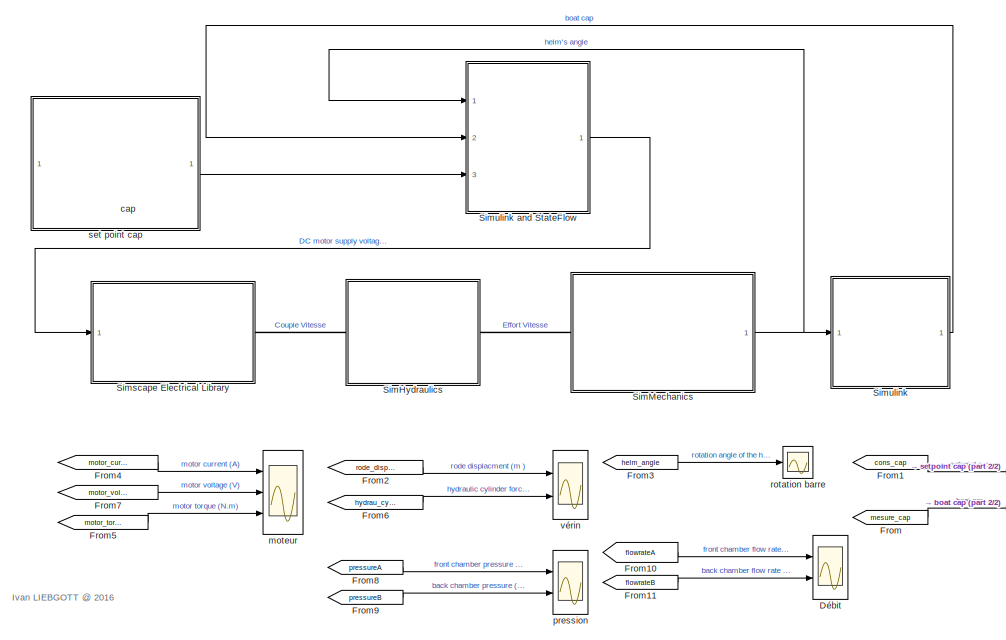
[diagram: root canvas - part 1/2, left side, full height]
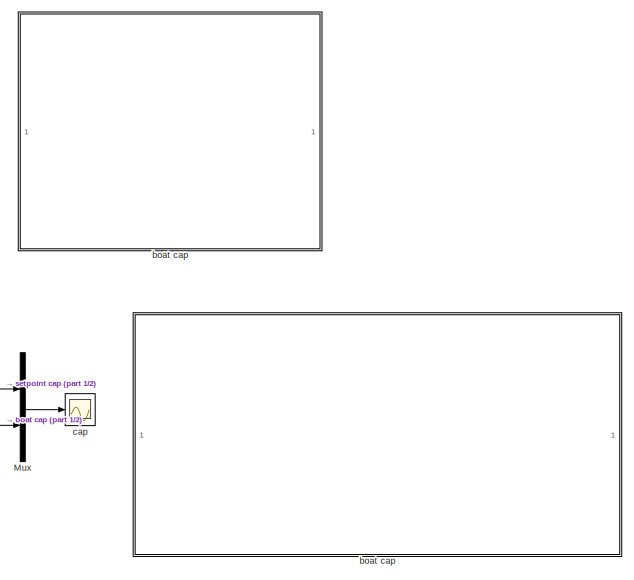
[diagram: root canvas - part 2/2, right side, full height]
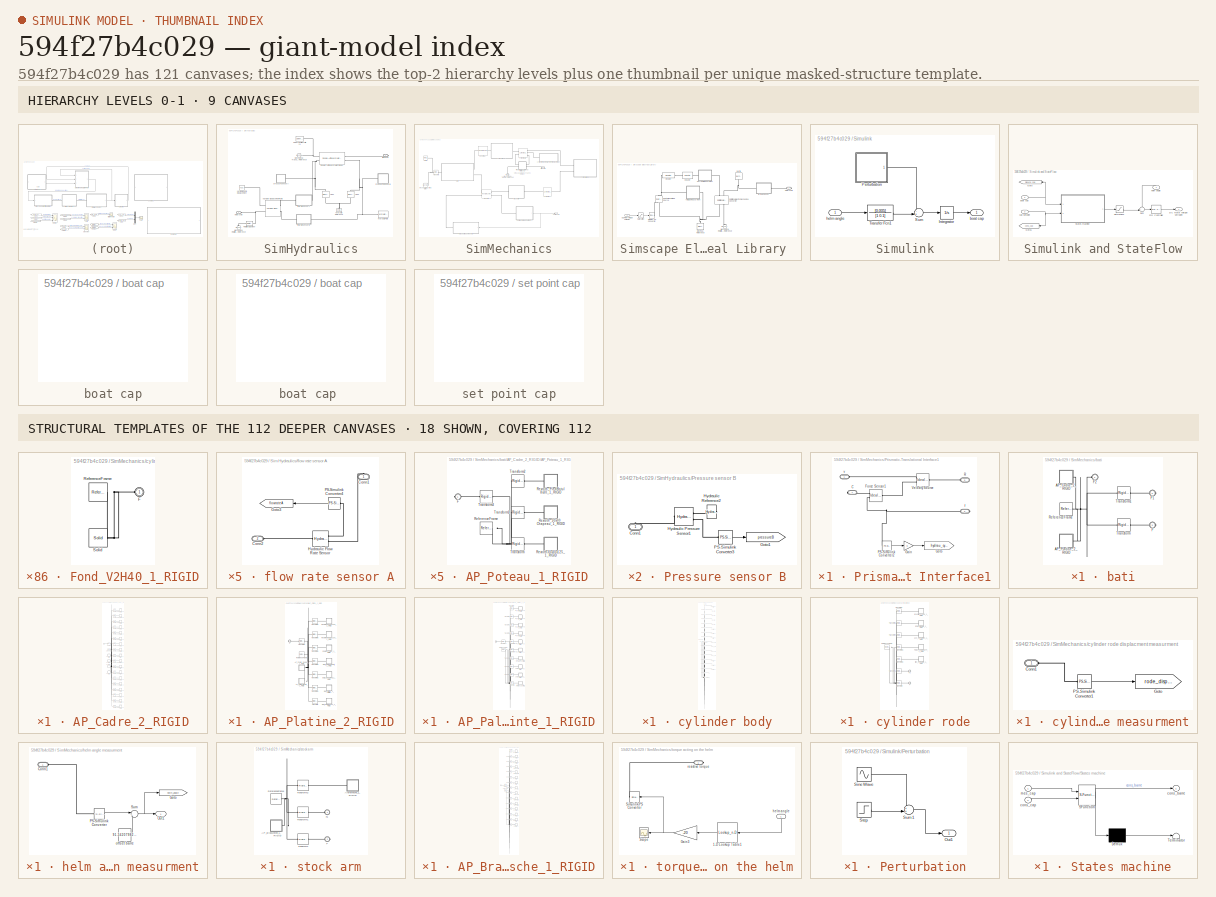
[diagram: thumbnail index - top-2 hierarchy levels (9 canvases) + 18 structural-template representatives of the remaining 112 canvases]
MODEL slx_594f27b4c029
KIND model
CONFIG AbsTol = auto
CONFIG FixedStep = auto
CONFIG MaxStep = auto
CONFIG MinStep = auto
CONFIG RelTol = 1e-3
CONFIG SampleTimeConstraint = Unconstrained
CONFIG Solver = ode23t
CONFIG SolverMode = Auto
CONFIG SolverName = ode23t
CONFIG StartTime = 0.0
CONFIG StopTime = 1500
BLOCK [Scope]  moteur
  NumInputPorts = 3
  Ports = [3]
  ScopeSpecificationString = Simulink.scopes.TimeScopeBlockCfg('CurrentConfiguration', extmgr.ConfigurationSet(extmgr.Configuration('Core','General UI',true,'FigureColor',[0.501960784313725 0.501960784313725 0.501960784313725]),extmgr.Configuration('Core','Source UI',true),extmgr.Configuration('Sources','WiredSimulink',true,'DataLoggingVariableName','ScopeData2','DataLoggingSaveFormat','StructureWithTime','DataLoggingDecimati...<+5316ch>
BLOCK [Scope] Débit
  NumInputPorts = 2
  Ports = [2]
  ScopeSpecificationString = Simulink.scopes.TimeScopeBlockCfg('CurrentConfiguration', extmgr.ConfigurationSet(extmgr.Configuration('Core','General UI',true,'FigureColor',[0.501960784313725 0.501960784313725 0.501960784313725]),extmgr.Configuration('Core','Source UI',true),extmgr.Configuration('Sources','WiredSimulink',true,'DataLoggingVariableName','ScopeData6','DataLoggingSaveFormat','StructureWithTime','DataLoggingDecimati...<+4034ch>
BLOCK [From] From
  GotoTag = mesure_cap
  TagVisibility = global
BLOCK [From] From1
  GotoTag = cons_cap
  TagVisibility = global
BLOCK [From] From10
  GotoTag = flowrateA
  TagVisibility = global
BLOCK [From] From11
  GotoTag = flowrateB
  TagVisibility = global
BLOCK [From] From2
  GotoTag = rode_displacment
  TagVisibility = global
BLOCK [From] From3
  GotoTag = helm_angle
  TagVisibility = global
BLOCK [From] From4
  GotoTag = motor_current
  TagVisibility = global
BLOCK [From] From5
  GotoTag = motor_torque
  TagVisibility = global
BLOCK [From] From6
  GotoTag = hydrau_cyl_force
  TagVisibility = global
BLOCK [From] From7
  GotoTag = motor_voltage
  TagVisibility = global
BLOCK [From] From8
  GotoTag = pressureA
  TagVisibility = global
BLOCK [From] From9
  GotoTag = pressureB
  TagVisibility = global
BLOCK [Mux] Mux
  DisplayOption = bar
  Inputs = 2
  Ports = [2, 1]
BLOCK [SubSystem] SimHydraulics
  Ports = [0, 0, 0, 0, 0, 1, 1]
  RequestExecContextInheritance = off
  Variant = off
BLOCK [Reference] SimHydraulics/ LDP1  REF=sh_lib/Valves/Pressure Control
Valves/Pressure Relief
Valve
  Ports = [0, 0, 0, 0, 0, 1, 1]
  SourceBlock = sh_lib/Valves/Pressure Control\nValves/Pressure Relief\nValve
  SourceType = Pressure Relief\nValve
BLOCK [Reference] SimHydraulics/Double-Acting Hydraulic Cylinder  REF=sh_lib/Hydraulic Cylinders/Double-Acting
Hydraulic Cylinder
  Ports = [0, 0, 0, 0, 0, 2, 2]
  SourceBlock = sh_lib/Hydraulic Cylinders/Double-Acting\nHydraulic Cylinder
  SourceType = Double-Acting\nHydraulic Cylinder
BLOCK [Reference] SimHydraulics/Hydraulic Fluid  REF=sh_lib/Hydraulic Utilities/Hydraulic Fluid
  Ports = [0, 0, 0, 0, 0, 0, 1]
  SourceBlock = sh_lib/Hydraulic Utilities/Hydraulic Fluid
  SourceType = Hydraulic Fluid
BLOCK [Reference] SimHydraulics/Hydraulic Reference  REF=fl_lib/Hydraulic/Hydraulic Elements/Hydraulic Reference
  Ports = [0, 0, 0, 0, 0, 1]
  SourceBlock = fl_lib/Hydraulic/Hydraulic Elements/Hydraulic Reference
  SourceType = Hydraulic Reference
BLOCK [Reference] SimHydraulics/LDP2  REF=sh_lib/Valves/Pressure Control
Valves/Pressure Relief
Valve
  Ports = [0, 0, 0, 0, 0, 1, 1]
  SourceBlock = sh_lib/Valves/Pressure Control\nValves/Pressure Relief\nValve
  SourceType = Pressure Relief\nValve
BLOCK [Reference] SimHydraulics/Mechanical Rotational Reference  REF=fl_lib/Mechanical/Rotational Elements/Mechanical
Rotational Reference
  Ports = [0, 0, 0, 0, 0, 1]
  SourceBlock = fl_lib/Mechanical/Rotational Elements/Mechanical\nRotational Reference
  SourceType = Mechanical\nRotational Reference
BLOCK [Reference] SimHydraulics/Mechanical Translational Reference  REF=fl_lib/Mechanical/Translational
Elements/Mechanical
Translational
Reference
  Ports = [0, 0, 0, 0, 0, 1]
  SourceBlock = fl_lib/Mechanical/Translational\nElements/Mechanical\nTranslational\nReference
  SourceType = Mechanical\nTranslational\nReference
BLOCK [SubSystem] SimHydraulics/Pressure sensor B
  Ports = [0, 0, 0, 0, 0, 1]
  RequestExecContextInheritance = off
  Variant = off
BLOCK [PMIOPort] SimHydraulics/Pressure sensor B/Conn1
  Port = 1
  Side = Left
BLOCK [Goto] SimHydraulics/Pressure sensor B/Goto1
  GotoTag = pressureB
  TagVisibility = global
BLOCK [Reference] SimHydraulics/Pressure sensor B/Hydraulic Pressure Sensor1  REF=fl_lib/Hydraulic/Hydraulic Sensors/Hydraulic Pressure
Sensor
  Ports = [0, 0, 0, 0, 0, 1, 2]
  SourceBlock = fl_lib/Hydraulic/Hydraulic Sensors/Hydraulic Pressure\nSensor
  SourceType = Hydraulic Pressure\nSensor
BLOCK [Reference] SimHydraulics/Pressure sensor B/Hydraulic Reference2  REF=fl_lib/Hydraulic/Hydraulic Elements/Hydraulic Reference
  Ports = [0, 0, 0, 0, 0, 1]
  SourceBlock = fl_lib/Hydraulic/Hydraulic Elements/Hydraulic Reference
  SourceType = Hydraulic Reference
BLOCK [Reference] SimHydraulics/Pressure sensor B/PS-Simulink Converter3  REF=nesl_utility/PS-Simulink
Converter
  Ports = [0, 1, 0, 0, 0, 1]
  SourceBlock = nesl_utility/PS-Simulink\nConverter
  SourceType = PS-Simulink\nConverter
BLOCK [Reference] SimHydraulics/Rotational Damper  REF=fl_lib/Mechanical/Rotational Elements/Rotational Damper
  Ports = [0, 0, 0, 0, 0, 1, 1]
  SourceBlock = fl_lib/Mechanical/Rotational Elements/Rotational Damper
  SourceType = Rotational Damper
BLOCK [Reference] SimHydraulics/Solver Configuration1  REF=nesl_utility/Solver
Configuration
  Ports = [0, 0, 0, 0, 0, 0, 1]
  SourceBlock = nesl_utility/Solver\nConfiguration
  SourceType = Solver\nConfiguration
BLOCK [Reference] SimHydraulics/Variable-Displacement Pump  REF=sh_lib/Pumps and Motors/Variable-Displacement
Pump
  Ports = [0, 0, 0, 0, 0, 2, 2]
  SourceBlock = sh_lib/Pumps and Motors/Variable-Displacement\nPump
  SourceType = Variable-Displacement\nPump
BLOCK [SubSystem] SimHydraulics/flow rate sensor A
  Ports = [0, 0, 0, 0, 0, 1, 1]
  RequestExecContextInheritance = off
  Variant = off
BLOCK [PMIOPort] SimHydraulics/flow rate sensor A/Conn1
  Port = 1
  Side = Right
BLOCK [PMIOPort] SimHydraulics/flow rate sensor A/Conn2
  Port = 2
  Side = Left
BLOCK [Goto] SimHydraulics/flow rate sensor A/Goto3
  GotoTag = flowrateA
  TagVisibility = global
BLOCK [Reference] SimHydraulics/flow rate sensor A/Hydraulic Flow Rate Sensor  REF=fl_lib/Hydraulic/Hydraulic Sensors/Hydraulic Flow Rate
Sensor
  Ports = [0, 0, 0, 0, 0, 1, 2]
  SourceBlock = fl_lib/Hydraulic/Hydraulic Sensors/Hydraulic Flow Rate\nSensor
  SourceType = Hydraulic Flow Rate\nSensor
BLOCK [Reference] SimHydraulics/flow rate sensor A/PS-Simulink Converter4  REF=nesl_utility/PS-Simulink
Converter
  Ports = [0, 1, 0, 0, 0, 1]
  SourceBlock = nesl_utility/PS-Simulink\nConverter
  SourceType = PS-Simulink\nConverter
BLOCK [SubSystem] SimHydraulics/flow rate sensor B
  Ports = [0, 0, 0, 0, 0, 1, 1]
  RequestExecContextInheritance = off
  Variant = off
BLOCK [PMIOPort] SimHydraulics/flow rate sensor B/Conn1
  Port = 1
  Side = Right
BLOCK [PMIOPort] SimHydraulics/flow rate sensor B/Conn2
  Port = 2
  Side = Left
BLOCK [Goto] SimHydraulics/flow rate sensor B/Goto2
  GotoTag = flowrateB
  TagVisibility = global
BLOCK [Reference] SimHydraulics/flow rate sensor B/Hydraulic Flow Rate Sensor1  REF=fl_lib/Hydraulic/Hydraulic Sensors/Hydraulic Flow Rate
Sensor
  Ports = [0, 0, 0, 0, 0, 1, 2]
  SourceBlock = fl_lib/Hydraulic/Hydraulic Sensors/Hydraulic Flow Rate\nSensor
  SourceType = Hydraulic Flow Rate\nSensor
BLOCK [Reference] SimHydraulics/flow rate sensor B/PS-Simulink Converter5  REF=nesl_utility/PS-Simulink
Converter
  Ports = [0, 1, 0, 0, 0, 1]
  SourceBlock = nesl_utility/PS-Simulink\nConverter
  SourceType = PS-Simulink\nConverter
BLOCK [PMIOPort] SimHydraulics/motor shaft
  Port = 1
  Side = Left
BLOCK [SubSystem] SimHydraulics/pressure sensor A
  Ports = [0, 0, 0, 0, 0, 0, 1]
  RequestExecContextInheritance = off
  Variant = off
BLOCK [PMIOPort] SimHydraulics/pressure sensor A/Conn1
  Port = 1
  Side = Right
BLOCK [Goto] SimHydraulics/pressure sensor A/Goto
  GotoTag = pressureA
  TagVisibility = global
BLOCK [Reference] SimHydraulics/pressure sensor A/Hydraulic Pressure Sensor  REF=fl_lib/Hydraulic/Hydraulic Sensors/Hydraulic Pressure
Sensor
  Ports = [0, 0, 0, 0, 0, 1, 2]
  SourceBlock = fl_lib/Hydraulic/Hydraulic Sensors/Hydraulic Pressure\nSensor
  SourceType = Hydraulic Pressure\nSensor
BLOCK [Reference] SimHydraulics/pressure sensor A/Hydraulic Reference1  REF=fl_lib/Hydraulic/Hydraulic Elements/Hydraulic Reference
  Ports = [0, 0, 0, 0, 0, 1]
  SourceBlock = fl_lib/Hydraulic/Hydraulic Elements/Hydraulic Reference
  SourceType = Hydraulic Reference
BLOCK [Reference] SimHydraulics/pressure sensor A/PS-Simulink Converter2  REF=nesl_utility/PS-Simulink
Converter
  Ports = [0, 1, 0, 0, 0, 1]
  SourceBlock = nesl_utility/PS-Simulink\nConverter
  SourceType = PS-Simulink\nConverter
BLOCK [PMIOPort] SimHydraulics/tige vérin
  Port = 2
  Side = Right
BLOCK [Reference] SimHydraulics/variable pump displacement  REF=fl_lib/Physical Signals/Sources/PS Constant
  Ports = [0, 0, 0, 0, 0, 0, 1]
  SourceBlock = fl_lib/Physical Signals/Sources/PS Constant
  SourceType = PS Constant
BLOCK [SubSystem] SimMechanics
  Ports = [0, 1, 0, 0, 0, 1]
  RequestExecContextInheritance = off
  Variant = off
BLOCK [Reference] SimMechanics/Mechanical Translational Reference2  REF=fl_lib/Mechanical/Translational
Elements/Mechanical
Translational
Reference
  Ports = [0, 0, 0, 0, 0, 1]
  SourceBlock = fl_lib/Mechanical/Translational\nElements/Mechanical\nTranslational\nReference
  SourceType = Mechanical\nTranslational\nReference
BLOCK [Reference] SimMechanics/MechanismConfiguration  REF=sm_lib/Utilities/Mechanism
Configuration
  Ports = [0, 0, 0, 0, 0, 0, 1]
  SourceBlock = sm_lib/Utilities/Mechanism\nConfiguration
  SourceType = Mechanism\nConfiguration
BLOCK [SubSystem] SimMechanics/Prismatic-Translational Interface1
  Ports = [0, 0, 0, 0, 0, 2, 2]
  RequestExecContextInheritance = off
  Variant = off
BLOCK [PMIOPort] SimMechanics/Prismatic-Translational Interface1/C
  Port = 4
  Side = Right
BLOCK [Reference] SimMechanics/Prismatic-Translational Interface1/Force Sensor1  REF=fl_lib/Mechanical/Mechanical Sensors/Ideal Force Sensor
  Ports = [0, 0, 0, 0, 0, 1, 2]
  SourceBlock = fl_lib/Mechanical/Mechanical Sensors/Ideal Force Sensor
  SourceType = Ideal Force Sensor
BLOCK [Gain] SimMechanics/Prismatic-Translational Interface1/Gain
  OutDataTypeStr = Inherit: Inherit via internal rule
  ParamDataTypeStr = Inherit: Inherit via internal rule
  SaturateOnIntegerOverflow = off
BLOCK [Goto] SimMechanics/Prismatic-Translational Interface1/Goto
  GotoTag = hydrau_cyl_force
  TagVisibility = global
BLOCK [Reference] SimMechanics/Prismatic-Translational Interface1/PS-Simulink Converter2  REF=nesl_utility/PS-Simulink
Converter
  Ports = [0, 1, 0, 0, 0, 1]
  SourceBlock = nesl_utility/PS-Simulink\nConverter
  SourceType = PS-Simulink\nConverter
BLOCK [PMIOPort] SimMechanics/Prismatic-Translational Interface1/R
  Port = 3
  Side = Left
BLOCK [Reference] SimMechanics/Prismatic-Translational Interface1/Velocity Source  REF=fl_lib/Mechanical/Mechanical Sources/Ideal Translational
Velocity Source
  Ports = [0, 0, 0, 0, 0, 1, 2]
  SourceBlock = fl_lib/Mechanical/Mechanical Sources/Ideal Translational\nVelocity Source
  SourceType = Ideal Translational\nVelocity Source
BLOCK [PMIOPort] SimMechanics/Prismatic-Translational Interface1/f
  Port = 2
  Side = Right
BLOCK [PMIOPort] SimMechanics/Prismatic-Translational Interface1/v
  Port = 1
  Side = Left
BLOCK [Reference] SimMechanics/Transform  REF=sm_lib/Frames and
Transforms/Rigid
Transform
  Ports = [0, 0, 0, 0, 0, 1, 1]
  SourceBlock = sm_lib/Frames and\nTransforms/Rigid\nTransform
  SourceType = Rigid\nTransform
BLOCK [Reference] SimMechanics/World  REF=sm_lib/Frames and
Transforms/World Frame
  Ports = [0, 0, 0, 0, 0, 0, 1]
  SourceBlock = sm_lib/Frames and\nTransforms/World Frame
  SourceType = World Frame
BLOCK [SubSystem] SimMechanics/bati
  Ports = [0, 0, 0, 0, 0, 1, 2]
  RequestExecContextInheritance = off
  Variant = off
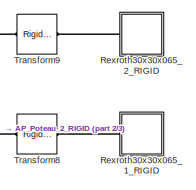
[diagram: SimMechanics/bati/AP_Cadre_2_RIGID - part 1/3, top right region]
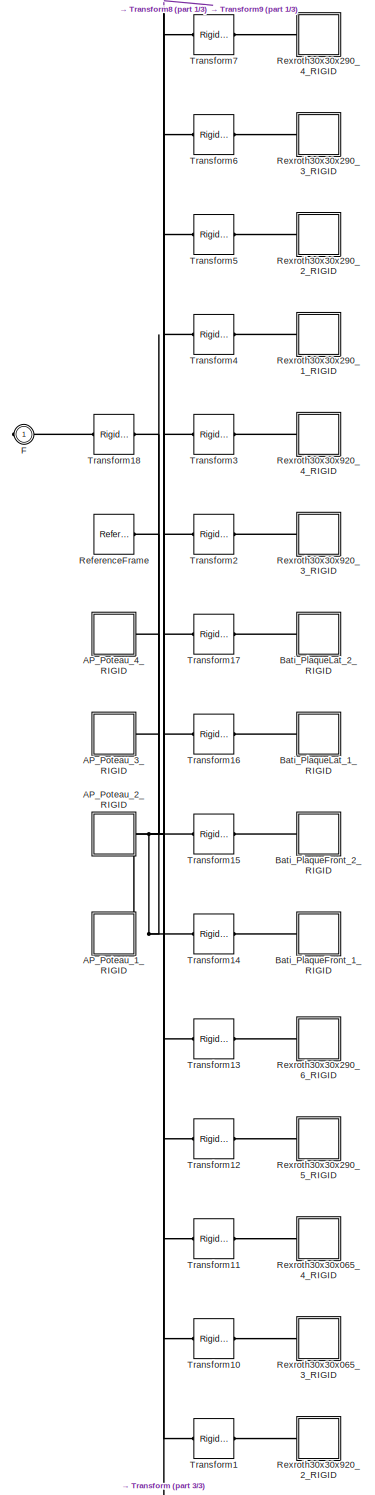
[diagram: SimMechanics/bati/AP_Cadre_2_RIGID - part 2/3, most of the canvas]
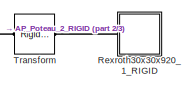
[diagram: SimMechanics/bati/AP_Cadre_2_RIGID - part 3/3, bottom right region]
BLOCK [SubSystem] SimMechanics/bati/AP_Cadre_2_RIGID
  Ports = [0, 0, 0, 0, 0, 0, 1]
  RequestExecContextInheritance = off
  Variant = off
BLOCK [SubSystem] SimMechanics/bati/AP_Cadre_2_RIGID/AP_Poteau_1_RIGID
  Ports = [0, 0, 0, 0, 0, 0, 1]
  RequestExecContextInheritance = off
  Variant = off
BLOCK [PMIOPort] SimMechanics/bati/AP_Cadre_2_RIGID/AP_Poteau_1_RIGID/F
  Port = 1
  Side = Right
BLOCK [Reference] SimMechanics/bati/AP_Cadre_2_RIGID/AP_Poteau_1_RIGID/ReferenceFrame  REF=sm_lib/Frames and
Transforms/Reference
Frame
  Ports = [0, 0, 0, 0, 0, 0, 1]
  SourceBlock = sm_lib/Frames and\nTransforms/Reference\nFrame
  SourceType = Reference\nFrame
BLOCK [SubSystem] SimMechanics/bati/AP_Cadre_2_RIGID/AP_Poteau_1_RIGID/Rexroth30x30x125_1_RIGID
  Ports = [0, 0, 0, 0, 0, 1]
  RequestExecContextInheritance = off
  Variant = off
BLOCK [PMIOPort] SimMechanics/bati/AP_Cadre_2_RIGID/AP_Poteau_1_RIGID/Rexroth30x30x125_1_RIGID/F
  Port = 1
  Side = Left
BLOCK [Reference] SimMechanics/bati/AP_Cadre_2_RIGID/AP_Poteau_1_RIGID/Rexroth30x30x125_1_RIGID/ReferenceFrame  REF=sm_lib/Frames and
Transforms/Reference
Frame
  Ports = [0, 0, 0, 0, 0, 0, 1]
  SourceBlock = sm_lib/Frames and\nTransforms/Reference\nFrame
  SourceType = Reference\nFrame
BLOCK [Reference] SimMechanics/bati/AP_Cadre_2_RIGID/AP_Poteau_1_RIGID/Rexroth30x30x125_1_RIGID/Solid  REF=sm_lib/Body Elements/Solid
  Ports = [0, 0, 0, 0, 0, 0, 1]
  SourceBlock = sm_lib/Body Elements/Solid
  SourceType = Solid
BLOCK [SubSystem] SimMechanics/bati/AP_Cadre_2_RIGID/AP_Poteau_1_RIGID/Rexroth_30x30_Chapeau_1_RIGID
  Ports = [0, 0, 0, 0, 0, 1]
  RequestExecContextInheritance = off
  Variant = off
BLOCK [PMIOPort] SimMechanics/bati/AP_Cadre_2_RIGID/AP_Poteau_1_RIGID/Rexroth_30x30_Chapeau_1_RIGID/F
  Port = 1
  Side = Left
BLOCK [Reference] SimMechanics/bati/AP_Cadre_2_RIGID/AP_Poteau_1_RIGID/Rexroth_30x30_Chapeau_1_RIGID/ReferenceFrame  REF=sm_lib/Frames and
Transforms/Reference
Frame
  Ports = [0, 0, 0, 0, 0, 0, 1]
  SourceBlock = sm_lib/Frames and\nTransforms/Reference\nFrame
  SourceType = Reference\nFrame
BLOCK [Reference] SimMechanics/bati/AP_Cadre_2_RIGID/AP_Poteau_1_RIGID/Rexroth_30x30_Chapeau_1_RIGID/Solid  REF=sm_lib/Body Elements/Solid
  Ports = [0, 0, 0, 0, 0, 0, 1]
  SourceBlock = sm_lib/Body Elements/Solid
  SourceType = Solid
BLOCK [SubSystem] SimMechanics/bati/AP_Cadre_2_RIGID/AP_Poteau_1_RIGID/Rexroth_PiedRotul8x30_1_RIGID
  Ports = [0, 0, 0, 0, 0, 1]
  RequestExecContextInheritance = off
  Variant = off
BLOCK [PMIOPort] SimMechanics/bati/AP_Cadre_2_RIGID/AP_Poteau_1_RIGID/Rexroth_PiedRotul8x30_1_RIGID/F
  Port = 1
  Side = Left
BLOCK [Reference] SimMechanics/bati/AP_Cadre_2_RIGID/AP_Poteau_1_RIGID/Rexroth_PiedRotul8x30_1_RIGID/ReferenceFrame  REF=sm_lib/Frames and
Transforms/Reference
Frame
  Ports = [0, 0, 0, 0, 0, 0, 1]
  SourceBlock = sm_lib/Frames and\nTransforms/Reference\nFrame
  SourceType = Reference\nFrame
BLOCK [Reference] SimMechanics/bati/AP_Cadre_2_RIGID/AP_Poteau_1_RIGID/Rexroth_PiedRotul8x30_1_RIGID/Solid  REF=sm_lib/Body Elements/Solid
  Ports = [0, 0, 0, 0, 0, 0, 1]
  SourceBlock = sm_lib/Body Elements/Solid
  SourceType = Solid
BLOCK [Reference] SimMechanics/bati/AP_Cadre_2_RIGID/AP_Poteau_1_RIGID/Transform  REF=sm_lib/Frames and
Transforms/Rigid
Transform
  Ports = [0, 0, 0, 0, 0, 1, 1]
  SourceBlock = sm_lib/Frames and\nTransforms/Rigid\nTransform
  SourceType = Rigid\nTransform
BLOCK [Reference] SimMechanics/bati/AP_Cadre_2_RIGID/AP_Poteau_1_RIGID/Transform1  REF=sm_lib/Frames and
Transforms/Rigid
Transform
  Ports = [0, 0, 0, 0, 0, 1, 1]
  SourceBlock = sm_lib/Frames and\nTransforms/Rigid\nTransform
  SourceType = Rigid\nTransform
BLOCK [Reference] SimMechanics/bati/AP_Cadre_2_RIGID/AP_Poteau_1_RIGID/Transform2  REF=sm_lib/Frames and
Transforms/Rigid
Transform
  Ports = [0, 0, 0, 0, 0, 1, 1]
  SourceBlock = sm_lib/Frames and\nTransforms/Rigid\nTransform
  SourceType = Rigid\nTransform
BLOCK [Reference] SimMechanics/bati/AP_Cadre_2_RIGID/AP_Poteau_1_RIGID/Transform3  REF=sm_lib/Frames and
Transforms/Rigid
Transform
  Ports = [0, 0, 0, 0, 0, 1, 1]
  SourceBlock = sm_lib/Frames and\nTransforms/Rigid\nTransform
  SourceType = Rigid\nTransform
BLOCK [SubSystem] SimMechanics/bati/AP_Cadre_2_RIGID/AP_Poteau_2_RIGID
  Ports = [0, 0, 0, 0, 0, 0, 1]
  RequestExecContextInheritance = off
  Variant = off
BLOCK [PMIOPort] SimMechanics/bati/AP_Cadre_2_RIGID/AP_Poteau_2_RIGID/F
  Port = 1
  Side = Right
BLOCK [Reference] SimMechanics/bati/AP_Cadre_2_RIGID/AP_Poteau_2_RIGID/ReferenceFrame  REF=sm_lib/Frames and
Transforms/Reference
Frame
  Ports = [0, 0, 0, 0, 0, 0, 1]
  SourceBlock = sm_lib/Frames and\nTransforms/Reference\nFrame
  SourceType = Reference\nFrame
BLOCK [SubSystem] SimMechanics/bati/AP_Cadre_2_RIGID/AP_Poteau_2_RIGID/Rexroth30x30x125_1_RIGID
  Ports = [0, 0, 0, 0, 0, 1]
  RequestExecContextInheritance = off
  Variant = off
BLOCK [PMIOPort] SimMechanics/bati/AP_Cadre_2_RIGID/AP_Poteau_2_RIGID/Rexroth30x30x125_1_RIGID/F
  Port = 1
  Side = Left
BLOCK [Reference] SimMechanics/bati/AP_Cadre_2_RIGID/AP_Poteau_2_RIGID/Rexroth30x30x125_1_RIGID/ReferenceFrame  REF=sm_lib/Frames and
Transforms/Reference
Frame
  Ports = [0, 0, 0, 0, 0, 0, 1]
  SourceBlock = sm_lib/Frames and\nTransforms/Reference\nFrame
  SourceType = Reference\nFrame
BLOCK [Reference] SimMechanics/bati/AP_Cadre_2_RIGID/AP_Poteau_2_RIGID/Rexroth30x30x125_1_RIGID/Solid  REF=sm_lib/Body Elements/Solid
  Ports = [0, 0, 0, 0, 0, 0, 1]
  SourceBlock = sm_lib/Body Elements/Solid
  SourceType = Solid
BLOCK [SubSystem] SimMechanics/bati/AP_Cadre_2_RIGID/AP_Poteau_2_RIGID/Rexroth_30x30_Chapeau_1_RIGID
  Ports = [0, 0, 0, 0, 0, 1]
  RequestExecContextInheritance = off
  Variant = off
BLOCK [PMIOPort] SimMechanics/bati/AP_Cadre_2_RIGID/AP_Poteau_2_RIGID/Rexroth_30x30_Chapeau_1_RIGID/F
  Port = 1
  Side = Left
BLOCK [Reference] SimMechanics/bati/AP_Cadre_2_RIGID/AP_Poteau_2_RIGID/Rexroth_30x30_Chapeau_1_RIGID/ReferenceFrame  REF=sm_lib/Frames and
Transforms/Reference
Frame
  Ports = [0, 0, 0, 0, 0, 0, 1]
  SourceBlock = sm_lib/Frames and\nTransforms/Reference\nFrame
  SourceType = Reference\nFrame
BLOCK [Reference] SimMechanics/bati/AP_Cadre_2_RIGID/AP_Poteau_2_RIGID/Rexroth_30x30_Chapeau_1_RIGID/Solid  REF=sm_lib/Body Elements/Solid
  Ports = [0, 0, 0, 0, 0, 0, 1]
  SourceBlock = sm_lib/Body Elements/Solid
  SourceType = Solid
BLOCK [SubSystem] SimMechanics/bati/AP_Cadre_2_RIGID/AP_Poteau_2_RIGID/Rexroth_PiedRotul8x30_1_RIGID
  Ports = [0, 0, 0, 0, 0, 1]
  RequestExecContextInheritance = off
  Variant = off
BLOCK [PMIOPort] SimMechanics/bati/AP_Cadre_2_RIGID/AP_Poteau_2_RIGID/Rexroth_PiedRotul8x30_1_RIGID/F
  Port = 1
  Side = Left
BLOCK [Reference] SimMechanics/bati/AP_Cadre_2_RIGID/AP_Poteau_2_RIGID/Rexroth_PiedRotul8x30_1_RIGID/ReferenceFrame  REF=sm_lib/Frames and
Transforms/Reference
Frame
  Ports = [0, 0, 0, 0, 0, 0, 1]
  SourceBlock = sm_lib/Frames and\nTransforms/Reference\nFrame
  SourceType = Reference\nFrame
BLOCK [Reference] SimMechanics/bati/AP_Cadre_2_RIGID/AP_Poteau_2_RIGID/Rexroth_PiedRotul8x30_1_RIGID/Solid  REF=sm_lib/Body Elements/Solid
  Ports = [0, 0, 0, 0, 0, 0, 1]
  SourceBlock = sm_lib/Body Elements/Solid
  SourceType = Solid
BLOCK [Reference] SimMechanics/bati/AP_Cadre_2_RIGID/AP_Poteau_2_RIGID/Transform  REF=sm_lib/Frames and
Transforms/Rigid
Transform
  Ports = [0, 0, 0, 0, 0, 1, 1]
  SourceBlock = sm_lib/Frames and\nTransforms/Rigid\nTransform
  SourceType = Rigid\nTransform
BLOCK [Reference] SimMechanics/bati/AP_Cadre_2_RIGID/AP_Poteau_2_RIGID/Transform1  REF=sm_lib/Frames and
Transforms/Rigid
Transform
  Ports = [0, 0, 0, 0, 0, 1, 1]
  SourceBlock = sm_lib/Frames and\nTransforms/Rigid\nTransform
  SourceType = Rigid\nTransform
BLOCK [Reference] SimMechanics/bati/AP_Cadre_2_RIGID/AP_Poteau_2_RIGID/Transform2  REF=sm_lib/Frames and
Transforms/Rigid
Transform
  Ports = [0, 0, 0, 0, 0, 1, 1]
  SourceBlock = sm_lib/Frames and\nTransforms/Rigid\nTransform
  SourceType = Rigid\nTransform
BLOCK [Reference] SimMechanics/bati/AP_Cadre_2_RIGID/AP_Poteau_2_RIGID/Transform3  REF=sm_lib/Frames and
Transforms/Rigid
Transform
  Ports = [0, 0, 0, 0, 0, 1, 1]
  SourceBlock = sm_lib/Frames and\nTransforms/Rigid\nTransform
  SourceType = Rigid\nTransform
BLOCK [SubSystem] SimMechanics/bati/AP_Cadre_2_RIGID/AP_Poteau_3_RIGID
  Ports = [0, 0, 0, 0, 0, 0, 1]
  RequestExecContextInheritance = off
  Variant = off
BLOCK [PMIOPort] SimMechanics/bati/AP_Cadre_2_RIGID/AP_Poteau_3_RIGID/F
  Port = 1
  Side = Right
BLOCK [Reference] SimMechanics/bati/AP_Cadre_2_RIGID/AP_Poteau_3_RIGID/ReferenceFrame  REF=sm_lib/Frames and
Transforms/Reference
Frame
  Ports = [0, 0, 0, 0, 0, 0, 1]
  SourceBlock = sm_lib/Frames and\nTransforms/Reference\nFrame
  SourceType = Reference\nFrame
BLOCK [SubSystem] SimMechanics/bati/AP_Cadre_2_RIGID/AP_Poteau_3_RIGID/Rexroth30x30x125_1_RIGID
  Ports = [0, 0, 0, 0, 0, 1]
  RequestExecContextInheritance = off
  Variant = off
BLOCK [PMIOPort] SimMechanics/bati/AP_Cadre_2_RIGID/AP_Poteau_3_RIGID/Rexroth30x30x125_1_RIGID/F
  Port = 1
  Side = Left
BLOCK [Reference] SimMechanics/bati/AP_Cadre_2_RIGID/AP_Poteau_3_RIGID/Rexroth30x30x125_1_RIGID/ReferenceFrame  REF=sm_lib/Frames and
Transforms/Reference
Frame
  Ports = [0, 0, 0, 0, 0, 0, 1]
  SourceBlock = sm_lib/Frames and\nTransforms/Reference\nFrame
  SourceType = Reference\nFrame
BLOCK [Reference] SimMechanics/bati/AP_Cadre_2_RIGID/AP_Poteau_3_RIGID/Rexroth30x30x125_1_RIGID/Solid  REF=sm_lib/Body Elements/Solid
  Ports = [0, 0, 0, 0, 0, 0, 1]
  SourceBlock = sm_lib/Body Elements/Solid
  SourceType = Solid
BLOCK [SubSystem] SimMechanics/bati/AP_Cadre_2_RIGID/AP_Poteau_3_RIGID/Rexroth_30x30_Chapeau_1_RIGID
  Ports = [0, 0, 0, 0, 0, 1]
  RequestExecContextInheritance = off
  Variant = off
BLOCK [PMIOPort] SimMechanics/bati/AP_Cadre_2_RIGID/AP_Poteau_3_RIGID/Rexroth_30x30_Chapeau_1_RIGID/F
  Port = 1
  Side = Left
BLOCK [Reference] SimMechanics/bati/AP_Cadre_2_RIGID/AP_Poteau_3_RIGID/Rexroth_30x30_Chapeau_1_RIGID/ReferenceFrame  REF=sm_lib/Frames and
Transforms/Reference
Frame
  Ports = [0, 0, 0, 0, 0, 0, 1]
  SourceBlock = sm_lib/Frames and\nTransforms/Reference\nFrame
  SourceType = Reference\nFrame
BLOCK [Reference] SimMechanics/bati/AP_Cadre_2_RIGID/AP_Poteau_3_RIGID/Rexroth_30x30_Chapeau_1_RIGID/Solid  REF=sm_lib/Body Elements/Solid
  Ports = [0, 0, 0, 0, 0, 0, 1]
  SourceBlock = sm_lib/Body Elements/Solid
  SourceType = Solid
BLOCK [SubSystem] SimMechanics/bati/AP_Cadre_2_RIGID/AP_Poteau_3_RIGID/Rexroth_PiedRotul8x30_1_RIGID
  Ports = [0, 0, 0, 0, 0, 1]
  RequestExecContextInheritance = off
  Variant = off
BLOCK [PMIOPort] SimMechanics/bati/AP_Cadre_2_RIGID/AP_Poteau_3_RIGID/Rexroth_PiedRotul8x30_1_RIGID/F
  Port = 1
  Side = Left
BLOCK [Reference] SimMechanics/bati/AP_Cadre_2_RIGID/AP_Poteau_3_RIGID/Rexroth_PiedRotul8x30_1_RIGID/ReferenceFrame  REF=sm_lib/Frames and
Transforms/Reference
Frame
  Ports = [0, 0, 0, 0, 0, 0, 1]
  SourceBlock = sm_lib/Frames and\nTransforms/Reference\nFrame
  SourceType = Reference\nFrame
BLOCK [Reference] SimMechanics/bati/AP_Cadre_2_RIGID/AP_Poteau_3_RIGID/Rexroth_PiedRotul8x30_1_RIGID/Solid  REF=sm_lib/Body Elements/Solid
  Ports = [0, 0, 0, 0, 0, 0, 1]
  SourceBlock = sm_lib/Body Elements/Solid
  SourceType = Solid
BLOCK [Reference] SimMechanics/bati/AP_Cadre_2_RIGID/AP_Poteau_3_RIGID/Transform  REF=sm_lib/Frames and
Transforms/Rigid
Transform
  Ports = [0, 0, 0, 0, 0, 1, 1]
  SourceBlock = sm_lib/Frames and\nTransforms/Rigid\nTransform
  SourceType = Rigid\nTransform
BLOCK [Reference] SimMechanics/bati/AP_Cadre_2_RIGID/AP_Poteau_3_RIGID/Transform1  REF=sm_lib/Frames and
Transforms/Rigid
Transform
  Ports = [0, 0, 0, 0, 0, 1, 1]
  SourceBlock = sm_lib/Frames and\nTransforms/Rigid\nTransform
  SourceType = Rigid\nTransform
BLOCK [Reference] SimMechanics/bati/AP_Cadre_2_RIGID/AP_Poteau_3_RIGID/Transform2  REF=sm_lib/Frames and
Transforms/Rigid
Transform
  Ports = [0, 0, 0, 0, 0, 1, 1]
  SourceBlock = sm_lib/Frames and\nTransforms/Rigid\nTransform
  SourceType = Rigid\nTransform
BLOCK [Reference] SimMechanics/bati/AP_Cadre_2_RIGID/AP_Poteau_3_RIGID/Transform3  REF=sm_lib/Frames and
Transforms/Rigid
Transform
  Ports = [0, 0, 0, 0, 0, 1, 1]
  SourceBlock = sm_lib/Frames and\nTransforms/Rigid\nTransform
  SourceType = Rigid\nTransform
BLOCK [SubSystem] SimMechanics/bati/AP_Cadre_2_RIGID/AP_Poteau_4_RIGID
  Ports = [0, 0, 0, 0, 0, 0, 1]
  RequestExecContextInheritance = off
  Variant = off
BLOCK [PMIOPort] SimMechanics/bati/AP_Cadre_2_RIGID/AP_Poteau_4_RIGID/F
  Port = 1
  Side = Right
BLOCK [Reference] SimMechanics/bati/AP_Cadre_2_RIGID/AP_Poteau_4_RIGID/ReferenceFrame  REF=sm_lib/Frames and
Transforms/Reference
Frame
  Ports = [0, 0, 0, 0, 0, 0, 1]
  SourceBlock = sm_lib/Frames and\nTransforms/Reference\nFrame
  SourceType = Reference\nFrame
BLOCK [SubSystem] SimMechanics/bati/AP_Cadre_2_RIGID/AP_Poteau_4_RIGID/Rexroth30x30x125_1_RIGID
  Ports = [0, 0, 0, 0, 0, 1]
  RequestExecContextInheritance = off
  Variant = off
BLOCK [PMIOPort] SimMechanics/bati/AP_Cadre_2_RIGID/AP_Poteau_4_RIGID/Rexroth30x30x125_1_RIGID/F
  Port = 1
  Side = Left
BLOCK [Reference] SimMechanics/bati/AP_Cadre_2_RIGID/AP_Poteau_4_RIGID/Rexroth30x30x125_1_RIGID/ReferenceFrame  REF=sm_lib/Frames and
Transforms/Reference
Frame
  Ports = [0, 0, 0, 0, 0, 0, 1]
  SourceBlock = sm_lib/Frames and\nTransforms/Reference\nFrame
  SourceType = Reference\nFrame
BLOCK [Reference] SimMechanics/bati/AP_Cadre_2_RIGID/AP_Poteau_4_RIGID/Rexroth30x30x125_1_RIGID/Solid  REF=sm_lib/Body Elements/Solid
  Ports = [0, 0, 0, 0, 0, 0, 1]
  SourceBlock = sm_lib/Body Elements/Solid
  SourceType = Solid
BLOCK [SubSystem] SimMechanics/bati/AP_Cadre_2_RIGID/AP_Poteau_4_RIGID/Rexroth_30x30_Chapeau_1_RIGID
  Ports = [0, 0, 0, 0, 0, 1]
  RequestExecContextInheritance = off
  Variant = off
BLOCK [PMIOPort] SimMechanics/bati/AP_Cadre_2_RIGID/AP_Poteau_4_RIGID/Rexroth_30x30_Chapeau_1_RIGID/F
  Port = 1
  Side = Left
BLOCK [Reference] SimMechanics/bati/AP_Cadre_2_RIGID/AP_Poteau_4_RIGID/Rexroth_30x30_Chapeau_1_RIGID/ReferenceFrame  REF=sm_lib/Frames and
Transforms/Reference
Frame
  Ports = [0, 0, 0, 0, 0, 0, 1]
  SourceBlock = sm_lib/Frames and\nTransforms/Reference\nFrame
  SourceType = Reference\nFrame
BLOCK [Reference] SimMechanics/bati/AP_Cadre_2_RIGID/AP_Poteau_4_RIGID/Rexroth_30x30_Chapeau_1_RIGID/Solid  REF=sm_lib/Body Elements/Solid
  Ports = [0, 0, 0, 0, 0, 0, 1]
  SourceBlock = sm_lib/Body Elements/Solid
  SourceType = Solid
BLOCK [SubSystem] SimMechanics/bati/AP_Cadre_2_RIGID/AP_Poteau_4_RIGID/Rexroth_PiedRotul8x30_1_RIGID
  Ports = [0, 0, 0, 0, 0, 1]
  RequestExecContextInheritance = off
  Variant = off
BLOCK [PMIOPort] SimMechanics/bati/AP_Cadre_2_RIGID/AP_Poteau_4_RIGID/Rexroth_PiedRotul8x30_1_RIGID/F
  Port = 1
  Side = Left
BLOCK [Reference] SimMechanics/bati/AP_Cadre_2_RIGID/AP_Poteau_4_RIGID/Rexroth_PiedRotul8x30_1_RIGID/ReferenceFrame  REF=sm_lib/Frames and
Transforms/Reference
Frame
  Ports = [0, 0, 0, 0, 0, 0, 1]
  SourceBlock = sm_lib/Frames and\nTransforms/Reference\nFrame
  SourceType = Reference\nFrame
BLOCK [Reference] SimMechanics/bati/AP_Cadre_2_RIGID/AP_Poteau_4_RIGID/Rexroth_PiedRotul8x30_1_RIGID/Solid  REF=sm_lib/Body Elements/Solid
  Ports = [0, 0, 0, 0, 0, 0, 1]
  SourceBlock = sm_lib/Body Elements/Solid
  SourceType = Solid
BLOCK [Reference] SimMechanics/bati/AP_Cadre_2_RIGID/AP_Poteau_4_RIGID/Transform  REF=sm_lib/Frames and
Transforms/Rigid
Transform
  Ports = [0, 0, 0, 0, 0, 1, 1]
  SourceBlock = sm_lib/Frames and\nTransforms/Rigid\nTransform
  SourceType = Rigid\nTransform
BLOCK [Reference] SimMechanics/bati/AP_Cadre_2_RIGID/AP_Poteau_4_RIGID/Transform1  REF=sm_lib/Frames and
Transforms/Rigid
Transform
  Ports = [0, 0, 0, 0, 0, 1, 1]
  SourceBlock = sm_lib/Frames and\nTransforms/Rigid\nTransform
  SourceType = Rigid\nTransform
BLOCK [Reference] SimMechanics/bati/AP_Cadre_2_RIGID/AP_Poteau_4_RIGID/Transform2  REF=sm_lib/Frames and
Transforms/Rigid
Transform
  Ports = [0, 0, 0, 0, 0, 1, 1]
  SourceBlock = sm_lib/Frames and\nTransforms/Rigid\nTransform
  SourceType = Rigid\nTransform
BLOCK [Reference] SimMechanics/bati/AP_Cadre_2_RIGID/AP_Poteau_4_RIGID/Transform3  REF=sm_lib/Frames and
Transforms/Rigid
Transform
  Ports = [0, 0, 0, 0, 0, 1, 1]
  SourceBlock = sm_lib/Frames and\nTransforms/Rigid\nTransform
  SourceType = Rigid\nTransform
BLOCK [SubSystem] SimMechanics/bati/AP_Cadre_2_RIGID/Bati_PlaqueFront_1_RIGID
  Ports = [0, 0, 0, 0, 0, 1]
  RequestExecContextInheritance = off
  Variant = off
BLOCK [PMIOPort] SimMechanics/bati/AP_Cadre_2_RIGID/Bati_PlaqueFront_1_RIGID/F
  Port = 1
  Side = Left
BLOCK [Reference] SimMechanics/bati/AP_Cadre_2_RIGID/Bati_PlaqueFront_1_RIGID/ReferenceFrame  REF=sm_lib/Frames and
Transforms/Reference
Frame
  Ports = [0, 0, 0, 0, 0, 0, 1]
  SourceBlock = sm_lib/Frames and\nTransforms/Reference\nFrame
  SourceType = Reference\nFrame
BLOCK [Reference] SimMechanics/bati/AP_Cadre_2_RIGID/Bati_PlaqueFront_1_RIGID/Solid  REF=sm_lib/Body Elements/Solid
  Ports = [0, 0, 0, 0, 0, 0, 1]
  SourceBlock = sm_lib/Body Elements/Solid
  SourceType = Solid
BLOCK [SubSystem] SimMechanics/bati/AP_Cadre_2_RIGID/Bati_PlaqueFront_2_RIGID
  Ports = [0, 0, 0, 0, 0, 1]
  RequestExecContextInheritance = off
  Variant = off
BLOCK [PMIOPort] SimMechanics/bati/AP_Cadre_2_RIGID/Bati_PlaqueFront_2_RIGID/F
  Port = 1
  Side = Left
BLOCK [Reference] SimMechanics/bati/AP_Cadre_2_RIGID/Bati_PlaqueFront_2_RIGID/ReferenceFrame  REF=sm_lib/Frames and
Transforms/Reference
Frame
  Ports = [0, 0, 0, 0, 0, 0, 1]
  SourceBlock = sm_lib/Frames and\nTransforms/Reference\nFrame
  SourceType = Reference\nFrame
BLOCK [Reference] SimMechanics/bati/AP_Cadre_2_RIGID/Bati_PlaqueFront_2_RIGID/Solid  REF=sm_lib/Body Elements/Solid
  Ports = [0, 0, 0, 0, 0, 0, 1]
  SourceBlock = sm_lib/Body Elements/Solid
  SourceType = Solid
BLOCK [SubSystem] SimMechanics/bati/AP_Cadre_2_RIGID/Bati_PlaqueLat_1_RIGID
  Ports = [0, 0, 0, 0, 0, 1]
  RequestExecContextInheritance = off
  Variant = off
BLOCK [PMIOPort] SimMechanics/bati/AP_Cadre_2_RIGID/Bati_PlaqueLat_1_RIGID/F
  Port = 1
  Side = Left
BLOCK [Reference] SimMechanics/bati/AP_Cadre_2_RIGID/Bati_PlaqueLat_1_RIGID/ReferenceFrame  REF=sm_lib/Frames and
Transforms/Reference
Frame
  Ports = [0, 0, 0, 0, 0, 0, 1]
  SourceBlock = sm_lib/Frames and\nTransforms/Reference\nFrame
  SourceType = Reference\nFrame
BLOCK [Reference] SimMechanics/bati/AP_Cadre_2_RIGID/Bati_PlaqueLat_1_RIGID/Solid  REF=sm_lib/Body Elements/Solid
  Ports = [0, 0, 0, 0, 0, 0, 1]
  SourceBlock = sm_lib/Body Elements/Solid
  SourceType = Solid
BLOCK [SubSystem] SimMechanics/bati/AP_Cadre_2_RIGID/Bati_PlaqueLat_2_RIGID
  Ports = [0, 0, 0, 0, 0, 1]
  RequestExecContextInheritance = off
  Variant = off
BLOCK [PMIOPort] SimMechanics/bati/AP_Cadre_2_RIGID/Bati_PlaqueLat_2_RIGID/F
  Port = 1
  Side = Left
BLOCK [Reference] SimMechanics/bati/AP_Cadre_2_RIGID/Bati_PlaqueLat_2_RIGID/ReferenceFrame  REF=sm_lib/Frames and
Transforms/Reference
Frame
  Ports = [0, 0, 0, 0, 0, 0, 1]
  SourceBlock = sm_lib/Frames and\nTransforms/Reference\nFrame
  SourceType = Reference\nFrame
BLOCK [Reference] SimMechanics/bati/AP_Cadre_2_RIGID/Bati_PlaqueLat_2_RIGID/Solid  REF=sm_lib/Body Elements/Solid
  Ports = [0, 0, 0, 0, 0, 0, 1]
  SourceBlock = sm_lib/Body Elements/Solid
  SourceType = Solid
BLOCK [PMIOPort] SimMechanics/bati/AP_Cadre_2_RIGID/F
  Port = 1
  Side = Right
BLOCK [Reference] SimMechanics/bati/AP_Cadre_2_RIGID/ReferenceFrame  REF=sm_lib/Frames and
Transforms/Reference
Frame
  Ports = [0, 0, 0, 0, 0, 0, 1]
  SourceBlock = sm_lib/Frames and\nTransforms/Reference\nFrame
  SourceType = Reference\nFrame
BLOCK [SubSystem] SimMechanics/bati/AP_Cadre_2_RIGID/Rexroth30x30x065_1_RIGID
  Ports = [0, 0, 0, 0, 0, 1]
  RequestExecContextInheritance = off
  Variant = off
BLOCK [PMIOPort] SimMechanics/bati/AP_Cadre_2_RIGID/Rexroth30x30x065_1_RIGID/F
  Port = 1
  Side = Left
BLOCK [Reference] SimMechanics/bati/AP_Cadre_2_RIGID/Rexroth30x30x065_1_RIGID/ReferenceFrame  REF=sm_lib/Frames and
Transforms/Reference
Frame
  Ports = [0, 0, 0, 0, 0, 0, 1]
  SourceBlock = sm_lib/Frames and\nTransforms/Reference\nFrame
  SourceType = Reference\nFrame
BLOCK [Reference] SimMechanics/bati/AP_Cadre_2_RIGID/Rexroth30x30x065_1_RIGID/Solid  REF=sm_lib/Body Elements/Solid
  Ports = [0, 0, 0, 0, 0, 0, 1]
  SourceBlock = sm_lib/Body Elements/Solid
  SourceType = Solid
BLOCK [SubSystem] SimMechanics/bati/AP_Cadre_2_RIGID/Rexroth30x30x065_2_RIGID
  Ports = [0, 0, 0, 0, 0, 1]
  RequestExecContextInheritance = off
  Variant = off
BLOCK [PMIOPort] SimMechanics/bati/AP_Cadre_2_RIGID/Rexroth30x30x065_2_RIGID/F
  Port = 1
  Side = Left
BLOCK [Reference] SimMechanics/bati/AP_Cadre_2_RIGID/Rexroth30x30x065_2_RIGID/ReferenceFrame  REF=sm_lib/Frames and
Transforms/Reference
Frame
  Ports = [0, 0, 0, 0, 0, 0, 1]
  SourceBlock = sm_lib/Frames and\nTransforms/Reference\nFrame
  SourceType = Reference\nFrame
BLOCK [Reference] SimMechanics/bati/AP_Cadre_2_RIGID/Rexroth30x30x065_2_RIGID/Solid  REF=sm_lib/Body Elements/Solid
  Ports = [0, 0, 0, 0, 0, 0, 1]
  SourceBlock = sm_lib/Body Elements/Solid
  SourceType = Solid
BLOCK [SubSystem] SimMechanics/bati/AP_Cadre_2_RIGID/Rexroth30x30x065_3_RIGID
  Ports = [0, 0, 0, 0, 0, 1]
  RequestExecContextInheritance = off
  Variant = off
BLOCK [PMIOPort] SimMechanics/bati/AP_Cadre_2_RIGID/Rexroth30x30x065_3_RIGID/F
  Port = 1
  Side = Left
BLOCK [Reference] SimMechanics/bati/AP_Cadre_2_RIGID/Rexroth30x30x065_3_RIGID/ReferenceFrame  REF=sm_lib/Frames and
Transforms/Reference
Frame
  Ports = [0, 0, 0, 0, 0, 0, 1]
  SourceBlock = sm_lib/Frames and\nTransforms/Reference\nFrame
  SourceType = Reference\nFrame
BLOCK [Reference] SimMechanics/bati/AP_Cadre_2_RIGID/Rexroth30x30x065_3_RIGID/Solid  REF=sm_lib/Body Elements/Solid
  Ports = [0, 0, 0, 0, 0, 0, 1]
  SourceBlock = sm_lib/Body Elements/Solid
  SourceType = Solid
BLOCK [SubSystem] SimMechanics/bati/AP_Cadre_2_RIGID/Rexroth30x30x065_4_RIGID
  Ports = [0, 0, 0, 0, 0, 1]
  RequestExecContextInheritance = off
  Variant = off
BLOCK [PMIOPort] SimMechanics/bati/AP_Cadre_2_RIGID/Rexroth30x30x065_4_RIGID/F
  Port = 1
  Side = Left
BLOCK [Reference] SimMechanics/bati/AP_Cadre_2_RIGID/Rexroth30x30x065_4_RIGID/ReferenceFrame  REF=sm_lib/Frames and
Transforms/Reference
Frame
  Ports = [0, 0, 0, 0, 0, 0, 1]
  SourceBlock = sm_lib/Frames and\nTransforms/Reference\nFrame
  SourceType = Reference\nFrame
BLOCK [Reference] SimMechanics/bati/AP_Cadre_2_RIGID/Rexroth30x30x065_4_RIGID/Solid  REF=sm_lib/Body Elements/Solid
  Ports = [0, 0, 0, 0, 0, 0, 1]
  SourceBlock = sm_lib/Body Elements/Solid
  SourceType = Solid
BLOCK [SubSystem] SimMechanics/bati/AP_Cadre_2_RIGID/Rexroth30x30x290_1_RIGID
  Ports = [0, 0, 0, 0, 0, 1]
  RequestExecContextInheritance = off
  Variant = off
BLOCK [PMIOPort] SimMechanics/bati/AP_Cadre_2_RIGID/Rexroth30x30x290_1_RIGID/F
  Port = 1
  Side = Left
BLOCK [Reference] SimMechanics/bati/AP_Cadre_2_RIGID/Rexroth30x30x290_1_RIGID/ReferenceFrame  REF=sm_lib/Frames and
Transforms/Reference
Frame
  Ports = [0, 0, 0, 0, 0, 0, 1]
  SourceBlock = sm_lib/Frames and\nTransforms/Reference\nFrame
  SourceType = Reference\nFrame
BLOCK [Reference] SimMechanics/bati/AP_Cadre_2_RIGID/Rexroth30x30x290_1_RIGID/Solid  REF=sm_lib/Body Elements/Solid
  Ports = [0, 0, 0, 0, 0, 0, 1]
  SourceBlock = sm_lib/Body Elements/Solid
  SourceType = Solid
BLOCK [SubSystem] SimMechanics/bati/AP_Cadre_2_RIGID/Rexroth30x30x290_2_RIGID
  Ports = [0, 0, 0, 0, 0, 1]
  RequestExecContextInheritance = off
  Variant = off
BLOCK [PMIOPort] SimMechanics/bati/AP_Cadre_2_RIGID/Rexroth30x30x290_2_RIGID/F
  Port = 1
  Side = Left
BLOCK [Reference] SimMechanics/bati/AP_Cadre_2_RIGID/Rexroth30x30x290_2_RIGID/ReferenceFrame  REF=sm_lib/Frames and
Transforms/Reference
Frame
  Ports = [0, 0, 0, 0, 0, 0, 1]
  SourceBlock = sm_lib/Frames and\nTransforms/Reference\nFrame
  SourceType = Reference\nFrame
BLOCK [Reference] SimMechanics/bati/AP_Cadre_2_RIGID/Rexroth30x30x290_2_RIGID/Solid  REF=sm_lib/Body Elements/Solid
  Ports = [0, 0, 0, 0, 0, 0, 1]
  SourceBlock = sm_lib/Body Elements/Solid
  SourceType = Solid
BLOCK [SubSystem] SimMechanics/bati/AP_Cadre_2_RIGID/Rexroth30x30x290_3_RIGID
  Ports = [0, 0, 0, 0, 0, 1]
  RequestExecContextInheritance = off
  Variant = off
BLOCK [PMIOPort] SimMechanics/bati/AP_Cadre_2_RIGID/Rexroth30x30x290_3_RIGID/F
  Port = 1
  Side = Left
BLOCK [Reference] SimMechanics/bati/AP_Cadre_2_RIGID/Rexroth30x30x290_3_RIGID/ReferenceFrame  REF=sm_lib/Frames and
Transforms/Reference
Frame
  Ports = [0, 0, 0, 0, 0, 0, 1]
  SourceBlock = sm_lib/Frames and\nTransforms/Reference\nFrame
  SourceType = Reference\nFrame
BLOCK [Reference] SimMechanics/bati/AP_Cadre_2_RIGID/Rexroth30x30x290_3_RIGID/Solid  REF=sm_lib/Body Elements/Solid
  Ports = [0, 0, 0, 0, 0, 0, 1]
  SourceBlock = sm_lib/Body Elements/Solid
  SourceType = Solid
BLOCK [SubSystem] SimMechanics/bati/AP_Cadre_2_RIGID/Rexroth30x30x290_4_RIGID
  Ports = [0, 0, 0, 0, 0, 1]
  RequestExecContextInheritance = off
  Variant = off
BLOCK [PMIOPort] SimMechanics/bati/AP_Cadre_2_RIGID/Rexroth30x30x290_4_RIGID/F
  Port = 1
  Side = Left
BLOCK [Reference] SimMechanics/bati/AP_Cadre_2_RIGID/Rexroth30x30x290_4_RIGID/ReferenceFrame  REF=sm_lib/Frames and
Transforms/Reference
Frame
  Ports = [0, 0, 0, 0, 0, 0, 1]
  SourceBlock = sm_lib/Frames and\nTransforms/Reference\nFrame
  SourceType = Reference\nFrame
BLOCK [Reference] SimMechanics/bati/AP_Cadre_2_RIGID/Rexroth30x30x290_4_RIGID/Solid  REF=sm_lib/Body Elements/Solid
  Ports = [0, 0, 0, 0, 0, 0, 1]
  SourceBlock = sm_lib/Body Elements/Solid
  SourceType = Solid
BLOCK [SubSystem] SimMechanics/bati/AP_Cadre_2_RIGID/Rexroth30x30x290_5_RIGID
  Ports = [0, 0, 0, 0, 0, 1]
  RequestExecContextInheritance = off
  Variant = off
BLOCK [PMIOPort] SimMechanics/bati/AP_Cadre_2_RIGID/Rexroth30x30x290_5_RIGID/F
  Port = 1
  Side = Left
BLOCK [Reference] SimMechanics/bati/AP_Cadre_2_RIGID/Rexroth30x30x290_5_RIGID/ReferenceFrame  REF=sm_lib/Frames and
Transforms/Reference
Frame
  Ports = [0, 0, 0, 0, 0, 0, 1]
  SourceBlock = sm_lib/Frames and\nTransforms/Reference\nFrame
  SourceType = Reference\nFrame
BLOCK [Reference] SimMechanics/bati/AP_Cadre_2_RIGID/Rexroth30x30x290_5_RIGID/Solid  REF=sm_lib/Body Elements/Solid
  Ports = [0, 0, 0, 0, 0, 0, 1]
  SourceBlock = sm_lib/Body Elements/Solid
  SourceType = Solid
BLOCK [SubSystem] SimMechanics/bati/AP_Cadre_2_RIGID/Rexroth30x30x290_6_RIGID
  Ports = [0, 0, 0, 0, 0, 1]
  RequestExecContextInheritance = off
  Variant = off
BLOCK [PMIOPort] SimMechanics/bati/AP_Cadre_2_RIGID/Rexroth30x30x290_6_RIGID/F
  Port = 1
  Side = Left
BLOCK [Reference] SimMechanics/bati/AP_Cadre_2_RIGID/Rexroth30x30x290_6_RIGID/ReferenceFrame  REF=sm_lib/Frames and
Transforms/Reference
Frame
  Ports = [0, 0, 0, 0, 0, 0, 1]
  SourceBlock = sm_lib/Frames and\nTransforms/Reference\nFrame
  SourceType = Reference\nFrame
BLOCK [Reference] SimMechanics/bati/AP_Cadre_2_RIGID/Rexroth30x30x290_6_RIGID/Solid  REF=sm_lib/Body Elements/Solid
  Ports = [0, 0, 0, 0, 0, 0, 1]
  SourceBlock = sm_lib/Body Elements/Solid
  SourceType = Solid
BLOCK [SubSystem] SimMechanics/bati/AP_Cadre_2_RIGID/Rexroth30x30x920_1_RIGID
  Ports = [0, 0, 0, 0, 0, 1]
  RequestExecContextInheritance = off
  Variant = off
BLOCK [PMIOPort] SimMechanics/bati/AP_Cadre_2_RIGID/Rexroth30x30x920_1_RIGID/F
  Port = 1
  Side = Left
BLOCK [Reference] SimMechanics/bati/AP_Cadre_2_RIGID/Rexroth30x30x920_1_RIGID/ReferenceFrame  REF=sm_lib/Frames and
Transforms/Reference
Frame
  Ports = [0, 0, 0, 0, 0, 0, 1]
  SourceBlock = sm_lib/Frames and\nTransforms/Reference\nFrame
  SourceType = Reference\nFrame
BLOCK [Reference] SimMechanics/bati/AP_Cadre_2_RIGID/Rexroth30x30x920_1_RIGID/Solid  REF=sm_lib/Body Elements/Solid
  Ports = [0, 0, 0, 0, 0, 0, 1]
  SourceBlock = sm_lib/Body Elements/Solid
  SourceType = Solid
BLOCK [SubSystem] SimMechanics/bati/AP_Cadre_2_RIGID/Rexroth30x30x920_2_RIGID
  Ports = [0, 0, 0, 0, 0, 1]
  RequestExecContextInheritance = off
  Variant = off
BLOCK [PMIOPort] SimMechanics/bati/AP_Cadre_2_RIGID/Rexroth30x30x920_2_RIGID/F
  Port = 1
  Side = Left
BLOCK [Reference] SimMechanics/bati/AP_Cadre_2_RIGID/Rexroth30x30x920_2_RIGID/ReferenceFrame  REF=sm_lib/Frames and
Transforms/Reference
Frame
  Ports = [0, 0, 0, 0, 0, 0, 1]
  SourceBlock = sm_lib/Frames and\nTransforms/Reference\nFrame
  SourceType = Reference\nFrame
BLOCK [Reference] SimMechanics/bati/AP_Cadre_2_RIGID/Rexroth30x30x920_2_RIGID/Solid  REF=sm_lib/Body Elements/Solid
  Ports = [0, 0, 0, 0, 0, 0, 1]
  SourceBlock = sm_lib/Body Elements/Solid
  SourceType = Solid
BLOCK [SubSystem] SimMechanics/bati/AP_Cadre_2_RIGID/Rexroth30x30x920_3_RIGID
  Ports = [0, 0, 0, 0, 0, 1]
  RequestExecContextInheritance = off
  Variant = off
BLOCK [PMIOPort] SimMechanics/bati/AP_Cadre_2_RIGID/Rexroth30x30x920_3_RIGID/F
  Port = 1
  Side = Left
BLOCK [Reference] SimMechanics/bati/AP_Cadre_2_RIGID/Rexroth30x30x920_3_RIGID/ReferenceFrame  REF=sm_lib/Frames and
Transforms/Reference
Frame
  Ports = [0, 0, 0, 0, 0, 0, 1]
  SourceBlock = sm_lib/Frames and\nTransforms/Reference\nFrame
  SourceType = Reference\nFrame
BLOCK [Reference] SimMechanics/bati/AP_Cadre_2_RIGID/Rexroth30x30x920_3_RIGID/Solid  REF=sm_lib/Body Elements/Solid
  Ports = [0, 0, 0, 0, 0, 0, 1]
  SourceBlock = sm_lib/Body Elements/Solid
  SourceType = Solid
BLOCK [SubSystem] SimMechanics/bati/AP_Cadre_2_RIGID/Rexroth30x30x920_4_RIGID
  Ports = [0, 0, 0, 0, 0, 1]
  RequestExecContextInheritance = off
  Variant = off
BLOCK [PMIOPort] SimMechanics/bati/AP_Cadre_2_RIGID/Rexroth30x30x920_4_RIGID/F
  Port = 1
  Side = Left
BLOCK [Reference] SimMechanics/bati/AP_Cadre_2_RIGID/Rexroth30x30x920_4_RIGID/ReferenceFrame  REF=sm_lib/Frames and
Transforms/Reference
Frame
  Ports = [0, 0, 0, 0, 0, 0, 1]
  SourceBlock = sm_lib/Frames and\nTransforms/Reference\nFrame
  SourceType = Reference\nFrame
BLOCK [Reference] SimMechanics/bati/AP_Cadre_2_RIGID/Rexroth30x30x920_4_RIGID/Solid  REF=sm_lib/Body Elements/Solid
  Ports = [0, 0, 0, 0, 0, 0, 1]
  SourceBlock = sm_lib/Body Elements/Solid
  SourceType = Solid
BLOCK [Reference] SimMechanics/bati/AP_Cadre_2_RIGID/Transform  REF=sm_lib/Frames and
Transforms/Rigid
Transform
  Ports = [0, 0, 0, 0, 0, 1, 1]
  SourceBlock = sm_lib/Frames and\nTransforms/Rigid\nTransform
  SourceType = Rigid\nTransform
BLOCK [Reference] SimMechanics/bati/AP_Cadre_2_RIGID/Transform1  REF=sm_lib/Frames and
Transforms/Rigid
Transform
  Ports = [0, 0, 0, 0, 0, 1, 1]
  SourceBlock = sm_lib/Frames and\nTransforms/Rigid\nTransform
  SourceType = Rigid\nTransform
BLOCK [Reference] SimMechanics/bati/AP_Cadre_2_RIGID/Transform10  REF=sm_lib/Frames and
Transforms/Rigid
Transform
  Ports = [0, 0, 0, 0, 0, 1, 1]
  SourceBlock = sm_lib/Frames and\nTransforms/Rigid\nTransform
  SourceType = Rigid\nTransform
BLOCK [Reference] SimMechanics/bati/AP_Cadre_2_RIGID/Transform11  REF=sm_lib/Frames and
Transforms/Rigid
Transform
  Ports = [0, 0, 0, 0, 0, 1, 1]
  SourceBlock = sm_lib/Frames and\nTransforms/Rigid\nTransform
  SourceType = Rigid\nTransform
BLOCK [Reference] SimMechanics/bati/AP_Cadre_2_RIGID/Transform12  REF=sm_lib/Frames and
Transforms/Rigid
Transform
  Ports = [0, 0, 0, 0, 0, 1, 1]
  SourceBlock = sm_lib/Frames and\nTransforms/Rigid\nTransform
  SourceType = Rigid\nTransform
BLOCK [Reference] SimMechanics/bati/AP_Cadre_2_RIGID/Transform13  REF=sm_lib/Frames and
Transforms/Rigid
Transform
  Ports = [0, 0, 0, 0, 0, 1, 1]
  SourceBlock = sm_lib/Frames and\nTransforms/Rigid\nTransform
  SourceType = Rigid\nTransform
BLOCK [Reference] SimMechanics/bati/AP_Cadre_2_RIGID/Transform14  REF=sm_lib/Frames and
Transforms/Rigid
Transform
  Ports = [0, 0, 0, 0, 0, 1, 1]
  SourceBlock = sm_lib/Frames and\nTransforms/Rigid\nTransform
  SourceType = Rigid\nTransform
BLOCK [Reference] SimMechanics/bati/AP_Cadre_2_RIGID/Transform15  REF=sm_lib/Frames and
Transforms/Rigid
Transform
  Ports = [0, 0, 0, 0, 0, 1, 1]
  SourceBlock = sm_lib/Frames and\nTransforms/Rigid\nTransform
  SourceType = Rigid\nTransform
BLOCK [Reference] SimMechanics/bati/AP_Cadre_2_RIGID/Transform16  REF=sm_lib/Frames and
Transforms/Rigid
Transform
  Ports = [0, 0, 0, 0, 0, 1, 1]
  SourceBlock = sm_lib/Frames and\nTransforms/Rigid\nTransform
  SourceType = Rigid\nTransform
BLOCK [Reference] SimMechanics/bati/AP_Cadre_2_RIGID/Transform17  REF=sm_lib/Frames and
Transforms/Rigid
Transform
  Ports = [0, 0, 0, 0, 0, 1, 1]
  SourceBlock = sm_lib/Frames and\nTransforms/Rigid\nTransform
  SourceType = Rigid\nTransform
BLOCK [Reference] SimMechanics/bati/AP_Cadre_2_RIGID/Transform18  REF=sm_lib/Frames and
Transforms/Rigid
Transform
  Ports = [0, 0, 0, 0, 0, 1, 1]
  SourceBlock = sm_lib/Frames and\nTransforms/Rigid\nTransform
  SourceType = Rigid\nTransform
BLOCK [Reference] SimMechanics/bati/AP_Cadre_2_RIGID/Transform2  REF=sm_lib/Frames and
Transforms/Rigid
Transform
  Ports = [0, 0, 0, 0, 0, 1, 1]
  SourceBlock = sm_lib/Frames and\nTransforms/Rigid\nTransform
  SourceType = Rigid\nTransform
BLOCK [Reference] SimMechanics/bati/AP_Cadre_2_RIGID/Transform3  REF=sm_lib/Frames and
Transforms/Rigid
Transform
  Ports = [0, 0, 0, 0, 0, 1, 1]
  SourceBlock = sm_lib/Frames and\nTransforms/Rigid\nTransform
  SourceType = Rigid\nTransform
BLOCK [Reference] SimMechanics/bati/AP_Cadre_2_RIGID/Transform4  REF=sm_lib/Frames and
Transforms/Rigid
Transform
  Ports = [0, 0, 0, 0, 0, 1, 1]
  SourceBlock = sm_lib/Frames and\nTransforms/Rigid\nTransform
  SourceType = Rigid\nTransform
BLOCK [Reference] SimMechanics/bati/AP_Cadre_2_RIGID/Transform5  REF=sm_lib/Frames and
Transforms/Rigid
Transform
  Ports = [0, 0, 0, 0, 0, 1, 1]
  SourceBlock = sm_lib/Frames and\nTransforms/Rigid\nTransform
  SourceType = Rigid\nTransform
BLOCK [Reference] SimMechanics/bati/AP_Cadre_2_RIGID/Transform6  REF=sm_lib/Frames and
Transforms/Rigid
Transform
  Ports = [0, 0, 0, 0, 0, 1, 1]
  SourceBlock = sm_lib/Frames and\nTransforms/Rigid\nTransform
  SourceType = Rigid\nTransform
BLOCK [Reference] SimMechanics/bati/AP_Cadre_2_RIGID/Transform7  REF=sm_lib/Frames and
Transforms/Rigid
Transform
  Ports = [0, 0, 0, 0, 0, 1, 1]
  SourceBlock = sm_lib/Frames and\nTransforms/Rigid\nTransform
  SourceType = Rigid\nTransform
BLOCK [Reference] SimMechanics/bati/AP_Cadre_2_RIGID/Transform8  REF=sm_lib/Frames and
Transforms/Rigid
Transform
  Ports = [0, 0, 0, 0, 0, 1, 1]
  SourceBlock = sm_lib/Frames and\nTransforms/Rigid\nTransform
  SourceType = Rigid\nTransform
BLOCK [Reference] SimMechanics/bati/AP_Cadre_2_RIGID/Transform9  REF=sm_lib/Frames and
Transforms/Rigid
Transform
  Ports = [0, 0, 0, 0, 0, 1, 1]
  SourceBlock = sm_lib/Frames and\nTransforms/Rigid\nTransform
  SourceType = Rigid\nTransform
BLOCK [SubSystem] SimMechanics/bati/AP_Platine_2_RIGID
  Ports = [0, 0, 0, 0, 0, 0, 1]
  RequestExecContextInheritance = off
  Variant = off
BLOCK [SubSystem] SimMechanics/bati/AP_Platine_2_RIGID/AP_Palier_monte_1_RIGID
  Ports = [0, 0, 0, 0, 0, 0, 1]
  RequestExecContextInheritance = off
  Variant = off
BLOCK [SubSystem] SimMechanics/bati/AP_Platine_2_RIGID/AP_Palier_monte_1_RIGID/Couvercle_palier_V2_H32_1_RIGID
  Ports = [0, 0, 0, 0, 0, 1]
  RequestExecContextInheritance = off
  Variant = off
BLOCK [PMIOPort] SimMechanics/bati/AP_Platine_2_RIGID/AP_Palier_monte_1_RIGID/Couvercle_palier_V2_H32_1_RIGID/F
  Port = 1
  Side = Left
BLOCK [Reference] SimMechanics/bati/AP_Platine_2_RIGID/AP_Palier_monte_1_RIGID/Couvercle_palier_V2_H32_1_RIGID/ReferenceFrame  REF=sm_lib/Frames and
Transforms/Reference
Frame
  Ports = [0, 0, 0, 0, 0, 0, 1]
  SourceBlock = sm_lib/Frames and\nTransforms/Reference\nFrame
  SourceType = Reference\nFrame
BLOCK [Reference] SimMechanics/bati/AP_Platine_2_RIGID/AP_Palier_monte_1_RIGID/Couvercle_palier_V2_H32_1_RIGID/Solid  REF=sm_lib/Body Elements/Solid
  Ports = [0, 0, 0, 0, 0, 0, 1]
  SourceBlock = sm_lib/Body Elements/Solid
  SourceType = Solid
BLOCK [PMIOPort] SimMechanics/bati/AP_Platine_2_RIGID/AP_Palier_monte_1_RIGID/F
  Port = 1
  Side = Right
BLOCK [SubSystem] SimMechanics/bati/AP_Platine_2_RIGID/AP_Palier_monte_1_RIGID/Palier_support_VHM32_DTP_1_RIGID
  Ports = [0, 0, 0, 0, 0, 1]
  RequestExecContextInheritance = off
  Variant = off
BLOCK [PMIOPort] SimMechanics/bati/AP_Platine_2_RIGID/AP_Palier_monte_1_RIGID/Palier_support_VHM32_DTP_1_RIGID/F
  Port = 1
  Side = Left
BLOCK [Reference] SimMechanics/bati/AP_Platine_2_RIGID/AP_Palier_monte_1_RIGID/Palier_support_VHM32_DTP_1_RIGID/ReferenceFrame  REF=sm_lib/Frames and
Transforms/Reference
Frame
  Ports = [0, 0, 0, 0, 0, 0, 1]
  SourceBlock = sm_lib/Frames and\nTransforms/Reference\nFrame
  SourceType = Reference\nFrame
BLOCK [Reference] SimMechanics/bati/AP_Platine_2_RIGID/AP_Palier_monte_1_RIGID/Palier_support_VHM32_DTP_1_RIGID/Solid  REF=sm_lib/Body Elements/Solid
  Ports = [0, 0, 0, 0, 0, 0, 1]
  SourceBlock = sm_lib/Body Elements/Solid
  SourceType = Solid
BLOCK [Reference] SimMechanics/bati/AP_Platine_2_RIGID/AP_Palier_monte_1_RIGID/ReferenceFrame  REF=sm_lib/Frames and
Transforms/Reference
Frame
  Ports = [0, 0, 0, 0, 0, 0, 1]
  SourceBlock = sm_lib/Frames and\nTransforms/Reference\nFrame
  SourceType = Reference\nFrame
BLOCK [Reference] SimMechanics/bati/AP_Platine_2_RIGID/AP_Palier_monte_1_RIGID/Transform  REF=sm_lib/Frames and
Transforms/Rigid
Transform
  Ports = [0, 0, 0, 0, 0, 1, 1]
  SourceBlock = sm_lib/Frames and\nTransforms/Rigid\nTransform
  SourceType = Rigid\nTransform
BLOCK [Reference] SimMechanics/bati/AP_Platine_2_RIGID/AP_Palier_monte_1_RIGID/Transform1  REF=sm_lib/Frames and
Transforms/Rigid
Transform
  Ports = [0, 0, 0, 0, 0, 1, 1]
  SourceBlock = sm_lib/Frames and\nTransforms/Rigid\nTransform
  SourceType = Rigid\nTransform
BLOCK [Reference] SimMechanics/bati/AP_Platine_2_RIGID/AP_Palier_monte_1_RIGID/Transform10  REF=sm_lib/Frames and
Transforms/Rigid
Transform
  Ports = [0, 0, 0, 0, 0, 1, 1]
  SourceBlock = sm_lib/Frames and\nTransforms/Rigid\nTransform
  SourceType = Rigid\nTransform
BLOCK [Reference] SimMechanics/bati/AP_Platine_2_RIGID/AP_Palier_monte_1_RIGID/Transform2  REF=sm_lib/Frames and
Transforms/Rigid
Transform
  Ports = [0, 0, 0, 0, 0, 1, 1]
  SourceBlock = sm_lib/Frames and\nTransforms/Rigid\nTransform
  SourceType = Rigid\nTransform
BLOCK [Reference] SimMechanics/bati/AP_Platine_2_RIGID/AP_Palier_monte_1_RIGID/Transform3  REF=sm_lib/Frames and
Transforms/Rigid
Transform
  Ports = [0, 0, 0, 0, 0, 1, 1]
  SourceBlock = sm_lib/Frames and\nTransforms/Rigid\nTransform
  SourceType = Rigid\nTransform
BLOCK [Reference] SimMechanics/bati/AP_Platine_2_RIGID/AP_Palier_monte_1_RIGID/Transform4  REF=sm_lib/Frames and
Transforms/Rigid
Transform
  Ports = [0, 0, 0, 0, 0, 1, 1]
  SourceBlock = sm_lib/Frames and\nTransforms/Rigid\nTransform
  SourceType = Rigid\nTransform
BLOCK [Reference] SimMechanics/bati/AP_Platine_2_RIGID/AP_Palier_monte_1_RIGID/Transform5  REF=sm_lib/Frames and
Transforms/Rigid
Transform
  Ports = [0, 0, 0, 0, 0, 1, 1]
  SourceBlock = sm_lib/Frames and\nTransforms/Rigid\nTransform
  SourceType = Rigid\nTransform
BLOCK [Reference] SimMechanics/bati/AP_Platine_2_RIGID/AP_Palier_monte_1_RIGID/Transform6  REF=sm_lib/Frames and
Transforms/Rigid
Transform
  Ports = [0, 0, 0, 0, 0, 1, 1]
  SourceBlock = sm_lib/Frames and\nTransforms/Rigid\nTransform
  SourceType = Rigid\nTransform
BLOCK [Reference] SimMechanics/bati/AP_Platine_2_RIGID/AP_Palier_monte_1_RIGID/Transform7  REF=sm_lib/Frames and
Transforms/Rigid
Transform
  Ports = [0, 0, 0, 0, 0, 1, 1]
  SourceBlock = sm_lib/Frames and\nTransforms/Rigid\nTransform
  SourceType = Rigid\nTransform
BLOCK [Reference] SimMechanics/bati/AP_Platine_2_RIGID/AP_Palier_monte_1_RIGID/Transform8  REF=sm_lib/Frames and
Transforms/Rigid
Transform
  Ports = [0, 0, 0, 0, 0, 1, 1]
  SourceBlock = sm_lib/Frames and\nTransforms/Rigid\nTransform
  SourceType = Rigid\nTransform
BLOCK [Reference] SimMechanics/bati/AP_Platine_2_RIGID/AP_Palier_monte_1_RIGID/Transform9  REF=sm_lib/Frames and
Transforms/Rigid
Transform
  Ports = [0, 0, 0, 0, 0, 1, 1]
  SourceBlock = sm_lib/Frames and\nTransforms/Rigid\nTransform
  SourceType = Rigid\nTransform
BLOCK [SubSystem] SimMechanics/bati/AP_Platine_2_RIGID/AP_Palier_monte_1_RIGID/Vis_CHC_M10x70_1_RIGID
  Ports = [0, 0, 0, 0, 0, 1]
  RequestExecContextInheritance = off
  Variant = off
BLOCK [PMIOPort] SimMechanics/bati/AP_Platine_2_RIGID/AP_Palier_monte_1_RIGID/Vis_CHC_M10x70_1_RIGID/F
  Port = 1
  Side = Left
BLOCK [Reference] SimMechanics/bati/AP_Platine_2_RIGID/AP_Palier_monte_1_RIGID/Vis_CHC_M10x70_1_RIGID/ReferenceFrame  REF=sm_lib/Frames and
Transforms/Reference
Frame
  Ports = [0, 0, 0, 0, 0, 0, 1]
  SourceBlock = sm_lib/Frames and\nTransforms/Reference\nFrame
  SourceType = Reference\nFrame
BLOCK [Reference] SimMechanics/bati/AP_Platine_2_RIGID/AP_Palier_monte_1_RIGID/Vis_CHC_M10x70_1_RIGID/Solid  REF=sm_lib/Body Elements/Solid
  Ports = [0, 0, 0, 0, 0, 0, 1]
  SourceBlock = sm_lib/Body Elements/Solid
  SourceType = Solid
BLOCK [SubSystem] SimMechanics/bati/AP_Platine_2_RIGID/AP_Palier_monte_1_RIGID/Vis_CHC_M10x70_2_RIGID
  Ports = [0, 0, 0, 0, 0, 1]
  RequestExecContextInheritance = off
  Variant = off
BLOCK [PMIOPort] SimMechanics/bati/AP_Platine_2_RIGID/AP_Palier_monte_1_RIGID/Vis_CHC_M10x70_2_RIGID/F
  Port = 1
  Side = Left
BLOCK [Reference] SimMechanics/bati/AP_Platine_2_RIGID/AP_Palier_monte_1_RIGID/Vis_CHC_M10x70_2_RIGID/ReferenceFrame  REF=sm_lib/Frames and
Transforms/Reference
Frame
  Ports = [0, 0, 0, 0, 0, 0, 1]
  SourceBlock = sm_lib/Frames and\nTransforms/Reference\nFrame
  SourceType = Reference\nFrame
BLOCK [Reference] SimMechanics/bati/AP_Platine_2_RIGID/AP_Palier_monte_1_RIGID/Vis_CHC_M10x70_2_RIGID/Solid  REF=sm_lib/Body Elements/Solid
  Ports = [0, 0, 0, 0, 0, 0, 1]
  SourceBlock = sm_lib/Body Elements/Solid
  SourceType = Solid
BLOCK [SubSystem] SimMechanics/bati/AP_Platine_2_RIGID/AP_Palier_monte_1_RIGID/Vis_CHC_M10x70_3_RIGID
  Ports = [0, 0, 0, 0, 0, 1]
  RequestExecContextInheritance = off
  Variant = off
BLOCK [PMIOPort] SimMechanics/bati/AP_Platine_2_RIGID/AP_Palier_monte_1_RIGID/Vis_CHC_M10x70_3_RIGID/F
  Port = 1
  Side = Left
BLOCK [Reference] SimMechanics/bati/AP_Platine_2_RIGID/AP_Palier_monte_1_RIGID/Vis_CHC_M10x70_3_RIGID/ReferenceFrame  REF=sm_lib/Frames and
Transforms/Reference
Frame
  Ports = [0, 0, 0, 0, 0, 0, 1]
  SourceBlock = sm_lib/Frames and\nTransforms/Reference\nFrame
  SourceType = Reference\nFrame
BLOCK [Reference] SimMechanics/bati/AP_Platine_2_RIGID/AP_Palier_monte_1_RIGID/Vis_CHC_M10x70_3_RIGID/Solid  REF=sm_lib/Body Elements/Solid
  Ports = [0, 0, 0, 0, 0, 0, 1]
  SourceBlock = sm_lib/Body Elements/Solid
  SourceType = Solid
BLOCK [SubSystem] SimMechanics/bati/AP_Platine_2_RIGID/AP_Palier_monte_1_RIGID/Vis_CHC_M10x70_4_RIGID
  Ports = [0, 0, 0, 0, 0, 1]
  RequestExecContextInheritance = off
  Variant = off
BLOCK [PMIOPort] SimMechanics/bati/AP_Platine_2_RIGID/AP_Palier_monte_1_RIGID/Vis_CHC_M10x70_4_RIGID/F
  Port = 1
  Side = Left
BLOCK [Reference] SimMechanics/bati/AP_Platine_2_RIGID/AP_Palier_monte_1_RIGID/Vis_CHC_M10x70_4_RIGID/ReferenceFrame  REF=sm_lib/Frames and
Transforms/Reference
Frame
  Ports = [0, 0, 0, 0, 0, 0, 1]
  SourceBlock = sm_lib/Frames and\nTransforms/Reference\nFrame
  SourceType = Reference\nFrame
BLOCK [Reference] SimMechanics/bati/AP_Platine_2_RIGID/AP_Palier_monte_1_RIGID/Vis_CHC_M10x70_4_RIGID/Solid  REF=sm_lib/Body Elements/Solid
  Ports = [0, 0, 0, 0, 0, 0, 1]
  SourceBlock = sm_lib/Body Elements/Solid
  SourceType = Solid
BLOCK [SubSystem] SimMechanics/bati/AP_Platine_2_RIGID/AP_Palier_monte_1_RIGID/demicoussinet_1_RIGID
  Ports = [0, 0, 0, 0, 0, 1]
  RequestExecContextInheritance = off
  Variant = off
BLOCK [PMIOPort] SimMechanics/bati/AP_Platine_2_RIGID/AP_Palier_monte_1_RIGID/demicoussinet_1_RIGID/F
  Port = 1
  Side = Left
BLOCK [Reference] SimMechanics/bati/AP_Platine_2_RIGID/AP_Palier_monte_1_RIGID/demicoussinet_1_RIGID/ReferenceFrame  REF=sm_lib/Frames and
Transforms/Reference
Frame
  Ports = [0, 0, 0, 0, 0, 0, 1]
  SourceBlock = sm_lib/Frames and\nTransforms/Reference\nFrame
  SourceType = Reference\nFrame
BLOCK [Reference] SimMechanics/bati/AP_Platine_2_RIGID/AP_Palier_monte_1_RIGID/demicoussinet_1_RIGID/Solid  REF=sm_lib/Body Elements/Solid
  Ports = [0, 0, 0, 0, 0, 0, 1]
  SourceBlock = sm_lib/Body Elements/Solid
  SourceType = Solid
BLOCK [SubSystem] SimMechanics/bati/AP_Platine_2_RIGID/AP_Palier_monte_1_RIGID/demicoussinet_2_RIGID
  Ports = [0, 0, 0, 0, 0, 1]
  RequestExecContextInheritance = off
  Variant = off
BLOCK [PMIOPort] SimMechanics/bati/AP_Platine_2_RIGID/AP_Palier_monte_1_RIGID/demicoussinet_2_RIGID/F
  Port = 1
  Side = Left
BLOCK [Reference] SimMechanics/bati/AP_Platine_2_RIGID/AP_Palier_monte_1_RIGID/demicoussinet_2_RIGID/ReferenceFrame  REF=sm_lib/Frames and
Transforms/Reference
Frame
  Ports = [0, 0, 0, 0, 0, 0, 1]
  SourceBlock = sm_lib/Frames and\nTransforms/Reference\nFrame
  SourceType = Reference\nFrame
BLOCK [Reference] SimMechanics/bati/AP_Platine_2_RIGID/AP_Palier_monte_1_RIGID/demicoussinet_2_RIGID/Solid  REF=sm_lib/Body Elements/Solid
  Ports = [0, 0, 0, 0, 0, 0, 1]
  SourceBlock = sm_lib/Body Elements/Solid
  SourceType = Solid
BLOCK [SubSystem] SimMechanics/bati/AP_Platine_2_RIGID/AP_Palier_monte_1_RIGID/vis_H_M8_40_1_RIGID
  Ports = [0, 0, 0, 0, 0, 1]
  RequestExecContextInheritance = off
  Variant = off
BLOCK [PMIOPort] SimMechanics/bati/AP_Platine_2_RIGID/AP_Palier_monte_1_RIGID/vis_H_M8_40_1_RIGID/F
  Port = 1
  Side = Left
BLOCK [Reference] SimMechanics/bati/AP_Platine_2_RIGID/AP_Palier_monte_1_RIGID/vis_H_M8_40_1_RIGID/ReferenceFrame  REF=sm_lib/Frames and
Transforms/Reference
Frame
  Ports = [0, 0, 0, 0, 0, 0, 1]
  SourceBlock = sm_lib/Frames and\nTransforms/Reference\nFrame
  SourceType = Reference\nFrame
BLOCK [Reference] SimMechanics/bati/AP_Platine_2_RIGID/AP_Palier_monte_1_RIGID/vis_H_M8_40_1_RIGID/Solid  REF=sm_lib/Body Elements/Solid
  Ports = [0, 0, 0, 0, 0, 0, 1]
  SourceBlock = sm_lib/Body Elements/Solid
  SourceType = Solid
BLOCK [SubSystem] SimMechanics/bati/AP_Platine_2_RIGID/AP_Palier_monte_1_RIGID/vis_H_M8_40_2_RIGID
  Ports = [0, 0, 0, 0, 0, 1]
  RequestExecContextInheritance = off
  Variant = off
BLOCK [PMIOPort] SimMechanics/bati/AP_Platine_2_RIGID/AP_Palier_monte_1_RIGID/vis_H_M8_40_2_RIGID/F
  Port = 1
  Side = Left
BLOCK [Reference] SimMechanics/bati/AP_Platine_2_RIGID/AP_Palier_monte_1_RIGID/vis_H_M8_40_2_RIGID/ReferenceFrame  REF=sm_lib/Frames and
Transforms/Reference
Frame
  Ports = [0, 0, 0, 0, 0, 0, 1]
  SourceBlock = sm_lib/Frames and\nTransforms/Reference\nFrame
  SourceType = Reference\nFrame
BLOCK [Reference] SimMechanics/bati/AP_Platine_2_RIGID/AP_Palier_monte_1_RIGID/vis_H_M8_40_2_RIGID/Solid  REF=sm_lib/Body Elements/Solid
  Ports = [0, 0, 0, 0, 0, 0, 1]
  SourceBlock = sm_lib/Body Elements/Solid
  SourceType = Solid
BLOCK [SubSystem] SimMechanics/bati/AP_Platine_2_RIGID/AP_Poulie_Support_1_RIGID
  Ports = [0, 0, 0, 0, 0, 0, 1]
  RequestExecContextInheritance = off
  Variant = off
BLOCK [PMIOPort] SimMechanics/bati/AP_Platine_2_RIGID/AP_Poulie_Support_1_RIGID/F
  Port = 1
  Side = Right
BLOCK [SubSystem] SimMechanics/bati/AP_Platine_2_RIGID/AP_Poulie_Support_1_RIGID/Poulie_Axe_1_RIGID
  Ports = [0, 0, 0, 0, 0, 1]
  RequestExecContextInheritance = off
  Variant = off
BLOCK [PMIOPort] SimMechanics/bati/AP_Platine_2_RIGID/AP_Poulie_Support_1_RIGID/Poulie_Axe_1_RIGID/F
  Port = 1
  Side = Left
BLOCK [Reference] SimMechanics/bati/AP_Platine_2_RIGID/AP_Poulie_Support_1_RIGID/Poulie_Axe_1_RIGID/ReferenceFrame  REF=sm_lib/Frames and
Transforms/Reference
Frame
  Ports = [0, 0, 0, 0, 0, 0, 1]
  SourceBlock = sm_lib/Frames and\nTransforms/Reference\nFrame
  SourceType = Reference\nFrame
BLOCK [Reference] SimMechanics/bati/AP_Platine_2_RIGID/AP_Poulie_Support_1_RIGID/Poulie_Axe_1_RIGID/Solid  REF=sm_lib/Body Elements/Solid
  Ports = [0, 0, 0, 0, 0, 0, 1]
  SourceBlock = sm_lib/Body Elements/Solid
  SourceType = Solid
BLOCK [SubSystem] SimMechanics/bati/AP_Platine_2_RIGID/AP_Poulie_Support_1_RIGID/Poulie_Support_1_RIGID
  Ports = [0, 0, 0, 0, 0, 1]
  RequestExecContextInheritance = off
  Variant = off
BLOCK [PMIOPort] SimMechanics/bati/AP_Platine_2_RIGID/AP_Poulie_Support_1_RIGID/Poulie_Support_1_RIGID/F
  Port = 1
  Side = Left
BLOCK [Reference] SimMechanics/bati/AP_Platine_2_RIGID/AP_Poulie_Support_1_RIGID/Poulie_Support_1_RIGID/ReferenceFrame  REF=sm_lib/Frames and
Transforms/Reference
Frame
  Ports = [0, 0, 0, 0, 0, 0, 1]
  SourceBlock = sm_lib/Frames and\nTransforms/Reference\nFrame
  SourceType = Reference\nFrame
BLOCK [Reference] SimMechanics/bati/AP_Platine_2_RIGID/AP_Poulie_Support_1_RIGID/Poulie_Support_1_RIGID/Solid  REF=sm_lib/Body Elements/Solid
  Ports = [0, 0, 0, 0, 0, 0, 1]
  SourceBlock = sm_lib/Body Elements/Solid
  SourceType = Solid
BLOCK [Reference] SimMechanics/bati/AP_Platine_2_RIGID/AP_Poulie_Support_1_RIGID/ReferenceFrame  REF=sm_lib/Frames and
Transforms/Reference
Frame
  Ports = [0, 0, 0, 0, 0, 0, 1]
  SourceBlock = sm_lib/Frames and\nTransforms/Reference\nFrame
  SourceType = Reference\nFrame
BLOCK [Reference] SimMechanics/bati/AP_Platine_2_RIGID/AP_Poulie_Support_1_RIGID/Transform  REF=sm_lib/Frames and
Transforms/Rigid
Transform
  Ports = [0, 0, 0, 0, 0, 1, 1]
  SourceBlock = sm_lib/Frames and\nTransforms/Rigid\nTransform
  SourceType = Rigid\nTransform
BLOCK [Reference] SimMechanics/bati/AP_Platine_2_RIGID/AP_Poulie_Support_1_RIGID/Transform1  REF=sm_lib/Frames and
Transforms/Rigid
Transform
  Ports = [0, 0, 0, 0, 0, 1, 1]
  SourceBlock = sm_lib/Frames and\nTransforms/Rigid\nTransform
  SourceType = Rigid\nTransform
BLOCK [Reference] SimMechanics/bati/AP_Platine_2_RIGID/AP_Poulie_Support_1_RIGID/Transform2  REF=sm_lib/Frames and
Transforms/Rigid
Transform
  Ports = [0, 0, 0, 0, 0, 1, 1]
  SourceBlock = sm_lib/Frames and\nTransforms/Rigid\nTransform
  SourceType = Rigid\nTransform
BLOCK [Reference] SimMechanics/bati/AP_Platine_2_RIGID/AP_Poulie_Support_1_RIGID/Transform3  REF=sm_lib/Frames and
Transforms/Rigid
Transform
  Ports = [0, 0, 0, 0, 0, 1, 1]
  SourceBlock = sm_lib/Frames and\nTransforms/Rigid\nTransform
  SourceType = Rigid\nTransform
BLOCK [SubSystem] SimMechanics/bati/AP_Platine_2_RIGID/AP_Poulie_Support_1_RIGID/ring_3am1_6_1_RIGID
  Ports = [0, 0, 0, 0, 0, 1]
  RequestExecContextInheritance = off
  Variant = off
BLOCK [PMIOPort] SimMechanics/bati/AP_Platine_2_RIGID/AP_Poulie_Support_1_RIGID/ring_3am1_6_1_RIGID/F
  Port = 1
  Side = Left
BLOCK [Reference] SimMechanics/bati/AP_Platine_2_RIGID/AP_Poulie_Support_1_RIGID/ring_3am1_6_1_RIGID/ReferenceFrame  REF=sm_lib/Frames and
Transforms/Reference
Frame
  Ports = [0, 0, 0, 0, 0, 0, 1]
  SourceBlock = sm_lib/Frames and\nTransforms/Reference\nFrame
  SourceType = Reference\nFrame
BLOCK [Reference] SimMechanics/bati/AP_Platine_2_RIGID/AP_Poulie_Support_1_RIGID/ring_3am1_6_1_RIGID/Solid  REF=sm_lib/Body Elements/Solid
  Ports = [0, 0, 0, 0, 0, 0, 1]
  SourceBlock = sm_lib/Body Elements/Solid
  SourceType = Solid
BLOCK [SubSystem] SimMechanics/bati/AP_Platine_2_RIGID/Bati_CaleRF300_1_RIGID
  Ports = [0, 0, 0, 0, 0, 1]
  RequestExecContextInheritance = off
  Variant = off
BLOCK [PMIOPort] SimMechanics/bati/AP_Platine_2_RIGID/Bati_CaleRF300_1_RIGID/F
  Port = 1
  Side = Left
BLOCK [Reference] SimMechanics/bati/AP_Platine_2_RIGID/Bati_CaleRF300_1_RIGID/ReferenceFrame  REF=sm_lib/Frames and
Transforms/Reference
Frame
  Ports = [0, 0, 0, 0, 0, 0, 1]
  SourceBlock = sm_lib/Frames and\nTransforms/Reference\nFrame
  SourceType = Reference\nFrame
BLOCK [Reference] SimMechanics/bati/AP_Platine_2_RIGID/Bati_CaleRF300_1_RIGID/Solid  REF=sm_lib/Body Elements/Solid
  Ports = [0, 0, 0, 0, 0, 0, 1]
  SourceBlock = sm_lib/Body Elements/Solid
  SourceType = Solid
BLOCK [SubSystem] SimMechanics/bati/AP_Platine_2_RIGID/Bati_CaleSupport_1_RIGID
  Ports = [0, 0, 0, 0, 0, 1]
  RequestExecContextInheritance = off
  Variant = off
BLOCK [PMIOPort] SimMechanics/bati/AP_Platine_2_RIGID/Bati_CaleSupport_1_RIGID/F
  Port = 1
  Side = Left
BLOCK [Reference] SimMechanics/bati/AP_Platine_2_RIGID/Bati_CaleSupport_1_RIGID/ReferenceFrame  REF=sm_lib/Frames and
Transforms/Reference
Frame
  Ports = [0, 0, 0, 0, 0, 0, 1]
  SourceBlock = sm_lib/Frames and\nTransforms/Reference\nFrame
  SourceType = Reference\nFrame
BLOCK [Reference] SimMechanics/bati/AP_Platine_2_RIGID/Bati_CaleSupport_1_RIGID/Solid  REF=sm_lib/Body Elements/Solid
  Ports = [0, 0, 0, 0, 0, 0, 1]
  SourceBlock = sm_lib/Body Elements/Solid
  SourceType = Solid
BLOCK [SubSystem] SimMechanics/bati/AP_Platine_2_RIGID/Bati_Coussinet_1_RIGID
  Ports = [0, 0, 0, 0, 0, 1]
  RequestExecContextInheritance = off
  Variant = off
BLOCK [PMIOPort] SimMechanics/bati/AP_Platine_2_RIGID/Bati_Coussinet_1_RIGID/F
  Port = 1
  Side = Left
BLOCK [Reference] SimMechanics/bati/AP_Platine_2_RIGID/Bati_Coussinet_1_RIGID/ReferenceFrame  REF=sm_lib/Frames and
Transforms/Reference
Frame
  Ports = [0, 0, 0, 0, 0, 0, 1]
  SourceBlock = sm_lib/Frames and\nTransforms/Reference\nFrame
  SourceType = Reference\nFrame
BLOCK [Reference] SimMechanics/bati/AP_Platine_2_RIGID/Bati_Coussinet_1_RIGID/Solid  REF=sm_lib/Body Elements/Solid
  Ports = [0, 0, 0, 0, 0, 0, 1]
  SourceBlock = sm_lib/Body Elements/Solid
  SourceType = Solid
BLOCK [SubSystem] SimMechanics/bati/AP_Platine_2_RIGID/Bati_Platine_1_RIGID
  Ports = [0, 0, 0, 0, 0, 1]
  RequestExecContextInheritance = off
  Variant = off
BLOCK [PMIOPort] SimMechanics/bati/AP_Platine_2_RIGID/Bati_Platine_1_RIGID/F
  Port = 1
  Side = Left
BLOCK [Reference] SimMechanics/bati/AP_Platine_2_RIGID/Bati_Platine_1_RIGID/ReferenceFrame  REF=sm_lib/Frames and
Transforms/Reference
Frame
  Ports = [0, 0, 0, 0, 0, 0, 1]
  SourceBlock = sm_lib/Frames and\nTransforms/Reference\nFrame
  SourceType = Reference\nFrame
BLOCK [Reference] SimMechanics/bati/AP_Platine_2_RIGID/Bati_Platine_1_RIGID/Solid  REF=sm_lib/Body Elements/Solid
  Ports = [0, 0, 0, 0, 0, 0, 1]
  SourceBlock = sm_lib/Body Elements/Solid
  SourceType = Solid
BLOCK [SubSystem] SimMechanics/bati/AP_Platine_2_RIGID/Capteur_Corps_1_RIGID
  Ports = [0, 0, 0, 0, 0, 1]
  RequestExecContextInheritance = off
  Variant = off
BLOCK [PMIOPort] SimMechanics/bati/AP_Platine_2_RIGID/Capteur_Corps_1_RIGID/F
  Port = 1
  Side = Left
BLOCK [Reference] SimMechanics/bati/AP_Platine_2_RIGID/Capteur_Corps_1_RIGID/ReferenceFrame  REF=sm_lib/Frames and
Transforms/Reference
Frame
  Ports = [0, 0, 0, 0, 0, 0, 1]
  SourceBlock = sm_lib/Frames and\nTransforms/Reference\nFrame
  SourceType = Reference\nFrame
BLOCK [Reference] SimMechanics/bati/AP_Platine_2_RIGID/Capteur_Corps_1_RIGID/Solid  REF=sm_lib/Body Elements/Solid
  Ports = [0, 0, 0, 0, 0, 0, 1]
  SourceBlock = sm_lib/Body Elements/Solid
  SourceType = Solid
BLOCK [PMIOPort] SimMechanics/bati/AP_Platine_2_RIGID/F
  Port = 1
  Side = Right
BLOCK [Reference] SimMechanics/bati/AP_Platine_2_RIGID/ReferenceFrame  REF=sm_lib/Frames and
Transforms/Reference
Frame
  Ports = [0, 0, 0, 0, 0, 0, 1]
  SourceBlock = sm_lib/Frames and\nTransforms/Reference\nFrame
  SourceType = Reference\nFrame
BLOCK [SubSystem] SimMechanics/bati/AP_Platine_2_RIGID/Rexroth30x30x290_1_RIGID
  Ports = [0, 0, 0, 0, 0, 1]
  RequestExecContextInheritance = off
  Variant = off
BLOCK [PMIOPort] SimMechanics/bati/AP_Platine_2_RIGID/Rexroth30x30x290_1_RIGID/F
  Port = 1
  Side = Left
BLOCK [Reference] SimMechanics/bati/AP_Platine_2_RIGID/Rexroth30x30x290_1_RIGID/ReferenceFrame  REF=sm_lib/Frames and
Transforms/Reference
Frame
  Ports = [0, 0, 0, 0, 0, 0, 1]
  SourceBlock = sm_lib/Frames and\nTransforms/Reference\nFrame
  SourceType = Reference\nFrame
BLOCK [Reference] SimMechanics/bati/AP_Platine_2_RIGID/Rexroth30x30x290_1_RIGID/Solid  REF=sm_lib/Body Elements/Solid
  Ports = [0, 0, 0, 0, 0, 0, 1]
  SourceBlock = sm_lib/Body Elements/Solid
  SourceType = Solid
BLOCK [SubSystem] SimMechanics/bati/AP_Platine_2_RIGID/Rexroth30x30x290_2_RIGID
  Ports = [0, 0, 0, 0, 0, 1]
  RequestExecContextInheritance = off
  Variant = off
BLOCK [PMIOPort] SimMechanics/bati/AP_Platine_2_RIGID/Rexroth30x30x290_2_RIGID/F
  Port = 1
  Side = Left
BLOCK [Reference] SimMechanics/bati/AP_Platine_2_RIGID/Rexroth30x30x290_2_RIGID/ReferenceFrame  REF=sm_lib/Frames and
Transforms/Reference
Frame
  Ports = [0, 0, 0, 0, 0, 0, 1]
  SourceBlock = sm_lib/Frames and\nTransforms/Reference\nFrame
  SourceType = Reference\nFrame
BLOCK [Reference] SimMechanics/bati/AP_Platine_2_RIGID/Rexroth30x30x290_2_RIGID/Solid  REF=sm_lib/Body Elements/Solid
  Ports = [0, 0, 0, 0, 0, 0, 1]
  SourceBlock = sm_lib/Body Elements/Solid
  SourceType = Solid
BLOCK [Reference] SimMechanics/bati/AP_Platine_2_RIGID/Transform  REF=sm_lib/Frames and
Transforms/Rigid
Transform
  Ports = [0, 0, 0, 0, 0, 1, 1]
  SourceBlock = sm_lib/Frames and\nTransforms/Rigid\nTransform
  SourceType = Rigid\nTransform
BLOCK [Reference] SimMechanics/bati/AP_Platine_2_RIGID/Transform1  REF=sm_lib/Frames and
Transforms/Rigid
Transform
  Ports = [0, 0, 0, 0, 0, 1, 1]
  SourceBlock = sm_lib/Frames and\nTransforms/Rigid\nTransform
  SourceType = Rigid\nTransform
BLOCK [Reference] SimMechanics/bati/AP_Platine_2_RIGID/Transform2  REF=sm_lib/Frames and
Transforms/Rigid
Transform
  Ports = [0, 0, 0, 0, 0, 1, 1]
  SourceBlock = sm_lib/Frames and\nTransforms/Rigid\nTransform
  SourceType = Rigid\nTransform
BLOCK [Reference] SimMechanics/bati/AP_Platine_2_RIGID/Transform3  REF=sm_lib/Frames and
Transforms/Rigid
Transform
  Ports = [0, 0, 0, 0, 0, 1, 1]
  SourceBlock = sm_lib/Frames and\nTransforms/Rigid\nTransform
  SourceType = Rigid\nTransform
BLOCK [Reference] SimMechanics/bati/AP_Platine_2_RIGID/Transform4  REF=sm_lib/Frames and
Transforms/Rigid
Transform
  Ports = [0, 0, 0, 0, 0, 1, 1]
  SourceBlock = sm_lib/Frames and\nTransforms/Rigid\nTransform
  SourceType = Rigid\nTransform
BLOCK [Reference] SimMechanics/bati/AP_Platine_2_RIGID/Transform5  REF=sm_lib/Frames and
Transforms/Rigid
Transform
  Ports = [0, 0, 0, 0, 0, 1, 1]
  SourceBlock = sm_lib/Frames and\nTransforms/Rigid\nTransform
  SourceType = Rigid\nTransform
BLOCK [Reference] SimMechanics/bati/AP_Platine_2_RIGID/Transform6  REF=sm_lib/Frames and
Transforms/Rigid
Transform
  Ports = [0, 0, 0, 0, 0, 1, 1]
  SourceBlock = sm_lib/Frames and\nTransforms/Rigid\nTransform
  SourceType = Rigid\nTransform
BLOCK [Reference] SimMechanics/bati/AP_Platine_2_RIGID/Transform7  REF=sm_lib/Frames and
Transforms/Rigid
Transform
  Ports = [0, 0, 0, 0, 0, 1, 1]
  SourceBlock = sm_lib/Frames and\nTransforms/Rigid\nTransform
  SourceType = Rigid\nTransform
BLOCK [PMIOPort] SimMechanics/bati/F
  Port = 3
  Side = Right
BLOCK [PMIOPort] SimMechanics/bati/F1
  Port = 2
  Side = Right
BLOCK [PMIOPort] SimMechanics/bati/F2
  Port = 1
  Side = Left
BLOCK [Reference] SimMechanics/bati/ReferenceFrame  REF=sm_lib/Frames and
Transforms/Reference
Frame
  Ports = [0, 0, 0, 0, 0, 0, 1]
  SourceBlock = sm_lib/Frames and\nTransforms/Reference\nFrame
  SourceType = Reference\nFrame
BLOCK [Reference] SimMechanics/bati/Transform  REF=sm_lib/Frames and
Transforms/Rigid
Transform
  Ports = [0, 0, 0, 0, 0, 1, 1]
  SourceBlock = sm_lib/Frames and\nTransforms/Rigid\nTransform
  SourceType = Rigid\nTransform
BLOCK [Reference] SimMechanics/bati/Transform1  REF=sm_lib/Frames and
Transforms/Rigid
Transform
  Ports = [0, 0, 0, 0, 0, 1, 1]
  SourceBlock = sm_lib/Frames and\nTransforms/Rigid\nTransform
  SourceType = Rigid\nTransform
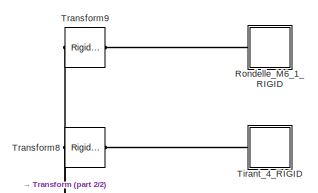
[diagram: SimMechanics/cylinder body - part 1/2, full width, top band]
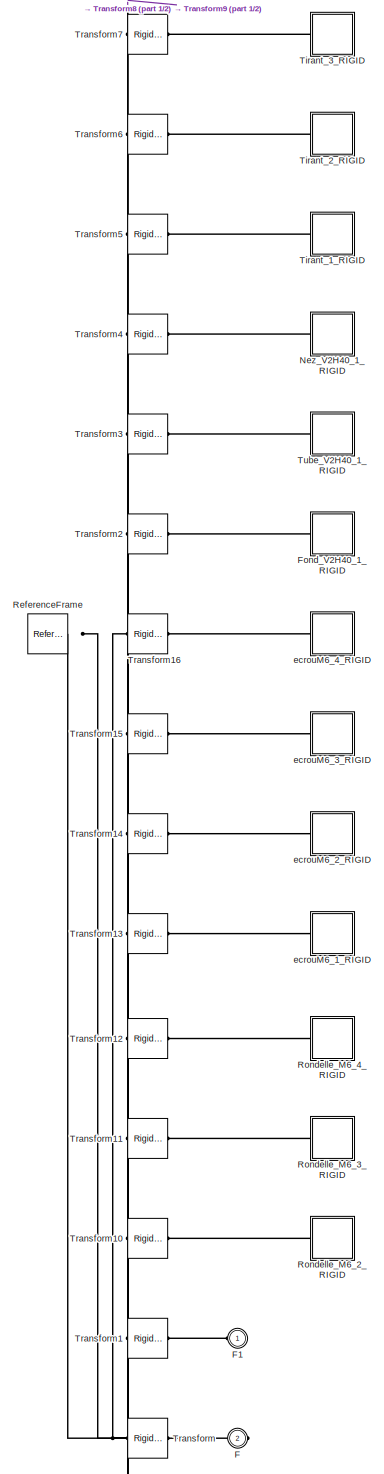
[diagram: SimMechanics/cylinder body - part 2/2, full width, middle band]
BLOCK [SubSystem] SimMechanics/cylinder body
  Ports = [0, 0, 0, 0, 0, 1, 1]
  RequestExecContextInheritance = off
  Variant = off
BLOCK [PMIOPort] SimMechanics/cylinder body/F
  Port = 2
  Side = Right
BLOCK [PMIOPort] SimMechanics/cylinder body/F1
  Port = 1
  Side = Left
BLOCK [SubSystem] SimMechanics/cylinder body/Fond_V2H40_1_RIGID
  Ports = [0, 0, 0, 0, 0, 1]
  RequestExecContextInheritance = off
  Variant = off
BLOCK [PMIOPort] SimMechanics/cylinder body/Fond_V2H40_1_RIGID/F
  Port = 1
  Side = Left
BLOCK [Reference] SimMechanics/cylinder body/Fond_V2H40_1_RIGID/ReferenceFrame  REF=sm_lib/Frames and
Transforms/Reference
Frame
  Ports = [0, 0, 0, 0, 0, 0, 1]
  SourceBlock = sm_lib/Frames and\nTransforms/Reference\nFrame
  SourceType = Reference\nFrame
BLOCK [Reference] SimMechanics/cylinder body/Fond_V2H40_1_RIGID/Solid  REF=sm_lib/Body Elements/Solid
  Ports = [0, 0, 0, 0, 0, 0, 1]
  SourceBlock = sm_lib/Body Elements/Solid
  SourceType = Solid
BLOCK [SubSystem] SimMechanics/cylinder body/Nez_V2H40_1_RIGID
  Ports = [0, 0, 0, 0, 0, 1]
  RequestExecContextInheritance = off
  Variant = off
BLOCK [PMIOPort] SimMechanics/cylinder body/Nez_V2H40_1_RIGID/F
  Port = 1
  Side = Left
BLOCK [Reference] SimMechanics/cylinder body/Nez_V2H40_1_RIGID/ReferenceFrame  REF=sm_lib/Frames and
Transforms/Reference
Frame
  Ports = [0, 0, 0, 0, 0, 0, 1]
  SourceBlock = sm_lib/Frames and\nTransforms/Reference\nFrame
  SourceType = Reference\nFrame
BLOCK [Reference] SimMechanics/cylinder body/Nez_V2H40_1_RIGID/Solid  REF=sm_lib/Body Elements/Solid
  Ports = [0, 0, 0, 0, 0, 0, 1]
  SourceBlock = sm_lib/Body Elements/Solid
  SourceType = Solid
BLOCK [Reference] SimMechanics/cylinder body/ReferenceFrame  REF=sm_lib/Frames and
Transforms/Reference
Frame
  Ports = [0, 0, 0, 0, 0, 0, 1]
  SourceBlock = sm_lib/Frames and\nTransforms/Reference\nFrame
  SourceType = Reference\nFrame
BLOCK [SubSystem] SimMechanics/cylinder body/Rondelle_M6_1_RIGID
  Ports = [0, 0, 0, 0, 0, 1]
  RequestExecContextInheritance = off
  Variant = off
BLOCK [PMIOPort] SimMechanics/cylinder body/Rondelle_M6_1_RIGID/F
  Port = 1
  Side = Left
BLOCK [Reference] SimMechanics/cylinder body/Rondelle_M6_1_RIGID/ReferenceFrame  REF=sm_lib/Frames and
Transforms/Reference
Frame
  Ports = [0, 0, 0, 0, 0, 0, 1]
  SourceBlock = sm_lib/Frames and\nTransforms/Reference\nFrame
  SourceType = Reference\nFrame
BLOCK [Reference] SimMechanics/cylinder body/Rondelle_M6_1_RIGID/Solid  REF=sm_lib/Body Elements/Solid
  Ports = [0, 0, 0, 0, 0, 0, 1]
  SourceBlock = sm_lib/Body Elements/Solid
  SourceType = Solid
BLOCK [SubSystem] SimMechanics/cylinder body/Rondelle_M6_2_RIGID
  Ports = [0, 0, 0, 0, 0, 1]
  RequestExecContextInheritance = off
  Variant = off
BLOCK [PMIOPort] SimMechanics/cylinder body/Rondelle_M6_2_RIGID/F
  Port = 1
  Side = Left
BLOCK [Reference] SimMechanics/cylinder body/Rondelle_M6_2_RIGID/ReferenceFrame  REF=sm_lib/Frames and
Transforms/Reference
Frame
  Ports = [0, 0, 0, 0, 0, 0, 1]
  SourceBlock = sm_lib/Frames and\nTransforms/Reference\nFrame
  SourceType = Reference\nFrame
BLOCK [Reference] SimMechanics/cylinder body/Rondelle_M6_2_RIGID/Solid  REF=sm_lib/Body Elements/Solid
  Ports = [0, 0, 0, 0, 0, 0, 1]
  SourceBlock = sm_lib/Body Elements/Solid
  SourceType = Solid
BLOCK [SubSystem] SimMechanics/cylinder body/Rondelle_M6_3_RIGID
  Ports = [0, 0, 0, 0, 0, 1]
  RequestExecContextInheritance = off
  Variant = off
BLOCK [PMIOPort] SimMechanics/cylinder body/Rondelle_M6_3_RIGID/F
  Port = 1
  Side = Left
BLOCK [Reference] SimMechanics/cylinder body/Rondelle_M6_3_RIGID/ReferenceFrame  REF=sm_lib/Frames and
Transforms/Reference
Frame
  Ports = [0, 0, 0, 0, 0, 0, 1]
  SourceBlock = sm_lib/Frames and\nTransforms/Reference\nFrame
  SourceType = Reference\nFrame
BLOCK [Reference] SimMechanics/cylinder body/Rondelle_M6_3_RIGID/Solid  REF=sm_lib/Body Elements/Solid
  Ports = [0, 0, 0, 0, 0, 0, 1]
  SourceBlock = sm_lib/Body Elements/Solid
  SourceType = Solid
BLOCK [SubSystem] SimMechanics/cylinder body/Rondelle_M6_4_RIGID
  Ports = [0, 0, 0, 0, 0, 1]
  RequestExecContextInheritance = off
  Variant = off
BLOCK [PMIOPort] SimMechanics/cylinder body/Rondelle_M6_4_RIGID/F
  Port = 1
  Side = Left
BLOCK [Reference] SimMechanics/cylinder body/Rondelle_M6_4_RIGID/ReferenceFrame  REF=sm_lib/Frames and
Transforms/Reference
Frame
  Ports = [0, 0, 0, 0, 0, 0, 1]
  SourceBlock = sm_lib/Frames and\nTransforms/Reference\nFrame
  SourceType = Reference\nFrame
BLOCK [Reference] SimMechanics/cylinder body/Rondelle_M6_4_RIGID/Solid  REF=sm_lib/Body Elements/Solid
  Ports = [0, 0, 0, 0, 0, 0, 1]
  SourceBlock = sm_lib/Body Elements/Solid
  SourceType = Solid
BLOCK [SubSystem] SimMechanics/cylinder body/Tirant_1_RIGID
  Ports = [0, 0, 0, 0, 0, 1]
  RequestExecContextInheritance = off
  Variant = off
BLOCK [PMIOPort] SimMechanics/cylinder body/Tirant_1_RIGID/F
  Port = 1
  Side = Left
BLOCK [Reference] SimMechanics/cylinder body/Tirant_1_RIGID/ReferenceFrame  REF=sm_lib/Frames and
Transforms/Reference
Frame
  Ports = [0, 0, 0, 0, 0, 0, 1]
  SourceBlock = sm_lib/Frames and\nTransforms/Reference\nFrame
  SourceType = Reference\nFrame
BLOCK [Reference] SimMechanics/cylinder body/Tirant_1_RIGID/Solid  REF=sm_lib/Body Elements/Solid
  Ports = [0, 0, 0, 0, 0, 0, 1]
  SourceBlock = sm_lib/Body Elements/Solid
  SourceType = Solid
BLOCK [SubSystem] SimMechanics/cylinder body/Tirant_2_RIGID
  Ports = [0, 0, 0, 0, 0, 1]
  RequestExecContextInheritance = off
  Variant = off
BLOCK [PMIOPort] SimMechanics/cylinder body/Tirant_2_RIGID/F
  Port = 1
  Side = Left
BLOCK [Reference] SimMechanics/cylinder body/Tirant_2_RIGID/ReferenceFrame  REF=sm_lib/Frames and
Transforms/Reference
Frame
  Ports = [0, 0, 0, 0, 0, 0, 1]
  SourceBlock = sm_lib/Frames and\nTransforms/Reference\nFrame
  SourceType = Reference\nFrame
BLOCK [Reference] SimMechanics/cylinder body/Tirant_2_RIGID/Solid  REF=sm_lib/Body Elements/Solid
  Ports = [0, 0, 0, 0, 0, 0, 1]
  SourceBlock = sm_lib/Body Elements/Solid
  SourceType = Solid
BLOCK [SubSystem] SimMechanics/cylinder body/Tirant_3_RIGID
  Ports = [0, 0, 0, 0, 0, 1]
  RequestExecContextInheritance = off
  Variant = off
BLOCK [PMIOPort] SimMechanics/cylinder body/Tirant_3_RIGID/F
  Port = 1
  Side = Left
BLOCK [Reference] SimMechanics/cylinder body/Tirant_3_RIGID/ReferenceFrame  REF=sm_lib/Frames and
Transforms/Reference
Frame
  Ports = [0, 0, 0, 0, 0, 0, 1]
  SourceBlock = sm_lib/Frames and\nTransforms/Reference\nFrame
  SourceType = Reference\nFrame
BLOCK [Reference] SimMechanics/cylinder body/Tirant_3_RIGID/Solid  REF=sm_lib/Body Elements/Solid
  Ports = [0, 0, 0, 0, 0, 0, 1]
  SourceBlock = sm_lib/Body Elements/Solid
  SourceType = Solid
BLOCK [SubSystem] SimMechanics/cylinder body/Tirant_4_RIGID
  Ports = [0, 0, 0, 0, 0, 1]
  RequestExecContextInheritance = off
  Variant = off
BLOCK [PMIOPort] SimMechanics/cylinder body/Tirant_4_RIGID/F
  Port = 1
  Side = Left
BLOCK [Reference] SimMechanics/cylinder body/Tirant_4_RIGID/ReferenceFrame  REF=sm_lib/Frames and
Transforms/Reference
Frame
  Ports = [0, 0, 0, 0, 0, 0, 1]
  SourceBlock = sm_lib/Frames and\nTransforms/Reference\nFrame
  SourceType = Reference\nFrame
BLOCK [Reference] SimMechanics/cylinder body/Tirant_4_RIGID/Solid  REF=sm_lib/Body Elements/Solid
  Ports = [0, 0, 0, 0, 0, 0, 1]
  SourceBlock = sm_lib/Body Elements/Solid
  SourceType = Solid
BLOCK [Reference] SimMechanics/cylinder body/Transform  REF=sm_lib/Frames and
Transforms/Rigid
Transform
  Ports = [0, 0, 0, 0, 0, 1, 1]
  SourceBlock = sm_lib/Frames and\nTransforms/Rigid\nTransform
  SourceType = Rigid\nTransform
BLOCK [Reference] SimMechanics/cylinder body/Transform1  REF=sm_lib/Frames and
Transforms/Rigid
Transform
  Ports = [0, 0, 0, 0, 0, 1, 1]
  SourceBlock = sm_lib/Frames and\nTransforms/Rigid\nTransform
  SourceType = Rigid\nTransform
BLOCK [Reference] SimMechanics/cylinder body/Transform10  REF=sm_lib/Frames and
Transforms/Rigid
Transform
  Ports = [0, 0, 0, 0, 0, 1, 1]
  SourceBlock = sm_lib/Frames and\nTransforms/Rigid\nTransform
  SourceType = Rigid\nTransform
BLOCK [Reference] SimMechanics/cylinder body/Transform11  REF=sm_lib/Frames and
Transforms/Rigid
Transform
  Ports = [0, 0, 0, 0, 0, 1, 1]
  SourceBlock = sm_lib/Frames and\nTransforms/Rigid\nTransform
  SourceType = Rigid\nTransform
BLOCK [Reference] SimMechanics/cylinder body/Transform12  REF=sm_lib/Frames and
Transforms/Rigid
Transform
  Ports = [0, 0, 0, 0, 0, 1, 1]
  SourceBlock = sm_lib/Frames and\nTransforms/Rigid\nTransform
  SourceType = Rigid\nTransform
BLOCK [Reference] SimMechanics/cylinder body/Transform13  REF=sm_lib/Frames and
Transforms/Rigid
Transform
  Ports = [0, 0, 0, 0, 0, 1, 1]
  SourceBlock = sm_lib/Frames and\nTransforms/Rigid\nTransform
  SourceType = Rigid\nTransform
BLOCK [Reference] SimMechanics/cylinder body/Transform14  REF=sm_lib/Frames and
Transforms/Rigid
Transform
  Ports = [0, 0, 0, 0, 0, 1, 1]
  SourceBlock = sm_lib/Frames and\nTransforms/Rigid\nTransform
  SourceType = Rigid\nTransform
BLOCK [Reference] SimMechanics/cylinder body/Transform15  REF=sm_lib/Frames and
Transforms/Rigid
Transform
  Ports = [0, 0, 0, 0, 0, 1, 1]
  SourceBlock = sm_lib/Frames and\nTransforms/Rigid\nTransform
  SourceType = Rigid\nTransform
BLOCK [Reference] SimMechanics/cylinder body/Transform16  REF=sm_lib/Frames and
Transforms/Rigid
Transform
  Ports = [0, 0, 0, 0, 0, 1, 1]
  SourceBlock = sm_lib/Frames and\nTransforms/Rigid\nTransform
  SourceType = Rigid\nTransform
BLOCK [Reference] SimMechanics/cylinder body/Transform2  REF=sm_lib/Frames and
Transforms/Rigid
Transform
  Ports = [0, 0, 0, 0, 0, 1, 1]
  SourceBlock = sm_lib/Frames and\nTransforms/Rigid\nTransform
  SourceType = Rigid\nTransform
BLOCK [Reference] SimMechanics/cylinder body/Transform3  REF=sm_lib/Frames and
Transforms/Rigid
Transform
  Ports = [0, 0, 0, 0, 0, 1, 1]
  SourceBlock = sm_lib/Frames and\nTransforms/Rigid\nTransform
  SourceType = Rigid\nTransform
BLOCK [Reference] SimMechanics/cylinder body/Transform4  REF=sm_lib/Frames and
Transforms/Rigid
Transform
  Ports = [0, 0, 0, 0, 0, 1, 1]
  SourceBlock = sm_lib/Frames and\nTransforms/Rigid\nTransform
  SourceType = Rigid\nTransform
BLOCK [Reference] SimMechanics/cylinder body/Transform5  REF=sm_lib/Frames and
Transforms/Rigid
Transform
  Ports = [0, 0, 0, 0, 0, 1, 1]
  SourceBlock = sm_lib/Frames and\nTransforms/Rigid\nTransform
  SourceType = Rigid\nTransform
BLOCK [Reference] SimMechanics/cylinder body/Transform6  REF=sm_lib/Frames and
Transforms/Rigid
Transform
  Ports = [0, 0, 0, 0, 0, 1, 1]
  SourceBlock = sm_lib/Frames and\nTransforms/Rigid\nTransform
  SourceType = Rigid\nTransform
BLOCK [Reference] SimMechanics/cylinder body/Transform7  REF=sm_lib/Frames and
Transforms/Rigid
Transform
  Ports = [0, 0, 0, 0, 0, 1, 1]
  SourceBlock = sm_lib/Frames and\nTransforms/Rigid\nTransform
  SourceType = Rigid\nTransform
BLOCK [Reference] SimMechanics/cylinder body/Transform8  REF=sm_lib/Frames and
Transforms/Rigid
Transform
  Ports = [0, 0, 0, 0, 0, 1, 1]
  SourceBlock = sm_lib/Frames and\nTransforms/Rigid\nTransform
  SourceType = Rigid\nTransform
BLOCK [Reference] SimMechanics/cylinder body/Transform9  REF=sm_lib/Frames and
Transforms/Rigid
Transform
  Ports = [0, 0, 0, 0, 0, 1, 1]
  SourceBlock = sm_lib/Frames and\nTransforms/Rigid\nTransform
  SourceType = Rigid\nTransform
BLOCK [SubSystem] SimMechanics/cylinder body/Tube_V2H40_1_RIGID
  Ports = [0, 0, 0, 0, 0, 1]
  RequestExecContextInheritance = off
  Variant = off
BLOCK [PMIOPort] SimMechanics/cylinder body/Tube_V2H40_1_RIGID/F
  Port = 1
  Side = Left
BLOCK [Reference] SimMechanics/cylinder body/Tube_V2H40_1_RIGID/ReferenceFrame  REF=sm_lib/Frames and
Transforms/Reference
Frame
  Ports = [0, 0, 0, 0, 0, 0, 1]
  SourceBlock = sm_lib/Frames and\nTransforms/Reference\nFrame
  SourceType = Reference\nFrame
BLOCK [Reference] SimMechanics/cylinder body/Tube_V2H40_1_RIGID/Solid  REF=sm_lib/Body Elements/Solid
  Ports = [0, 0, 0, 0, 0, 0, 1]
  SourceBlock = sm_lib/Body Elements/Solid
  SourceType = Solid
BLOCK [SubSystem] SimMechanics/cylinder body/ecrouM6_1_RIGID
  Ports = [0, 0, 0, 0, 0, 1]
  RequestExecContextInheritance = off
  Variant = off
BLOCK [PMIOPort] SimMechanics/cylinder body/ecrouM6_1_RIGID/F
  Port = 1
  Side = Left
BLOCK [Reference] SimMechanics/cylinder body/ecrouM6_1_RIGID/ReferenceFrame  REF=sm_lib/Frames and
Transforms/Reference
Frame
  Ports = [0, 0, 0, 0, 0, 0, 1]
  SourceBlock = sm_lib/Frames and\nTransforms/Reference\nFrame
  SourceType = Reference\nFrame
BLOCK [Reference] SimMechanics/cylinder body/ecrouM6_1_RIGID/Solid  REF=sm_lib/Body Elements/Solid
  Ports = [0, 0, 0, 0, 0, 0, 1]
  SourceBlock = sm_lib/Body Elements/Solid
  SourceType = Solid
BLOCK [SubSystem] SimMechanics/cylinder body/ecrouM6_2_RIGID
  Ports = [0, 0, 0, 0, 0, 1]
  RequestExecContextInheritance = off
  Variant = off
BLOCK [PMIOPort] SimMechanics/cylinder body/ecrouM6_2_RIGID/F
  Port = 1
  Side = Left
BLOCK [Reference] SimMechanics/cylinder body/ecrouM6_2_RIGID/ReferenceFrame  REF=sm_lib/Frames and
Transforms/Reference
Frame
  Ports = [0, 0, 0, 0, 0, 0, 1]
  SourceBlock = sm_lib/Frames and\nTransforms/Reference\nFrame
  SourceType = Reference\nFrame
BLOCK [Reference] SimMechanics/cylinder body/ecrouM6_2_RIGID/Solid  REF=sm_lib/Body Elements/Solid
  Ports = [0, 0, 0, 0, 0, 0, 1]
  SourceBlock = sm_lib/Body Elements/Solid
  SourceType = Solid
BLOCK [SubSystem] SimMechanics/cylinder body/ecrouM6_3_RIGID
  Ports = [0, 0, 0, 0, 0, 1]
  RequestExecContextInheritance = off
  Variant = off
BLOCK [PMIOPort] SimMechanics/cylinder body/ecrouM6_3_RIGID/F
  Port = 1
  Side = Left
BLOCK [Reference] SimMechanics/cylinder body/ecrouM6_3_RIGID/ReferenceFrame  REF=sm_lib/Frames and
Transforms/Reference
Frame
  Ports = [0, 0, 0, 0, 0, 0, 1]
  SourceBlock = sm_lib/Frames and\nTransforms/Reference\nFrame
  SourceType = Reference\nFrame
BLOCK [Reference] SimMechanics/cylinder body/ecrouM6_3_RIGID/Solid  REF=sm_lib/Body Elements/Solid
  Ports = [0, 0, 0, 0, 0, 0, 1]
  SourceBlock = sm_lib/Body Elements/Solid
  SourceType = Solid
BLOCK [SubSystem] SimMechanics/cylinder body/ecrouM6_4_RIGID
  Ports = [0, 0, 0, 0, 0, 1]
  RequestExecContextInheritance = off
  Variant = off
BLOCK [PMIOPort] SimMechanics/cylinder body/ecrouM6_4_RIGID/F
  Port = 1
  Side = Left
BLOCK [Reference] SimMechanics/cylinder body/ecrouM6_4_RIGID/ReferenceFrame  REF=sm_lib/Frames and
Transforms/Reference
Frame
  Ports = [0, 0, 0, 0, 0, 0, 1]
  SourceBlock = sm_lib/Frames and\nTransforms/Reference\nFrame
  SourceType = Reference\nFrame
BLOCK [Reference] SimMechanics/cylinder body/ecrouM6_4_RIGID/Solid  REF=sm_lib/Body Elements/Solid
  Ports = [0, 0, 0, 0, 0, 0, 1]
  SourceBlock = sm_lib/Body Elements/Solid
  SourceType = Solid
BLOCK [SubSystem] SimMechanics/cylinder rode
  Ports = [0, 0, 0, 0, 0, 2]
  RequestExecContextInheritance = off
  Variant = off
BLOCK [SubSystem] SimMechanics/cylinder rode displacment measurment
  Ports = [0, 0, 0, 0, 0, 1]
  RequestExecContextInheritance = off
  Variant = off
BLOCK [PMIOPort] SimMechanics/cylinder rode displacment measurment/Conn1
  Port = 1
  Side = Left
BLOCK [Goto] SimMechanics/cylinder rode displacment measurment/Goto
  GotoTag = rode_displacment
  TagVisibility = global
BLOCK [Reference] SimMechanics/cylinder rode displacment measurment/PS-Simulink Converter1  REF=nesl_utility/PS-Simulink
Converter
  Ports = [0, 1, 0, 0, 0, 1]
  SourceBlock = nesl_utility/PS-Simulink\nConverter
  SourceType = PS-Simulink\nConverter
BLOCK [SubSystem] SimMechanics/cylinder rode/EmboutRotule_1_RIGID
  Ports = [0, 0, 0, 0, 0, 1]
  RequestExecContextInheritance = off
  Variant = off
BLOCK [PMIOPort] SimMechanics/cylinder rode/EmboutRotule_1_RIGID/F
  Port = 1
  Side = Left
BLOCK [Reference] SimMechanics/cylinder rode/EmboutRotule_1_RIGID/ReferenceFrame  REF=sm_lib/Frames and
Transforms/Reference
Frame
  Ports = [0, 0, 0, 0, 0, 0, 1]
  SourceBlock = sm_lib/Frames and\nTransforms/Reference\nFrame
  SourceType = Reference\nFrame
BLOCK [Reference] SimMechanics/cylinder rode/EmboutRotule_1_RIGID/Solid  REF=sm_lib/Body Elements/Solid
  Ports = [0, 0, 0, 0, 0, 0, 1]
  SourceBlock = sm_lib/Body Elements/Solid
  SourceType = Solid
BLOCK [PMIOPort] SimMechanics/cylinder rode/F
  Port = 2
  Side = Left
BLOCK [PMIOPort] SimMechanics/cylinder rode/F1
  Port = 1
  Side = Left
BLOCK [SubSystem] SimMechanics/cylinder rode/GoupilleFendue_1_RIGID
  Ports = [0, 0, 0, 0, 0, 1]
  RequestExecContextInheritance = off
  Variant = off
BLOCK [PMIOPort] SimMechanics/cylinder rode/GoupilleFendue_1_RIGID/F
  Port = 1
  Side = Left
BLOCK [Reference] SimMechanics/cylinder rode/GoupilleFendue_1_RIGID/ReferenceFrame  REF=sm_lib/Frames and
Transforms/Reference
Frame
  Ports = [0, 0, 0, 0, 0, 0, 1]
  SourceBlock = sm_lib/Frames and\nTransforms/Reference\nFrame
  SourceType = Reference\nFrame
BLOCK [Reference] SimMechanics/cylinder rode/GoupilleFendue_1_RIGID/Solid  REF=sm_lib/Body Elements/Solid
  Ports = [0, 0, 0, 0, 0, 0, 1]
  SourceBlock = sm_lib/Body Elements/Solid
  SourceType = Solid
BLOCK [SubSystem] SimMechanics/cylinder rode/Piston_VHM40DTP_1_RIGID
  Ports = [0, 0, 0, 0, 0, 1]
  RequestExecContextInheritance = off
  Variant = off
BLOCK [PMIOPort] SimMechanics/cylinder rode/Piston_VHM40DTP_1_RIGID/F
  Port = 1
  Side = Left
BLOCK [Reference] SimMechanics/cylinder rode/Piston_VHM40DTP_1_RIGID/ReferenceFrame  REF=sm_lib/Frames and
Transforms/Reference
Frame
  Ports = [0, 0, 0, 0, 0, 0, 1]
  SourceBlock = sm_lib/Frames and\nTransforms/Reference\nFrame
  SourceType = Reference\nFrame
BLOCK [Reference] SimMechanics/cylinder rode/Piston_VHM40DTP_1_RIGID/Solid  REF=sm_lib/Body Elements/Solid
  Ports = [0, 0, 0, 0, 0, 0, 1]
  SourceBlock = sm_lib/Body Elements/Solid
  SourceType = Solid
BLOCK [Reference] SimMechanics/cylinder rode/ReferenceFrame  REF=sm_lib/Frames and
Transforms/Reference
Frame
  Ports = [0, 0, 0, 0, 0, 0, 1]
  SourceBlock = sm_lib/Frames and\nTransforms/Reference\nFrame
  SourceType = Reference\nFrame
BLOCK [Reference] SimMechanics/cylinder rode/Transform  REF=sm_lib/Frames and
Transforms/Rigid
Transform
  Ports = [0, 0, 0, 0, 0, 1, 1]
  SourceBlock = sm_lib/Frames and\nTransforms/Rigid\nTransform
  SourceType = Rigid\nTransform
BLOCK [Reference] SimMechanics/cylinder rode/Transform1  REF=sm_lib/Frames and
Transforms/Rigid
Transform
  Ports = [0, 0, 0, 0, 0, 1, 1]
  SourceBlock = sm_lib/Frames and\nTransforms/Rigid\nTransform
  SourceType = Rigid\nTransform
BLOCK [Reference] SimMechanics/cylinder rode/Transform2  REF=sm_lib/Frames and
Transforms/Rigid
Transform
  Ports = [0, 0, 0, 0, 0, 1, 1]
  SourceBlock = sm_lib/Frames and\nTransforms/Rigid\nTransform
  SourceType = Rigid\nTransform
BLOCK [Reference] SimMechanics/cylinder rode/Transform3  REF=sm_lib/Frames and
Transforms/Rigid
Transform
  Ports = [0, 0, 0, 0, 0, 1, 1]
  SourceBlock = sm_lib/Frames and\nTransforms/Rigid\nTransform
  SourceType = Rigid\nTransform
BLOCK [Reference] SimMechanics/cylinder rode/Transform4  REF=sm_lib/Frames and
Transforms/Rigid
Transform
  Ports = [0, 0, 0, 0, 0, 1, 1]
  SourceBlock = sm_lib/Frames and\nTransforms/Rigid\nTransform
  SourceType = Rigid\nTransform
BLOCK [Reference] SimMechanics/cylinder rode/Transform5  REF=sm_lib/Frames and
Transforms/Rigid
Transform
  Ports = [0, 0, 0, 0, 0, 1, 1]
  SourceBlock = sm_lib/Frames and\nTransforms/Rigid\nTransform
  SourceType = Rigid\nTransform
BLOCK [Reference] SimMechanics/cylinder rode/Transform6  REF=sm_lib/Frames and
Transforms/Rigid
Transform
  Ports = [0, 0, 0, 0, 0, 1, 1]
  SourceBlock = sm_lib/Frames and\nTransforms/Rigid\nTransform
  SourceType = Rigid\nTransform
BLOCK [SubSystem] SimMechanics/cylinder rode/axe_de_piston_1_RIGID
  Ports = [0, 0, 0, 0, 0, 1]
  RequestExecContextInheritance = off
  Variant = off
BLOCK [PMIOPort] SimMechanics/cylinder rode/axe_de_piston_1_RIGID/F
  Port = 1
  Side = Left
BLOCK [Reference] SimMechanics/cylinder rode/axe_de_piston_1_RIGID/ReferenceFrame  REF=sm_lib/Frames and
Transforms/Reference
Frame
  Ports = [0, 0, 0, 0, 0, 0, 1]
  SourceBlock = sm_lib/Frames and\nTransforms/Reference\nFrame
  SourceType = Reference\nFrame
BLOCK [Reference] SimMechanics/cylinder rode/axe_de_piston_1_RIGID/Solid  REF=sm_lib/Body Elements/Solid
  Ports = [0, 0, 0, 0, 0, 0, 1]
  SourceBlock = sm_lib/Body Elements/Solid
  SourceType = Solid
BLOCK [SubSystem] SimMechanics/cylinder rode/tige_speciale_1_RIGID
  Ports = [0, 0, 0, 0, 0, 1]
  RequestExecContextInheritance = off
  Variant = off
BLOCK [PMIOPort] SimMechanics/cylinder rode/tige_speciale_1_RIGID/F
  Port = 1
  Side = Left
BLOCK [Reference] SimMechanics/cylinder rode/tige_speciale_1_RIGID/ReferenceFrame  REF=sm_lib/Frames and
Transforms/Reference
Frame
  Ports = [0, 0, 0, 0, 0, 0, 1]
  SourceBlock = sm_lib/Frames and\nTransforms/Reference\nFrame
  SourceType = Reference\nFrame
BLOCK [Reference] SimMechanics/cylinder rode/tige_speciale_1_RIGID/Solid  REF=sm_lib/Body Elements/Solid
  Ports = [0, 0, 0, 0, 0, 0, 1]
  SourceBlock = sm_lib/Body Elements/Solid
  SourceType = Solid
BLOCK [Reference] SimMechanics/cylindrical  REF=sm_lib/Joints/Cylindrical
Joint
  Ports = [0, 0, 0, 0, 0, 1, 1]
  SourceBlock = sm_lib/Joints/Cylindrical\nJoint
  SourceType = Cylindrical\nJoint
BLOCK [Reference] SimMechanics/cylindrical 2  REF=sm_lib/Joints/Cylindrical
Joint
  Ports = [0, 0, 0, 0, 0, 2, 3]
  SourceBlock = sm_lib/Joints/Cylindrical\nJoint
  SourceType = Cylindrical\nJoint
BLOCK [Outport] SimMechanics/helm angle
  IconDisplay = Port number
BLOCK [SubSystem] SimMechanics/helm angle measurment
  Ports = [0, 1, 0, 0, 0, 1]
  RequestExecContextInheritance = off
  Variant = off
BLOCK [PMIOPort] SimMechanics/helm angle measurment/Conn1
  Port = 1
  Side = Left
BLOCK [Goto] SimMechanics/helm angle measurment/Goto
  GotoTag = helm_angle
  TagVisibility = global
BLOCK [Outport] SimMechanics/helm angle measurment/Out1
  IconDisplay = Port number
BLOCK [Reference] SimMechanics/helm angle measurment/PS-Simulink Converter  REF=nesl_utility/PS-Simulink
Converter
  Ports = [0, 1, 0, 0, 0, 1]
  SourceBlock = nesl_utility/PS-Simulink\nConverter
  SourceType = PS-Simulink\nConverter
BLOCK [Sum] SimMechanics/helm angle measurment/Sum
  IconShape = round
  InputSameDT = off
  Inputs = |+-
  OutDataTypeStr = Inherit: Inherit via internal rule
  Ports = [2, 1]
  SaturateOnIntegerOverflow = off
BLOCK [Constant] SimMechanics/helm angle measurment/offset barre
  Value = 91.342079820133691
BLOCK [Reference] SimMechanics/revolute  REF=sm_lib/Joints/Revolute Joint
  Ports = [0, 0, 0, 0, 0, 2, 2]
  SourceBlock = sm_lib/Joints/Revolute Joint
  SourceType = Revolute Joint
BLOCK [Reference] SimMechanics/spherical  REF=sm_lib/Joints/Spherical
Joint
  Ports = [0, 0, 0, 0, 0, 1, 1]
  SourceBlock = sm_lib/Joints/Spherical\nJoint
  SourceType = Spherical\nJoint
BLOCK [SubSystem] SimMechanics/stock arm
  Ports = [0, 0, 0, 0, 0, 1, 1]
  RequestExecContextInheritance = off
  Variant = off
BLOCK [SubSystem] SimMechanics/stock arm/AP_BrasMeche_1_RIGID
  Ports = [0, 0, 0, 0, 0, 0, 1]
  RequestExecContextInheritance = off
  Variant = off
BLOCK [SubSystem] SimMechanics/stock arm/AP_BrasMeche_1_RIGID/Axe_1_RIGID
  Ports = [0, 0, 0, 0, 0, 1]
  RequestExecContextInheritance = off
  Variant = off
BLOCK [PMIOPort] SimMechanics/stock arm/AP_BrasMeche_1_RIGID/Axe_1_RIGID/F
  Port = 1
  Side = Left
BLOCK [Reference] SimMechanics/stock arm/AP_BrasMeche_1_RIGID/Axe_1_RIGID/ReferenceFrame  REF=sm_lib/Frames and
Transforms/Reference
Frame
  Ports = [0, 0, 0, 0, 0, 0, 1]
  SourceBlock = sm_lib/Frames and\nTransforms/Reference\nFrame
  SourceType = Reference\nFrame
BLOCK [Reference] SimMechanics/stock arm/AP_BrasMeche_1_RIGID/Axe_1_RIGID/Solid  REF=sm_lib/Body Elements/Solid
  Ports = [0, 0, 0, 0, 0, 0, 1]
  SourceBlock = sm_lib/Body Elements/Solid
  SourceType = Solid
BLOCK [SubSystem] SimMechanics/stock arm/AP_BrasMeche_1_RIGID/BrasMeche_1_RIGID
  Ports = [0, 0, 0, 0, 0, 1]
  RequestExecContextInheritance = off
  Variant = off
BLOCK [PMIOPort] SimMechanics/stock arm/AP_BrasMeche_1_RIGID/BrasMeche_1_RIGID/F
  Port = 1
  Side = Left
BLOCK [Reference] SimMechanics/stock arm/AP_BrasMeche_1_RIGID/BrasMeche_1_RIGID/ReferenceFrame  REF=sm_lib/Frames and
Transforms/Reference
Frame
  Ports = [0, 0, 0, 0, 0, 0, 1]
  SourceBlock = sm_lib/Frames and\nTransforms/Reference\nFrame
  SourceType = Reference\nFrame
BLOCK [Reference] SimMechanics/stock arm/AP_BrasMeche_1_RIGID/BrasMeche_1_RIGID/Solid  REF=sm_lib/Body Elements/Solid
  Ports = [0, 0, 0, 0, 0, 0, 1]
  SourceBlock = sm_lib/Body Elements/Solid
  SourceType = Solid
BLOCK [SubSystem] SimMechanics/stock arm/AP_BrasMeche_1_RIGID/Ecrou_Hm_M5_1_RIGID
  Ports = [0, 0, 0, 0, 0, 1]
  RequestExecContextInheritance = off
  Variant = off
BLOCK [PMIOPort] SimMechanics/stock arm/AP_BrasMeche_1_RIGID/Ecrou_Hm_M5_1_RIGID/F
  Port = 1
  Side = Left
BLOCK [Reference] SimMechanics/stock arm/AP_BrasMeche_1_RIGID/Ecrou_Hm_M5_1_RIGID/ReferenceFrame  REF=sm_lib/Frames and
Transforms/Reference
Frame
  Ports = [0, 0, 0, 0, 0, 0, 1]
  SourceBlock = sm_lib/Frames and\nTransforms/Reference\nFrame
  SourceType = Reference\nFrame
BLOCK [Reference] SimMechanics/stock arm/AP_BrasMeche_1_RIGID/Ecrou_Hm_M5_1_RIGID/Solid  REF=sm_lib/Body Elements/Solid
  Ports = [0, 0, 0, 0, 0, 0, 1]
  SourceBlock = sm_lib/Body Elements/Solid
  SourceType = Solid
BLOCK [SubSystem] SimMechanics/stock arm/AP_BrasMeche_1_RIGID/Ecrou_Nylstop_M14_1_RIGID
  Ports = [0, 0, 0, 0, 0, 1]
  RequestExecContextInheritance = off
  Variant = off
BLOCK [PMIOPort] SimMechanics/stock arm/AP_BrasMeche_1_RIGID/Ecrou_Nylstop_M14_1_RIGID/F
  Port = 1
  Side = Left
BLOCK [Reference] SimMechanics/stock arm/AP_BrasMeche_1_RIGID/Ecrou_Nylstop_M14_1_RIGID/ReferenceFrame  REF=sm_lib/Frames and
Transforms/Reference
Frame
  Ports = [0, 0, 0, 0, 0, 0, 1]
  SourceBlock = sm_lib/Frames and\nTransforms/Reference\nFrame
  SourceType = Reference\nFrame
BLOCK [Reference] SimMechanics/stock arm/AP_BrasMeche_1_RIGID/Ecrou_Nylstop_M14_1_RIGID/Solid  REF=sm_lib/Body Elements/Solid
  Ports = [0, 0, 0, 0, 0, 0, 1]
  SourceBlock = sm_lib/Body Elements/Solid
  SourceType = Solid
BLOCK [SubSystem] SimMechanics/stock arm/AP_BrasMeche_1_RIGID/Ecrou_Nylstop_d10_1_RIGID
  Ports = [0, 0, 0, 0, 0, 1]
  RequestExecContextInheritance = off
  Variant = off
BLOCK [PMIOPort] SimMechanics/stock arm/AP_BrasMeche_1_RIGID/Ecrou_Nylstop_d10_1_RIGID/F
  Port = 1
  Side = Left
BLOCK [Reference] SimMechanics/stock arm/AP_BrasMeche_1_RIGID/Ecrou_Nylstop_d10_1_RIGID/ReferenceFrame  REF=sm_lib/Frames and
Transforms/Reference
Frame
  Ports = [0, 0, 0, 0, 0, 0, 1]
  SourceBlock = sm_lib/Frames and\nTransforms/Reference\nFrame
  SourceType = Reference\nFrame
BLOCK [Reference] SimMechanics/stock arm/AP_BrasMeche_1_RIGID/Ecrou_Nylstop_d10_1_RIGID/Solid  REF=sm_lib/Body Elements/Solid
  Ports = [0, 0, 0, 0, 0, 0, 1]
  SourceBlock = sm_lib/Body Elements/Solid
  SourceType = Solid
BLOCK [SubSystem] SimMechanics/stock arm/AP_BrasMeche_1_RIGID/Ecrou_Nylstop_d10_2_RIGID
  Ports = [0, 0, 0, 0, 0, 1]
  RequestExecContextInheritance = off
  Variant = off
BLOCK [PMIOPort] SimMechanics/stock arm/AP_BrasMeche_1_RIGID/Ecrou_Nylstop_d10_2_RIGID/F
  Port = 1
  Side = Left
BLOCK [Reference] SimMechanics/stock arm/AP_BrasMeche_1_RIGID/Ecrou_Nylstop_d10_2_RIGID/ReferenceFrame  REF=sm_lib/Frames and
Transforms/Reference
Frame
  Ports = [0, 0, 0, 0, 0, 0, 1]
  SourceBlock = sm_lib/Frames and\nTransforms/Reference\nFrame
  SourceType = Reference\nFrame
BLOCK [Reference] SimMechanics/stock arm/AP_BrasMeche_1_RIGID/Ecrou_Nylstop_d10_2_RIGID/Solid  REF=sm_lib/Body Elements/Solid
  Ports = [0, 0, 0, 0, 0, 0, 1]
  SourceBlock = sm_lib/Body Elements/Solid
  SourceType = Solid
BLOCK [SubSystem] SimMechanics/stock arm/AP_BrasMeche_1_RIGID/Epingle_1_RIGID
  Ports = [0, 0, 0, 0, 0, 1]
  RequestExecContextInheritance = off
  Variant = off
BLOCK [PMIOPort] SimMechanics/stock arm/AP_BrasMeche_1_RIGID/Epingle_1_RIGID/F
  Port = 1
  Side = Left
BLOCK [Reference] SimMechanics/stock arm/AP_BrasMeche_1_RIGID/Epingle_1_RIGID/ReferenceFrame  REF=sm_lib/Frames and
Transforms/Reference
Frame
  Ports = [0, 0, 0, 0, 0, 0, 1]
  SourceBlock = sm_lib/Frames and\nTransforms/Reference\nFrame
  SourceType = Reference\nFrame
BLOCK [Reference] SimMechanics/stock arm/AP_BrasMeche_1_RIGID/Epingle_1_RIGID/Solid  REF=sm_lib/Body Elements/Solid
  Ports = [0, 0, 0, 0, 0, 0, 1]
  SourceBlock = sm_lib/Body Elements/Solid
  SourceType = Solid
BLOCK [PMIOPort] SimMechanics/stock arm/AP_BrasMeche_1_RIGID/F
  Port = 1
  Side = Right
BLOCK [Reference] SimMechanics/stock arm/AP_BrasMeche_1_RIGID/ReferenceFrame  REF=sm_lib/Frames and
Transforms/Reference
Frame
  Ports = [0, 0, 0, 0, 0, 0, 1]
  SourceBlock = sm_lib/Frames and\nTransforms/Reference\nFrame
  SourceType = Reference\nFrame
BLOCK [SubSystem] SimMechanics/stock arm/AP_BrasMeche_1_RIGID/Rondelle_Grower_d14_1_RIGID
  Ports = [0, 0, 0, 0, 0, 1]
  RequestExecContextInheritance = off
  Variant = off
BLOCK [PMIOPort] SimMechanics/stock arm/AP_BrasMeche_1_RIGID/Rondelle_Grower_d14_1_RIGID/F
  Port = 1
  Side = Left
BLOCK [Reference] SimMechanics/stock arm/AP_BrasMeche_1_RIGID/Rondelle_Grower_d14_1_RIGID/ReferenceFrame  REF=sm_lib/Frames and
Transforms/Reference
Frame
  Ports = [0, 0, 0, 0, 0, 0, 1]
  SourceBlock = sm_lib/Frames and\nTransforms/Reference\nFrame
  SourceType = Reference\nFrame
BLOCK [Reference] SimMechanics/stock arm/AP_BrasMeche_1_RIGID/Rondelle_Grower_d14_1_RIGID/Solid  REF=sm_lib/Body Elements/Solid
  Ports = [0, 0, 0, 0, 0, 0, 1]
  SourceBlock = sm_lib/Body Elements/Solid
  SourceType = Solid
BLOCK [SubSystem] SimMechanics/stock arm/AP_BrasMeche_1_RIGID/Rondelle_plate_d10x2_1_RIGID
  Ports = [0, 0, 0, 0, 0, 1]
  RequestExecContextInheritance = off
  Variant = off
BLOCK [PMIOPort] SimMechanics/stock arm/AP_BrasMeche_1_RIGID/Rondelle_plate_d10x2_1_RIGID/F
  Port = 1
  Side = Left
BLOCK [Reference] SimMechanics/stock arm/AP_BrasMeche_1_RIGID/Rondelle_plate_d10x2_1_RIGID/ReferenceFrame  REF=sm_lib/Frames and
Transforms/Reference
Frame
  Ports = [0, 0, 0, 0, 0, 0, 1]
  SourceBlock = sm_lib/Frames and\nTransforms/Reference\nFrame
  SourceType = Reference\nFrame
BLOCK [Reference] SimMechanics/stock arm/AP_BrasMeche_1_RIGID/Rondelle_plate_d10x2_1_RIGID/Solid  REF=sm_lib/Body Elements/Solid
  Ports = [0, 0, 0, 0, 0, 0, 1]
  SourceBlock = sm_lib/Body Elements/Solid
  SourceType = Solid
BLOCK [SubSystem] SimMechanics/stock arm/AP_BrasMeche_1_RIGID/Rondelle_plate_d10x2_2_RIGID
  Ports = [0, 0, 0, 0, 0, 1]
  RequestExecContextInheritance = off
  Variant = off
BLOCK [PMIOPort] SimMechanics/stock arm/AP_BrasMeche_1_RIGID/Rondelle_plate_d10x2_2_RIGID/F
  Port = 1
  Side = Left
BLOCK [Reference] SimMechanics/stock arm/AP_BrasMeche_1_RIGID/Rondelle_plate_d10x2_2_RIGID/ReferenceFrame  REF=sm_lib/Frames and
Transforms/Reference
Frame
  Ports = [0, 0, 0, 0, 0, 0, 1]
  SourceBlock = sm_lib/Frames and\nTransforms/Reference\nFrame
  SourceType = Reference\nFrame
BLOCK [Reference] SimMechanics/stock arm/AP_BrasMeche_1_RIGID/Rondelle_plate_d10x2_2_RIGID/Solid  REF=sm_lib/Body Elements/Solid
  Ports = [0, 0, 0, 0, 0, 0, 1]
  SourceBlock = sm_lib/Body Elements/Solid
  SourceType = Solid
BLOCK [SubSystem] SimMechanics/stock arm/AP_BrasMeche_1_RIGID/RotuleClipBoule_1_RIGID
  Ports = [0, 0, 0, 0, 0, 1]
  RequestExecContextInheritance = off
  Variant = off
BLOCK [PMIOPort] SimMechanics/stock arm/AP_BrasMeche_1_RIGID/RotuleClipBoule_1_RIGID/F
  Port = 1
  Side = Left
BLOCK [Reference] SimMechanics/stock arm/AP_BrasMeche_1_RIGID/RotuleClipBoule_1_RIGID/ReferenceFrame  REF=sm_lib/Frames and
Transforms/Reference
Frame
  Ports = [0, 0, 0, 0, 0, 0, 1]
  SourceBlock = sm_lib/Frames and\nTransforms/Reference\nFrame
  SourceType = Reference\nFrame
BLOCK [Reference] SimMechanics/stock arm/AP_BrasMeche_1_RIGID/RotuleClipBoule_1_RIGID/Solid  REF=sm_lib/Body Elements/Solid
  Ports = [0, 0, 0, 0, 0, 0, 1]
  SourceBlock = sm_lib/Body Elements/Solid
  SourceType = Solid
BLOCK [Reference] SimMechanics/stock arm/AP_BrasMeche_1_RIGID/Transform  REF=sm_lib/Frames and
Transforms/Rigid
Transform
  Ports = [0, 0, 0, 0, 0, 1, 1]
  SourceBlock = sm_lib/Frames and\nTransforms/Rigid\nTransform
  SourceType = Rigid\nTransform
BLOCK [Reference] SimMechanics/stock arm/AP_BrasMeche_1_RIGID/Transform1  REF=sm_lib/Frames and
Transforms/Rigid
Transform
  Ports = [0, 0, 0, 0, 0, 1, 1]
  SourceBlock = sm_lib/Frames and\nTransforms/Rigid\nTransform
  SourceType = Rigid\nTransform
BLOCK [Reference] SimMechanics/stock arm/AP_BrasMeche_1_RIGID/Transform10  REF=sm_lib/Frames and
Transforms/Rigid
Transform
  Ports = [0, 0, 0, 0, 0, 1, 1]
  SourceBlock = sm_lib/Frames and\nTransforms/Rigid\nTransform
  SourceType = Rigid\nTransform
BLOCK [Reference] SimMechanics/stock arm/AP_BrasMeche_1_RIGID/Transform11  REF=sm_lib/Frames and
Transforms/Rigid
Transform
  Ports = [0, 0, 0, 0, 0, 1, 1]
  SourceBlock = sm_lib/Frames and\nTransforms/Rigid\nTransform
  SourceType = Rigid\nTransform
BLOCK [Reference] SimMechanics/stock arm/AP_BrasMeche_1_RIGID/Transform12  REF=sm_lib/Frames and
Transforms/Rigid
Transform
  Ports = [0, 0, 0, 0, 0, 1, 1]
  SourceBlock = sm_lib/Frames and\nTransforms/Rigid\nTransform
  SourceType = Rigid\nTransform
BLOCK [Reference] SimMechanics/stock arm/AP_BrasMeche_1_RIGID/Transform13  REF=sm_lib/Frames and
Transforms/Rigid
Transform
  Ports = [0, 0, 0, 0, 0, 1, 1]
  SourceBlock = sm_lib/Frames and\nTransforms/Rigid\nTransform
  SourceType = Rigid\nTransform
BLOCK [Reference] SimMechanics/stock arm/AP_BrasMeche_1_RIGID/Transform14  REF=sm_lib/Frames and
Transforms/Rigid
Transform
  Ports = [0, 0, 0, 0, 0, 1, 1]
  SourceBlock = sm_lib/Frames and\nTransforms/Rigid\nTransform
  SourceType = Rigid\nTransform
BLOCK [Reference] SimMechanics/stock arm/AP_BrasMeche_1_RIGID/Transform15  REF=sm_lib/Frames and
Transforms/Rigid
Transform
  Ports = [0, 0, 0, 0, 0, 1, 1]
  SourceBlock = sm_lib/Frames and\nTransforms/Rigid\nTransform
  SourceType = Rigid\nTransform
BLOCK [Reference] SimMechanics/stock arm/AP_BrasMeche_1_RIGID/Transform2  REF=sm_lib/Frames and
Transforms/Rigid
Transform
  Ports = [0, 0, 0, 0, 0, 1, 1]
  SourceBlock = sm_lib/Frames and\nTransforms/Rigid\nTransform
  SourceType = Rigid\nTransform
BLOCK [Reference] SimMechanics/stock arm/AP_BrasMeche_1_RIGID/Transform3  REF=sm_lib/Frames and
Transforms/Rigid
Transform
  Ports = [0, 0, 0, 0, 0, 1, 1]
  SourceBlock = sm_lib/Frames and\nTransforms/Rigid\nTransform
  SourceType = Rigid\nTransform
BLOCK [Reference] SimMechanics/stock arm/AP_BrasMeche_1_RIGID/Transform4  REF=sm_lib/Frames and
Transforms/Rigid
Transform
  Ports = [0, 0, 0, 0, 0, 1, 1]
  SourceBlock = sm_lib/Frames and\nTransforms/Rigid\nTransform
  SourceType = Rigid\nTransform
BLOCK [Reference] SimMechanics/stock arm/AP_BrasMeche_1_RIGID/Transform5  REF=sm_lib/Frames and
Transforms/Rigid
Transform
  Ports = [0, 0, 0, 0, 0, 1, 1]
  SourceBlock = sm_lib/Frames and\nTransforms/Rigid\nTransform
  SourceType = Rigid\nTransform
BLOCK [Reference] SimMechanics/stock arm/AP_BrasMeche_1_RIGID/Transform6  REF=sm_lib/Frames and
Transforms/Rigid
Transform
  Ports = [0, 0, 0, 0, 0, 1, 1]
  SourceBlock = sm_lib/Frames and\nTransforms/Rigid\nTransform
  SourceType = Rigid\nTransform
BLOCK [Reference] SimMechanics/stock arm/AP_BrasMeche_1_RIGID/Transform7  REF=sm_lib/Frames and
Transforms/Rigid
Transform
  Ports = [0, 0, 0, 0, 0, 1, 1]
  SourceBlock = sm_lib/Frames and\nTransforms/Rigid\nTransform
  SourceType = Rigid\nTransform
BLOCK [Reference] SimMechanics/stock arm/AP_BrasMeche_1_RIGID/Transform8  REF=sm_lib/Frames and
Transforms/Rigid
Transform
  Ports = [0, 0, 0, 0, 0, 1, 1]
  SourceBlock = sm_lib/Frames and\nTransforms/Rigid\nTransform
  SourceType = Rigid\nTransform
BLOCK [Reference] SimMechanics/stock arm/AP_BrasMeche_1_RIGID/Transform9  REF=sm_lib/Frames and
Transforms/Rigid
Transform
  Ports = [0, 0, 0, 0, 0, 1, 1]
  SourceBlock = sm_lib/Frames and\nTransforms/Rigid\nTransform
  SourceType = Rigid\nTransform
BLOCK [SubSystem] SimMechanics/stock arm/AP_BrasMeche_1_RIGID/Vis_H_M10x60_1_RIGID
  Ports = [0, 0, 0, 0, 0, 1]
  RequestExecContextInheritance = off
  Variant = off
BLOCK [PMIOPort] SimMechanics/stock arm/AP_BrasMeche_1_RIGID/Vis_H_M10x60_1_RIGID/F
  Port = 1
  Side = Left
BLOCK [Reference] SimMechanics/stock arm/AP_BrasMeche_1_RIGID/Vis_H_M10x60_1_RIGID/ReferenceFrame  REF=sm_lib/Frames and
Transforms/Reference
Frame
  Ports = [0, 0, 0, 0, 0, 0, 1]
  SourceBlock = sm_lib/Frames and\nTransforms/Reference\nFrame
  SourceType = Reference\nFrame
BLOCK [Reference] SimMechanics/stock arm/AP_BrasMeche_1_RIGID/Vis_H_M10x60_1_RIGID/Solid  REF=sm_lib/Body Elements/Solid
  Ports = [0, 0, 0, 0, 0, 0, 1]
  SourceBlock = sm_lib/Body Elements/Solid
  SourceType = Solid
BLOCK [SubSystem] SimMechanics/stock arm/AP_BrasMeche_1_RIGID/Vis_H_M10x60_2_RIGID
  Ports = [0, 0, 0, 0, 0, 1]
  RequestExecContextInheritance = off
  Variant = off
BLOCK [PMIOPort] SimMechanics/stock arm/AP_BrasMeche_1_RIGID/Vis_H_M10x60_2_RIGID/F
  Port = 1
  Side = Left
BLOCK [Reference] SimMechanics/stock arm/AP_BrasMeche_1_RIGID/Vis_H_M10x60_2_RIGID/ReferenceFrame  REF=sm_lib/Frames and
Transforms/Reference
Frame
  Ports = [0, 0, 0, 0, 0, 0, 1]
  SourceBlock = sm_lib/Frames and\nTransforms/Reference\nFrame
  SourceType = Reference\nFrame
BLOCK [Reference] SimMechanics/stock arm/AP_BrasMeche_1_RIGID/Vis_H_M10x60_2_RIGID/Solid  REF=sm_lib/Body Elements/Solid
  Ports = [0, 0, 0, 0, 0, 0, 1]
  SourceBlock = sm_lib/Body Elements/Solid
  SourceType = Solid
BLOCK [SubSystem] SimMechanics/stock arm/AP_BrasMeche_1_RIGID/Vis_Pression_M10_1_RIGID
  Ports = [0, 0, 0, 0, 0, 1]
  RequestExecContextInheritance = off
  Variant = off
BLOCK [PMIOPort] SimMechanics/stock arm/AP_BrasMeche_1_RIGID/Vis_Pression_M10_1_RIGID/F
  Port = 1
  Side = Left
BLOCK [Reference] SimMechanics/stock arm/AP_BrasMeche_1_RIGID/Vis_Pression_M10_1_RIGID/ReferenceFrame  REF=sm_lib/Frames and
Transforms/Reference
Frame
  Ports = [0, 0, 0, 0, 0, 0, 1]
  SourceBlock = sm_lib/Frames and\nTransforms/Reference\nFrame
  SourceType = Reference\nFrame
BLOCK [Reference] SimMechanics/stock arm/AP_BrasMeche_1_RIGID/Vis_Pression_M10_1_RIGID/Solid  REF=sm_lib/Body Elements/Solid
  Ports = [0, 0, 0, 0, 0, 0, 1]
  SourceBlock = sm_lib/Body Elements/Solid
  SourceType = Solid
BLOCK [SubSystem] SimMechanics/stock arm/AP_BrasMeche_1_RIGID/Vis_Pression_M10_2_RIGID
  Ports = [0, 0, 0, 0, 0, 1]
  RequestExecContextInheritance = off
  Variant = off
BLOCK [PMIOPort] SimMechanics/stock arm/AP_BrasMeche_1_RIGID/Vis_Pression_M10_2_RIGID/F
  Port = 1
  Side = Left
BLOCK [Reference] SimMechanics/stock arm/AP_BrasMeche_1_RIGID/Vis_Pression_M10_2_RIGID/ReferenceFrame  REF=sm_lib/Frames and
Transforms/Reference
Frame
  Ports = [0, 0, 0, 0, 0, 0, 1]
  SourceBlock = sm_lib/Frames and\nTransforms/Reference\nFrame
  SourceType = Reference\nFrame
BLOCK [Reference] SimMechanics/stock arm/AP_BrasMeche_1_RIGID/Vis_Pression_M10_2_RIGID/Solid  REF=sm_lib/Body Elements/Solid
  Ports = [0, 0, 0, 0, 0, 0, 1]
  SourceBlock = sm_lib/Body Elements/Solid
  SourceType = Solid
BLOCK [SubSystem] SimMechanics/stock arm/ArbreMeche_1_RIGID
  Ports = [0, 0, 0, 0, 0, 1]
  RequestExecContextInheritance = off
  Variant = off
BLOCK [PMIOPort] SimMechanics/stock arm/ArbreMeche_1_RIGID/F
  Port = 1
  Side = Left
BLOCK [Reference] SimMechanics/stock arm/ArbreMeche_1_RIGID/ReferenceFrame  REF=sm_lib/Frames and
Transforms/Reference
Frame
  Ports = [0, 0, 0, 0, 0, 0, 1]
  SourceBlock = sm_lib/Frames and\nTransforms/Reference\nFrame
  SourceType = Reference\nFrame
BLOCK [Reference] SimMechanics/stock arm/ArbreMeche_1_RIGID/Solid  REF=sm_lib/Body Elements/Solid
  Ports = [0, 0, 0, 0, 0, 0, 1]
  SourceBlock = sm_lib/Body Elements/Solid
  SourceType = Solid
BLOCK [PMIOPort] SimMechanics/stock arm/F
  Port = 2
  Side = Right
BLOCK [PMIOPort] SimMechanics/stock arm/F1
  Port = 1
  Side = Left
BLOCK [Reference] SimMechanics/stock arm/ReferenceFrame  REF=sm_lib/Frames and
Transforms/Reference
Frame
  Ports = [0, 0, 0, 0, 0, 0, 1]
  SourceBlock = sm_lib/Frames and\nTransforms/Reference\nFrame
  SourceType = Reference\nFrame
BLOCK [Reference] SimMechanics/stock arm/Transform  REF=sm_lib/Frames and
Transforms/Rigid
Transform
  Ports = [0, 0, 0, 0, 0, 1, 1]
  SourceBlock = sm_lib/Frames and\nTransforms/Rigid\nTransform
  SourceType = Rigid\nTransform
BLOCK [Reference] SimMechanics/stock arm/Transform1  REF=sm_lib/Frames and
Transforms/Rigid
Transform
  Ports = [0, 0, 0, 0, 0, 1, 1]
  SourceBlock = sm_lib/Frames and\nTransforms/Rigid\nTransform
  SourceType = Rigid\nTransform
BLOCK [Reference] SimMechanics/stock arm/Transform2  REF=sm_lib/Frames and
Transforms/Rigid
Transform
  Ports = [0, 0, 0, 0, 0, 1, 1]
  SourceBlock = sm_lib/Frames and\nTransforms/Rigid\nTransform
  SourceType = Rigid\nTransform
BLOCK [PMIOPort] SimMechanics/tige vérin 
  Port = 1
  Side = Left
BLOCK [SubSystem] SimMechanics/torque acting on the helm
  Ports = [1, 0, 0, 0, 0, 0, 1]
  RequestExecContextInheritance = off
  Variant = off
BLOCK [Lookup_n-D] SimMechanics/torque acting on the helm/1-D Lookup Table1
  BreakpointsForDimension1 = [0 5 10 15 20 25 30]
  NumberOfTableDimensions = 1
  Ports = [1, 1]
  RndMeth = Simplest
  Table = [0 2.5 5 10 30 60 100]
BLOCK [Gain] SimMechanics/torque acting on the helm/Gain3
  Gain = -20
  OutDataTypeStr = Inherit: Inherit via internal rule
  ParamDataTypeStr = Inherit: Inherit via internal rule
  SaturateOnIntegerOverflow = off
BLOCK [Scope] SimMechanics/torque acting on the helm/Scope
  Ports = [1]
  ScopeSpecificationString = C++SS(StrPVP('Location','[1945, 235, 2685, 522]'),StrPVP('Open','off'),MxPVP('AxesTitles',24,'struct(''axes1'',''%<SignalLabel>'')'),MxPVP('ScopeGraphics',28,'struct(''FigureColor'',''[0.5 0.5 0.5]'',''AxesColor'',''[0 0 0]'',''AxesTickColor'',''[1 1 1]'',''LineColors'',''[1 1 0;1 0 1;0 1 1;1 0 0;0 1 0;0 0 1]'',''LineStyles'',''-|-|-|-|-|-'',''LineWidths'',''[0.5 0.5 0.5 0.5 0.5 0.5]'',''MarkerSty...<+274ch>
BLOCK [Reference] SimMechanics/torque acting on the helm/Simulink-PS Converter  REF=nesl_utility/Simulink-PS
Converter
  Ports = [1, 0, 0, 0, 0, 0, 1]
  SourceBlock = nesl_utility/Simulink-PS\nConverter
  SourceType = Simulink-PS\nConverter
BLOCK [Inport] SimMechanics/torque acting on the helm/helm angle
  IconDisplay = Port number
BLOCK [PMIOPort] SimMechanics/torque acting on the helm/resistive torque
  Port = 1
  Side = Right
BLOCK [SubSystem] Simscape Electrical Library 
  Ports = [1, 0, 0, 0, 0, 0, 1]
  RequestExecContextInheritance = off
  Variant = off
BLOCK [Reference] Simscape Electrical Library /Controlled Voltage Source  REF=fl_lib/Electrical/Electrical Sources/Controlled Voltage
Source
  Ports = [0, 0, 0, 0, 0, 1, 2]
  SourceBlock = fl_lib/Electrical/Electrical Sources/Controlled Voltage\nSource
  SourceType = Controlled Voltage\nSource
BLOCK [SubSystem] Simscape Electrical Library /Current measurment
  Ports = [0, 0, 0, 0, 0, 1, 1]
  RequestExecContextInheritance = off
  Variant = off
BLOCK [PMIOPort] Simscape Electrical Library /Current measurment/Conn1
  Port = 1
  Side = Left
BLOCK [PMIOPort] Simscape Electrical Library /Current measurment/Conn2
  Port = 2
  Side = Right
BLOCK [Reference] Simscape Electrical Library /Current measurment/Current Sensor  REF=fl_lib/Electrical/Electrical Sensors/Current Sensor
  Ports = [0, 0, 0, 0, 0, 1, 2]
  SourceBlock = fl_lib/Electrical/Electrical Sensors/Current Sensor
  SourceType = Current Sensor
BLOCK [Goto] Simscape Electrical Library /Current measurment/Goto
  GotoTag = motor_current
  TagVisibility = global
BLOCK [Reference] Simscape Electrical Library /Current measurment/PS-Simulink Converter  REF=nesl_utility/PS-Simulink
Converter
  Ports = [0, 1, 0, 0, 0, 1]
  SourceBlock = nesl_utility/PS-Simulink\nConverter
  SourceType = PS-Simulink\nConverter
BLOCK [Inport] Simscape Electrical Library /DC motor voltage setpoint
  IconDisplay = Port number
BLOCK [Reference] Simscape Electrical Library /Electrical Reference  REF=fl_lib/Electrical/Electrical Elements/Electrical Reference
  Ports = [0, 0, 0, 0, 0, 1]
  SourceBlock = fl_lib/Electrical/Electrical Elements/Electrical Reference
  SourceType = Electrical Reference
BLOCK [Reference] Simscape Electrical Library /Inductor  REF=fl_lib/Electrical/Electrical Elements/Inductor
  Ports = [0, 0, 0, 0, 0, 1, 1]
  SourceBlock = fl_lib/Electrical/Electrical Elements/Inductor
  SourceType = Inductor
BLOCK [Reference] Simscape Electrical Library /Inertia  REF=fl_lib/Mechanical/Rotational Elements/Inertia
  Ports = [0, 0, 0, 0, 0, 1]
  SourceBlock = fl_lib/Mechanical/Rotational Elements/Inertia
  SourceType = Inertia
BLOCK [Reference] Simscape Electrical Library /Mechanical Rotational Reference  REF=fl_lib/Mechanical/Rotational Elements/Mechanical
Rotational Reference
  Ports = [0, 0, 0, 0, 0, 1]
  SourceBlock = fl_lib/Mechanical/Rotational Elements/Mechanical\nRotational Reference
  SourceType = Mechanical\nRotational Reference
BLOCK [Reference] Simscape Electrical Library /Resistor  REF=fl_lib/Electrical/Electrical Elements/Resistor
  Ports = [0, 0, 0, 0, 0, 1, 1]
  SourceBlock = fl_lib/Electrical/Electrical Elements/Resistor
  SourceType = Resistor
BLOCK [Reference] Simscape Electrical Library /Rotational Electromechanical Converter  REF=fl_lib/Electrical/Electrical Elements/Rotational
Electromechanical
Converter
  Ports = [0, 0, 0, 0, 0, 2, 2]
  SourceBlock = fl_lib/Electrical/Electrical Elements/Rotational\nElectromechanical\nConverter
  SourceType = Rotational\nElectromechanical\nConverter
BLOCK [Saturate] Simscape Electrical Library /Saturation
  InputPortMap = u0
  LowerLimit = -12
  Ports = [1, 1]
  UpperLimit = 12
BLOCK [Reference] Simscape Electrical Library /Simulink-PS Converter  REF=nesl_utility/Simulink-PS
Converter
  Ports = [1, 0, 0, 0, 0, 0, 1]
  SourceBlock = nesl_utility/Simulink-PS\nConverter
  SourceType = Simulink-PS\nConverter
BLOCK [PMIOPort] Simscape Electrical Library /motor shaft
  Port = 1
  Side = Right
BLOCK [SubSystem] Simscape Electrical Library /torque sensor
  Ports = [0, 0, 0, 0, 0, 1, 1]
  RequestExecContextInheritance = off
  Variant = off
BLOCK [PMIOPort] Simscape Electrical Library /torque sensor/Conn1
  Port = 1
  Side = Left
BLOCK [PMIOPort] Simscape Electrical Library /torque sensor/Conn2
  Port = 2
  Side = Right
BLOCK [Goto] Simscape Electrical Library /torque sensor/Goto1
  GotoTag = motor_torque
  TagVisibility = global
BLOCK [Reference] Simscape Electrical Library /torque sensor/Ideal Torque Sensor  REF=fl_lib/Mechanical/Mechanical Sensors/Ideal Torque Sensor
  Ports = [0, 0, 0, 0, 0, 1, 2]
  SourceBlock = fl_lib/Mechanical/Mechanical Sensors/Ideal Torque Sensor
  SourceType = Ideal Torque Sensor
BLOCK [Reference] Simscape Electrical Library /torque sensor/PS-Simulink Converter1  REF=nesl_utility/PS-Simulink
Converter
  Ports = [0, 1, 0, 0, 0, 1]
  SourceBlock = nesl_utility/PS-Simulink\nConverter
  SourceType = PS-Simulink\nConverter
BLOCK [SubSystem] Simscape Electrical Library /voltage measurment
  Ports = [0, 0, 0, 0, 0, 1, 1]
  RequestExecContextInheritance = off
  Variant = off
BLOCK [PMIOPort] Simscape Electrical Library /voltage measurment/Conn1
  Port = 1
  Side = Left
BLOCK [PMIOPort] Simscape Electrical Library /voltage measurment/Conn2
  Port = 2
  Side = Right
BLOCK [Goto] Simscape Electrical Library /voltage measurment/Goto2
  GotoTag = motor_voltage
  TagVisibility = global
BLOCK [Reference] Simscape Electrical Library /voltage measurment/PS-Simulink Converter2  REF=nesl_utility/PS-Simulink
Converter
  Ports = [0, 1, 0, 0, 0, 1]
  SourceBlock = nesl_utility/PS-Simulink\nConverter
  SourceType = PS-Simulink\nConverter
BLOCK [Reference] Simscape Electrical Library /voltage measurment/Voltage Sensor  REF=fl_lib/Electrical/Electrical Sensors/Voltage Sensor
  Ports = [0, 0, 0, 0, 0, 1, 2]
  SourceBlock = fl_lib/Electrical/Electrical Sensors/Voltage Sensor
  SourceType = Voltage Sensor
BLOCK [SubSystem] Simulink
  Ports = [1, 1]
  RequestExecContextInheritance = off
  Variant = off
BLOCK [SubSystem] Simulink and StateFlow
  Ports = [3, 1]
  RequestExecContextInheritance = off
  Variant = off
BLOCK [Outport] Simulink and StateFlow/DC motor voltage setrpoint
  IconDisplay = Port number
BLOCK [Goto] Simulink and StateFlow/Goto
  GotoTag = mesure_cap
  TagVisibility = global
BLOCK [Goto] Simulink and StateFlow/Goto1
  GotoTag = cons_cap
  TagVisibility = global
BLOCK [Reference] Simulink and StateFlow/PID Controller  REF=simulink/Continuous/PID Controller
  Ports = [1, 1]
  SourceBlock = simulink/Continuous/PID Controller
  SourceType = PID 1dof
BLOCK [Saturate] Simulink and StateFlow/Saturation1
  InputPortMap = u0
  LowerLimit = -25
  Ports = [1, 1]
  UpperLimit = 25
BLOCK [SubSystem] Simulink and StateFlow/States machine
  ErrorFcn = Stateflow.Translate.translate
  PermitHierarchicalResolution = ExplicitOnly
  Ports = [2, 1]
  RequestExecContextInheritance = off
  SFBlockType = Chart
  TreatAsAtomicUnit = on
  Variant = off
BLOCK [Demux] Simulink and StateFlow/States machine/ Demux 
  Outputs = 1
  Ports = [1, 1]
BLOCK [S-Function] Simulink and StateFlow/States machine/ SFunction 
  EnableBusSupport = on
  FunctionName = sf_sfun
  PortCounts = [2 2]
  Ports = [2, 2]
  SFunctionDeploymentMode = off
  Tag = Stateflow S-Function hydraulic_pilot_dashboard_US 1
BLOCK [Terminator] Simulink and StateFlow/States machine/ Terminator 
BLOCK [Outport] Simulink and StateFlow/States machine/cons_barre
  IconDisplay = Port number
BLOCK [Inport] Simulink and StateFlow/States machine/cons_cap
  IconDisplay = Port number
  Port = 2
BLOCK [Inport] Simulink and StateFlow/States machine/mes_cap
  IconDisplay = Port number
BLOCK [Sum] Simulink and StateFlow/Sum
  IconShape = round
  InputSameDT = off
  Inputs = -+|
  OutDataTypeStr = Inherit: Inherit via internal rule
  Ports = [2, 1]
  SaturateOnIntegerOverflow = off
BLOCK [Inport] Simulink and StateFlow/boat cap
  IconDisplay = Port number
  Port = 2
BLOCK [Inport] Simulink and StateFlow/cap setpoint
  IconDisplay = Port number
  Port = 3
BLOCK [Inport] Simulink and StateFlow/helm angle
  IconDisplay = Port number
BLOCK [Integrator] Simulink/Integrator
  Ports = [1, 1]
BLOCK [SubSystem] Simulink/Perturbation
  Ports = [0, 1]
  RequestExecContextInheritance = off
  Variant = off
BLOCK [Outport] Simulink/Perturbation/Out1
  IconDisplay = Port number
BLOCK [Sin] Simulink/Perturbation/Sine Wave
  Amplitude = 0.02
  Frequency = 2*pi/10
  Ports = [0, 1]
  SampleTime = 0
BLOCK [Step] Simulink/Perturbation/Step
  After = 0.01
  SampleTime = 0
  Time = 0
BLOCK [Sum] Simulink/Perturbation/Sum1
  IconShape = round
  InputSameDT = off
  Inputs = ++|
  OutDataTypeStr = Inherit: Inherit via internal rule
  Ports = [2, 1]
  SaturateOnIntegerOverflow = off
BLOCK [Sum] Simulink/Sum
  IconShape = round
  InputSameDT = off
  Inputs = -+|
  OutDataTypeStr = Inherit: Inherit via internal rule
  Ports = [2, 1]
  SaturateOnIntegerOverflow = off
BLOCK [TransferFcn] Simulink/Transfer Fcn1
  Denominator = [1 0.1]
  Numerator = [0.005]
BLOCK [Outport] Simulink/boat cap
  IconDisplay = Port number
BLOCK [Inport] Simulink/helm angle
  IconDisplay = Port number
BLOCK [SubSystem] boat cap
  DialogController = hmiCreateDDGDialog
  IsWebBlock = on
  MaskHideContents = on
  Ports = []
  RequestExecContextInheritance = off
  Variant = off
BLOCK [SubSystem] boat cap 
  DialogController = hmiCreateDDGDialog
  IsWebBlock = on
  MaskHideContents = on
  Ports = []
  RequestExecContextInheritance = off
  Variant = off
BLOCK [Constant] cap
  Value = 203.2544216238402
BLOCK [Scope] cap 
  Ports = [1]
  ScopeSpecificationString = Simulink.scopes.TimeScopeBlockCfg('CurrentConfiguration', extmgr.ConfigurationSet(extmgr.Configuration('Core','General UI',true,'FigureColor',[0.501960784313725 0.501960784313725 0.501960784313725]),extmgr.Configuration('Core','Source UI',true),extmgr.Configuration('Sources','WiredSimulink',true,'DataLoggingVariableName','ScopeData4','DataLoggingSaveFormat','StructureWithTime','DataLoggingDecimati...<+2836ch>
BLOCK [Scope] pression
  NumInputPorts = 2
  Ports = [2]
  ScopeSpecificationString = Simulink.scopes.TimeScopeBlockCfg('CurrentConfiguration', extmgr.ConfigurationSet(extmgr.Configuration('Core','General UI',true,'FigureColor',[0.501960784313725 0.501960784313725 0.501960784313725]),extmgr.Configuration('Core','Source UI',true),extmgr.Configuration('Sources','WiredSimulink',true,'DataLoggingVariableName','ScopeData5','DataLoggingSaveFormat','StructureWithTime','DataLoggingDecimati...<+3941ch>
BLOCK [Scope] rotation barre
  Ports = [1]
  ScopeSpecificationString = Simulink.scopes.TimeScopeBlockCfg('CurrentConfiguration', extmgr.ConfigurationSet(extmgr.Configuration('Core','General UI',true,'FigureColor',[0.501960784313725 0.501960784313725 0.501960784313725]),extmgr.Configuration('Core','Source UI',true),extmgr.Configuration('Sources','WiredSimulink',true,'DataLoggingVariableName','ScopeData1','DataLoggingSaveFormat','StructureWithTime','DataLoggingDecimati...<+2834ch>
BLOCK [SubSystem] set point cap
  DialogController = hmiCreateDDGDialog
  IsWebBlock = on
  MaskHideContents = on
  Ports = []
  RequestExecContextInheritance = off
  Variant = off
BLOCK [Scope] vérin
  NumInputPorts = 2
  Ports = [2]
  ScopeSpecificationString = Simulink.scopes.TimeScopeBlockCfg('CurrentConfiguration', extmgr.ConfigurationSet(extmgr.Configuration('Core','General UI',true,'FigureColor',[0.501960784313725 0.501960784313725 0.501960784313725]),extmgr.Configuration('Core','Source UI',true),extmgr.Configuration('Sources','WiredSimulink',true,'DataLoggingSaveFormat','StructureWithTime','DataLoggingDecimation','1','DataLoggingDecimateData',true)...<+3950ch>
ANNOTATION (root): Ivan LIEBGOTT @ 2016
ANNOTATION SimMechanics: Simscape-SimMechnanics Interface
LINE From10:1 -> Débit:1
LINE From11:1 -> Débit:2
LINE From1:1 -> Mux:1
LINE From2:1 -> vérin:1
LINE From3:1 -> rotation barre:1
LINE From4:1 ->  moteur:1
LINE From5:1 ->  moteur:3
LINE From6:1 -> vérin:2
LINE From7:1 ->  moteur:2
LINE From8:1 -> pression:1
LINE From9:1 -> pression:2
LINE From:1 -> Mux:2
LINE Mux:1 -> cap :1
LINE SimHydraulics/Pressure sensor B/PS-Simulink Converter3:1 -> SimHydraulics/Pressure sensor B/Goto1:1
LINE SimHydraulics/flow rate sensor A/PS-Simulink Converter4:1 -> SimHydraulics/flow rate sensor A/Goto3:1
LINE SimHydraulics/flow rate sensor B/PS-Simulink Converter5:1 -> SimHydraulics/flow rate sensor B/Goto2:1
LINE SimHydraulics/pressure sensor A/PS-Simulink Converter2:1 -> SimHydraulics/pressure sensor A/Goto:1
LINE SimMechanics/Prismatic-Translational Interface1/Gain:1 -> SimMechanics/Prismatic-Translational Interface1/Goto:1
LINE SimMechanics/Prismatic-Translational Interface1/PS-Simulink Converter2:1 -> SimMechanics/Prismatic-Translational Interface1/Gain:1
LINE SimMechanics/cylinder rode displacment measurment/PS-Simulink Converter1:1 -> SimMechanics/cylinder rode displacment measurment/Goto:1
LINE SimMechanics/helm angle measurment/PS-Simulink Converter:1 -> SimMechanics/helm angle measurment/Sum:1
NET SimMechanics/helm angle measurment/Sum:1 -> SimMechanics/helm angle measurment/Goto:1, SimMechanics/helm angle measurment/Out1:1
LINE SimMechanics/helm angle measurment/offset barre:1 -> SimMechanics/helm angle measurment/Sum:2
NET SimMechanics/helm angle measurment:1 -> SimMechanics/helm angle:1, SimMechanics/torque acting on the helm:1
LINE SimMechanics/torque acting on the helm/1-D Lookup Table1:1 -> SimMechanics/torque acting on the helm/Gain3:1
NET SimMechanics/torque acting on the helm/Gain3:1 -> SimMechanics/torque acting on the helm/Scope:1, SimMechanics/torque acting on the helm/Simulink-PS Converter:1
LINE SimMechanics/torque acting on the helm/helm angle:1 -> SimMechanics/torque acting on the helm/1-D Lookup Table1:1
NET SimMechanics:1 -> Simulink and StateFlow:1, Simulink:1
LINE Simscape Electrical Library /Current measurment/PS-Simulink Converter:1 -> Simscape Electrical Library /Current measurment/Goto:1
LINE Simscape Electrical Library /DC motor voltage setpoint:1 -> Simscape Electrical Library /Saturation:1
LINE Simscape Electrical Library /Saturation:1 -> Simscape Electrical Library /Simulink-PS Converter:1
LINE Simscape Electrical Library /torque sensor/PS-Simulink Converter1:1 -> Simscape Electrical Library /torque sensor/Goto1:1
LINE Simscape Electrical Library /voltage measurment/PS-Simulink Converter2:1 -> Simscape Electrical Library /voltage measurment/Goto2:1
LINE Simulink and StateFlow/PID Controller:1 -> Simulink and StateFlow/DC motor voltage setrpoint:1
LINE Simulink and StateFlow/Saturation1:1 -> Simulink and StateFlow/Sum:2
LINE Simulink and StateFlow/States machine:1 -> Simulink and StateFlow/Saturation1:1
LINE Simulink and StateFlow/Sum:1 -> Simulink and StateFlow/PID Controller:1
NET Simulink and StateFlow/boat cap:1 -> Simulink and StateFlow/Goto:1, Simulink and StateFlow/States machine:1
NET Simulink and StateFlow/cap setpoint:1 -> Simulink and StateFlow/Goto1:1, Simulink and StateFlow/States machine:2
LINE Simulink and StateFlow/helm angle:1 -> Simulink and StateFlow/Sum:1
LINE Simulink and StateFlow:1 -> Simscape Electrical Library :1
LINE Simulink/Integrator:1 -> Simulink/boat cap:1
LINE Simulink/Perturbation/Sine Wave:1 -> Simulink/Perturbation/Sum1:1
LINE Simulink/Perturbation/Step:1 -> Simulink/Perturbation/Sum1:2
LINE Simulink/Perturbation/Sum1:1 -> Simulink/Perturbation/Out1:1
LINE Simulink/Perturbation:1 -> Simulink/Sum:1
LINE Simulink/Sum:1 -> Simulink/Integrator:1
LINE Simulink/Transfer Fcn1:1 -> Simulink/Sum:2
LINE Simulink/helm angle:1 -> Simulink/Transfer Fcn1:1
LINE Simulink:1 -> Simulink and StateFlow:2
LINE cap:1 -> Simulink and StateFlow:3
PNET net1: SimHydraulics/ LDP1:LConn1 -- SimHydraulics/Double-Acting Hydraulic Cylinder:LConn2 -- SimHydraulics/flow rate sensor A:RConn1 -- SimHydraulics/pressure sensor A:RConn1
PNET net2: SimHydraulics/ LDP1:RConn1 -- SimHydraulics/Hydraulic Reference:LConn1 -- SimHydraulics/LDP2:RConn1
PNET net3: SimHydraulics/Double-Acting Hydraulic Cylinder:LConn1 -- SimHydraulics/Mechanical Translational Reference:LConn1 -- SimHydraulics/Solver Configuration1:RConn1
PLINE SimHydraulics/Double-Acting Hydraulic Cylinder:RConn1 -- SimHydraulics/tige vérin:RConn1
PNET net4: SimHydraulics/Double-Acting Hydraulic Cylinder:RConn2 -- SimHydraulics/Hydraulic Fluid:RConn1 -- SimHydraulics/LDP2:LConn1 -- SimHydraulics/Pressure sensor B:LConn1 -- SimHydraulics/flow rate sensor B:RConn1
PLINE SimHydraulics/Mechanical Rotational Reference:LConn1 -- SimHydraulics/Rotational Damper:LConn1
PLINE SimHydraulics/Pressure sensor B/Conn1:RConn1 -- SimHydraulics/Pressure sensor B/Hydraulic Pressure Sensor1:LConn1
PLINE SimHydraulics/Pressure sensor B/Hydraulic Pressure Sensor1:RConn1 -- SimHydraulics/Pressure sensor B/Hydraulic Reference2:LConn1
PLINE SimHydraulics/Pressure sensor B/Hydraulic Pressure Sensor1:RConn2 -- SimHydraulics/Pressure sensor B/PS-Simulink Converter3:LConn1
PNET net5: SimHydraulics/Rotational Damper:RConn1 -- SimHydraulics/Variable-Displacement Pump:LConn2 -- SimHydraulics/motor shaft:RConn1
PLINE SimHydraulics/Variable-Displacement Pump:LConn1 -- SimHydraulics/variable pump displacement:RConn1
PLINE SimHydraulics/Variable-Displacement Pump:RConn1 -- SimHydraulics/flow rate sensor A:LConn1
PLINE SimHydraulics/Variable-Displacement Pump:RConn2 -- SimHydraulics/flow rate sensor B:LConn1
PLINE SimHydraulics/flow rate sensor A/Conn1:RConn1 -- SimHydraulics/flow rate sensor A/Hydraulic Flow Rate Sensor:RConn2
PLINE SimHydraulics/flow rate sensor A/Conn2:RConn1 -- SimHydraulics/flow rate sensor A/Hydraulic Flow Rate Sensor:LConn1
PLINE SimHydraulics/flow rate sensor A/Hydraulic Flow Rate Sensor:RConn1 -- SimHydraulics/flow rate sensor A/PS-Simulink Converter4:LConn1
PLINE SimHydraulics/flow rate sensor B/Conn1:RConn1 -- SimHydraulics/flow rate sensor B/Hydraulic Flow Rate Sensor1:RConn2
PLINE SimHydraulics/flow rate sensor B/Conn2:RConn1 -- SimHydraulics/flow rate sensor B/Hydraulic Flow Rate Sensor1:LConn1
PLINE SimHydraulics/flow rate sensor B/Hydraulic Flow Rate Sensor1:RConn1 -- SimHydraulics/flow rate sensor B/PS-Simulink Converter5:LConn1
PLINE SimHydraulics/pressure sensor A/Conn1:RConn1 -- SimHydraulics/pressure sensor A/Hydraulic Pressure Sensor:LConn1
PLINE SimHydraulics/pressure sensor A/Hydraulic Pressure Sensor:RConn1 -- SimHydraulics/pressure sensor A/Hydraulic Reference1:LConn1
PLINE SimHydraulics/pressure sensor A/Hydraulic Pressure Sensor:RConn2 -- SimHydraulics/pressure sensor A/PS-Simulink Converter2:LConn1
PLINE SimHydraulics:LConn1 -- Simscape Electrical Library :RConn1
PLINE SimHydraulics:RConn1 -- SimMechanics:LConn1
PLINE SimMechanics/Mechanical Translational Reference2:LConn1 -- SimMechanics/Prismatic-Translational Interface1:RConn2
PNET net6: SimMechanics/MechanismConfiguration:RConn1 -- SimMechanics/Transform:LConn1 -- SimMechanics/World:RConn1
PLINE SimMechanics/Prismatic-Translational Interface1/C:RConn1 -- SimMechanics/Prismatic-Translational Interface1/Force Sensor1:RConn1
PLINE SimMechanics/Prismatic-Translational Interface1/Force Sensor1:LConn1 -- SimMechanics/Prismatic-Translational Interface1/Velocity Source:RConn2
PNET net7: SimMechanics/Prismatic-Translational Interface1/Force Sensor1:RConn2 -- SimMechanics/Prismatic-Translational Interface1/PS-Simulink Converter2:LConn1 -- SimMechanics/Prismatic-Translational Interface1/f:RConn1
PLINE SimMechanics/Prismatic-Translational Interface1/R:RConn1 -- SimMechanics/Prismatic-Translational Interface1/Velocity Source:LConn1
PLINE SimMechanics/Prismatic-Translational Interface1/Velocity Source:RConn1 -- SimMechanics/Prismatic-Translational Interface1/v:RConn1
PLINE SimMechanics/Prismatic-Translational Interface1:LConn1 -- SimMechanics/cylindrical 2:RConn3
PLINE SimMechanics/Prismatic-Translational Interface1:LConn2 -- SimMechanics/tige vérin :RConn1
PLINE SimMechanics/Prismatic-Translational Interface1:RConn1 -- SimMechanics/cylindrical 2:LConn2
PLINE SimMechanics/Transform:RConn1 -- SimMechanics/bati:LConn1
PLINE SimMechanics/bati/AP_Cadre_2_RIGID/AP_Poteau_1_RIGID/F:RConn1 -- SimMechanics/bati/AP_Cadre_2_RIGID/AP_Poteau_1_RIGID/Transform3:LConn1
PNET net8: SimMechanics/bati/AP_Cadre_2_RIGID/AP_Poteau_1_RIGID/ReferenceFrame:RConn1 -- SimMechanics/bati/AP_Cadre_2_RIGID/AP_Poteau_1_RIGID/Transform1:LConn1 -- SimMechanics/bati/AP_Cadre_2_RIGID/AP_Poteau_1_RIGID/Transform2:LConn1 -- SimMechanics/bati/AP_Cadre_2_RIGID/AP_Poteau_1_RIGID/Transform3:RConn1 -- SimMechanics/bati/AP_Cadre_2_RIGID/AP_Poteau_1_RIGID/Transform:LConn1
PNET net9: SimMechanics/bati/AP_Cadre_2_RIGID/AP_Poteau_1_RIGID/Rexroth30x30x125_1_RIGID/F:RConn1 -- SimMechanics/bati/AP_Cadre_2_RIGID/AP_Poteau_1_RIGID/Rexroth30x30x125_1_RIGID/ReferenceFrame:RConn1 -- SimMechanics/bati/AP_Cadre_2_RIGID/AP_Poteau_1_RIGID/Rexroth30x30x125_1_RIGID/Solid:RConn1
PLINE SimMechanics/bati/AP_Cadre_2_RIGID/AP_Poteau_1_RIGID/Rexroth30x30x125_1_RIGID:LConn1 -- SimMechanics/bati/AP_Cadre_2_RIGID/AP_Poteau_1_RIGID/Transform:RConn1
PNET net10: SimMechanics/bati/AP_Cadre_2_RIGID/AP_Poteau_1_RIGID/Rexroth_30x30_Chapeau_1_RIGID/F:RConn1 -- SimMechanics/bati/AP_Cadre_2_RIGID/AP_Poteau_1_RIGID/Rexroth_30x30_Chapeau_1_RIGID/ReferenceFrame:RConn1 -- SimMechanics/bati/AP_Cadre_2_RIGID/AP_Poteau_1_RIGID/Rexroth_30x30_Chapeau_1_RIGID/Solid:RConn1
PLINE SimMechanics/bati/AP_Cadre_2_RIGID/AP_Poteau_1_RIGID/Rexroth_30x30_Chapeau_1_RIGID:LConn1 -- SimMechanics/bati/AP_Cadre_2_RIGID/AP_Poteau_1_RIGID/Transform1:RConn1
PNET net11: SimMechanics/bati/AP_Cadre_2_RIGID/AP_Poteau_1_RIGID/Rexroth_PiedRotul8x30_1_RIGID/F:RConn1 -- SimMechanics/bati/AP_Cadre_2_RIGID/AP_Poteau_1_RIGID/Rexroth_PiedRotul8x30_1_RIGID/ReferenceFrame:RConn1 -- SimMechanics/bati/AP_Cadre_2_RIGID/AP_Poteau_1_RIGID/Rexroth_PiedRotul8x30_1_RIGID/Solid:RConn1
PLINE SimMechanics/bati/AP_Cadre_2_RIGID/AP_Poteau_1_RIGID/Rexroth_PiedRotul8x30_1_RIGID:LConn1 -- SimMechanics/bati/AP_Cadre_2_RIGID/AP_Poteau_1_RIGID/Transform2:RConn1
PNET net12: SimMechanics/bati/AP_Cadre_2_RIGID/AP_Poteau_1_RIGID:RConn1 -- SimMechanics/bati/AP_Cadre_2_RIGID/AP_Poteau_2_RIGID:RConn1 -- SimMechanics/bati/AP_Cadre_2_RIGID/AP_Poteau_3_RIGID:RConn1 -- SimMechanics/bati/AP_Cadre_2_RIGID/AP_Poteau_4_RIGID:RConn1 -- SimMechanics/bati/AP_Cadre_2_RIGID/ReferenceFrame:RConn1 -- SimMechanics/bati/AP_Cadre_2_RIGID/Transform10:LConn1 -- SimMechanics/bati/AP_Cadre_2_RIGID/Transform11:LConn1 -- SimMechanics/bati/AP_Cadre_2_RIGID/Transform12:LConn1 -- SimMechanics/bati/AP_Cadre_2_RIGID/Transform13:LConn1 -- SimMechanics/bati/AP_Cadre_2_RIGID/Transform14:LConn1 -- SimMechanics/bati/AP_Cadre_2_RIGID/Transform15:LConn1 -- SimMechanics/bati/AP_Cadre_2_RIGID/Transform16:LConn1 -- SimMechanics/bati/AP_Cadre_2_RIGID/Transform17:LConn1 -- SimMechanics/bati/AP_Cadre_2_RIGID/Transform18:RConn1 -- SimMechanics/bati/AP_Cadre_2_RIGID/Transform1:LConn1 -- SimMechanics/bati/AP_Cadre_2_RIGID/Transform2:LConn1 -- SimMechanics/bati/AP_Cadre_2_RIGID/Transform3:LConn1 -- SimMechanics/bati/AP_Cadre_2_RIGID/Transform4:LConn1 -- SimMechanics/bati/AP_Cadre_2_RIGID/Transform5:LConn1 -- SimMechanics/bati/AP_Cadre_2_RIGID/Transform6:LConn1 -- SimMechanics/bati/AP_Cadre_2_RIGID/Transform7:LConn1 -- SimMechanics/bati/AP_Cadre_2_RIGID/Transform8:LConn1 -- SimMechanics/bati/AP_Cadre_2_RIGID/Transform9:LConn1 -- SimMechanics/bati/AP_Cadre_2_RIGID/Transform:LConn1
PLINE SimMechanics/bati/AP_Cadre_2_RIGID/AP_Poteau_2_RIGID/F:RConn1 -- SimMechanics/bati/AP_Cadre_2_RIGID/AP_Poteau_2_RIGID/Transform3:LConn1
PNET net13: SimMechanics/bati/AP_Cadre_2_RIGID/AP_Poteau_2_RIGID/ReferenceFrame:RConn1 -- SimMechanics/bati/AP_Cadre_2_RIGID/AP_Poteau_2_RIGID/Transform1:LConn1 -- SimMechanics/bati/AP_Cadre_2_RIGID/AP_Poteau_2_RIGID/Transform2:LConn1 -- SimMechanics/bati/AP_Cadre_2_RIGID/AP_Poteau_2_RIGID/Transform3:RConn1 -- SimMechanics/bati/AP_Cadre_2_RIGID/AP_Poteau_2_RIGID/Transform:LConn1
PNET net14: SimMechanics/bati/AP_Cadre_2_RIGID/AP_Poteau_2_RIGID/Rexroth30x30x125_1_RIGID/F:RConn1 -- SimMechanics/bati/AP_Cadre_2_RIGID/AP_Poteau_2_RIGID/Rexroth30x30x125_1_RIGID/ReferenceFrame:RConn1 -- SimMechanics/bati/AP_Cadre_2_RIGID/AP_Poteau_2_RIGID/Rexroth30x30x125_1_RIGID/Solid:RConn1
PLINE SimMechanics/bati/AP_Cadre_2_RIGID/AP_Poteau_2_RIGID/Rexroth30x30x125_1_RIGID:LConn1 -- SimMechanics/bati/AP_Cadre_2_RIGID/AP_Poteau_2_RIGID/Transform:RConn1
PNET net15: SimMechanics/bati/AP_Cadre_2_RIGID/AP_Poteau_2_RIGID/Rexroth_30x30_Chapeau_1_RIGID/F:RConn1 -- SimMechanics/bati/AP_Cadre_2_RIGID/AP_Poteau_2_RIGID/Rexroth_30x30_Chapeau_1_RIGID/ReferenceFrame:RConn1 -- SimMechanics/bati/AP_Cadre_2_RIGID/AP_Poteau_2_RIGID/Rexroth_30x30_Chapeau_1_RIGID/Solid:RConn1
PLINE SimMechanics/bati/AP_Cadre_2_RIGID/AP_Poteau_2_RIGID/Rexroth_30x30_Chapeau_1_RIGID:LConn1 -- SimMechanics/bati/AP_Cadre_2_RIGID/AP_Poteau_2_RIGID/Transform1:RConn1
PNET net16: SimMechanics/bati/AP_Cadre_2_RIGID/AP_Poteau_2_RIGID/Rexroth_PiedRotul8x30_1_RIGID/F:RConn1 -- SimMechanics/bati/AP_Cadre_2_RIGID/AP_Poteau_2_RIGID/Rexroth_PiedRotul8x30_1_RIGID/ReferenceFrame:RConn1 -- SimMechanics/bati/AP_Cadre_2_RIGID/AP_Poteau_2_RIGID/Rexroth_PiedRotul8x30_1_RIGID/Solid:RConn1
PLINE SimMechanics/bati/AP_Cadre_2_RIGID/AP_Poteau_2_RIGID/Rexroth_PiedRotul8x30_1_RIGID:LConn1 -- SimMechanics/bati/AP_Cadre_2_RIGID/AP_Poteau_2_RIGID/Transform2:RConn1
PLINE SimMechanics/bati/AP_Cadre_2_RIGID/AP_Poteau_3_RIGID/F:RConn1 -- SimMechanics/bati/AP_Cadre_2_RIGID/AP_Poteau_3_RIGID/Transform3:LConn1
PNET net17: SimMechanics/bati/AP_Cadre_2_RIGID/AP_Poteau_3_RIGID/ReferenceFrame:RConn1 -- SimMechanics/bati/AP_Cadre_2_RIGID/AP_Poteau_3_RIGID/Transform1:LConn1 -- SimMechanics/bati/AP_Cadre_2_RIGID/AP_Poteau_3_RIGID/Transform2:LConn1 -- SimMechanics/bati/AP_Cadre_2_RIGID/AP_Poteau_3_RIGID/Transform3:RConn1 -- SimMechanics/bati/AP_Cadre_2_RIGID/AP_Poteau_3_RIGID/Transform:LConn1
PNET net18: SimMechanics/bati/AP_Cadre_2_RIGID/AP_Poteau_3_RIGID/Rexroth30x30x125_1_RIGID/F:RConn1 -- SimMechanics/bati/AP_Cadre_2_RIGID/AP_Poteau_3_RIGID/Rexroth30x30x125_1_RIGID/ReferenceFrame:RConn1 -- SimMechanics/bati/AP_Cadre_2_RIGID/AP_Poteau_3_RIGID/Rexroth30x30x125_1_RIGID/Solid:RConn1
PLINE SimMechanics/bati/AP_Cadre_2_RIGID/AP_Poteau_3_RIGID/Rexroth30x30x125_1_RIGID:LConn1 -- SimMechanics/bati/AP_Cadre_2_RIGID/AP_Poteau_3_RIGID/Transform:RConn1
PNET net19: SimMechanics/bati/AP_Cadre_2_RIGID/AP_Poteau_3_RIGID/Rexroth_30x30_Chapeau_1_RIGID/F:RConn1 -- SimMechanics/bati/AP_Cadre_2_RIGID/AP_Poteau_3_RIGID/Rexroth_30x30_Chapeau_1_RIGID/ReferenceFrame:RConn1 -- SimMechanics/bati/AP_Cadre_2_RIGID/AP_Poteau_3_RIGID/Rexroth_30x30_Chapeau_1_RIGID/Solid:RConn1
PLINE SimMechanics/bati/AP_Cadre_2_RIGID/AP_Poteau_3_RIGID/Rexroth_30x30_Chapeau_1_RIGID:LConn1 -- SimMechanics/bati/AP_Cadre_2_RIGID/AP_Poteau_3_RIGID/Transform1:RConn1
PNET net20: SimMechanics/bati/AP_Cadre_2_RIGID/AP_Poteau_3_RIGID/Rexroth_PiedRotul8x30_1_RIGID/F:RConn1 -- SimMechanics/bati/AP_Cadre_2_RIGID/AP_Poteau_3_RIGID/Rexroth_PiedRotul8x30_1_RIGID/ReferenceFrame:RConn1 -- SimMechanics/bati/AP_Cadre_2_RIGID/AP_Poteau_3_RIGID/Rexroth_PiedRotul8x30_1_RIGID/Solid:RConn1
PLINE SimMechanics/bati/AP_Cadre_2_RIGID/AP_Poteau_3_RIGID/Rexroth_PiedRotul8x30_1_RIGID:LConn1 -- SimMechanics/bati/AP_Cadre_2_RIGID/AP_Poteau_3_RIGID/Transform2:RConn1
PLINE SimMechanics/bati/AP_Cadre_2_RIGID/AP_Poteau_4_RIGID/F:RConn1 -- SimMechanics/bati/AP_Cadre_2_RIGID/AP_Poteau_4_RIGID/Transform3:LConn1
PNET net21: SimMechanics/bati/AP_Cadre_2_RIGID/AP_Poteau_4_RIGID/ReferenceFrame:RConn1 -- SimMechanics/bati/AP_Cadre_2_RIGID/AP_Poteau_4_RIGID/Transform1:LConn1 -- SimMechanics/bati/AP_Cadre_2_RIGID/AP_Poteau_4_RIGID/Transform2:LConn1 -- SimMechanics/bati/AP_Cadre_2_RIGID/AP_Poteau_4_RIGID/Transform3:RConn1 -- SimMechanics/bati/AP_Cadre_2_RIGID/AP_Poteau_4_RIGID/Transform:LConn1
PNET net22: SimMechanics/bati/AP_Cadre_2_RIGID/AP_Poteau_4_RIGID/Rexroth30x30x125_1_RIGID/F:RConn1 -- SimMechanics/bati/AP_Cadre_2_RIGID/AP_Poteau_4_RIGID/Rexroth30x30x125_1_RIGID/ReferenceFrame:RConn1 -- SimMechanics/bati/AP_Cadre_2_RIGID/AP_Poteau_4_RIGID/Rexroth30x30x125_1_RIGID/Solid:RConn1
PLINE SimMechanics/bati/AP_Cadre_2_RIGID/AP_Poteau_4_RIGID/Rexroth30x30x125_1_RIGID:LConn1 -- SimMechanics/bati/AP_Cadre_2_RIGID/AP_Poteau_4_RIGID/Transform:RConn1
PNET net23: SimMechanics/bati/AP_Cadre_2_RIGID/AP_Poteau_4_RIGID/Rexroth_30x30_Chapeau_1_RIGID/F:RConn1 -- SimMechanics/bati/AP_Cadre_2_RIGID/AP_Poteau_4_RIGID/Rexroth_30x30_Chapeau_1_RIGID/ReferenceFrame:RConn1 -- SimMechanics/bati/AP_Cadre_2_RIGID/AP_Poteau_4_RIGID/Rexroth_30x30_Chapeau_1_RIGID/Solid:RConn1
PLINE SimMechanics/bati/AP_Cadre_2_RIGID/AP_Poteau_4_RIGID/Rexroth_30x30_Chapeau_1_RIGID:LConn1 -- SimMechanics/bati/AP_Cadre_2_RIGID/AP_Poteau_4_RIGID/Transform1:RConn1
PNET net24: SimMechanics/bati/AP_Cadre_2_RIGID/AP_Poteau_4_RIGID/Rexroth_PiedRotul8x30_1_RIGID/F:RConn1 -- SimMechanics/bati/AP_Cadre_2_RIGID/AP_Poteau_4_RIGID/Rexroth_PiedRotul8x30_1_RIGID/ReferenceFrame:RConn1 -- SimMechanics/bati/AP_Cadre_2_RIGID/AP_Poteau_4_RIGID/Rexroth_PiedRotul8x30_1_RIGID/Solid:RConn1
PLINE SimMechanics/bati/AP_Cadre_2_RIGID/AP_Poteau_4_RIGID/Rexroth_PiedRotul8x30_1_RIGID:LConn1 -- SimMechanics/bati/AP_Cadre_2_RIGID/AP_Poteau_4_RIGID/Transform2:RConn1
PNET net25: SimMechanics/bati/AP_Cadre_2_RIGID/Bati_PlaqueFront_1_RIGID/F:RConn1 -- SimMechanics/bati/AP_Cadre_2_RIGID/Bati_PlaqueFront_1_RIGID/ReferenceFrame:RConn1 -- SimMechanics/bati/AP_Cadre_2_RIGID/Bati_PlaqueFront_1_RIGID/Solid:RConn1
PLINE SimMechanics/bati/AP_Cadre_2_RIGID/Bati_PlaqueFront_1_RIGID:LConn1 -- SimMechanics/bati/AP_Cadre_2_RIGID/Transform14:RConn1
PNET net26: SimMechanics/bati/AP_Cadre_2_RIGID/Bati_PlaqueFront_2_RIGID/F:RConn1 -- SimMechanics/bati/AP_Cadre_2_RIGID/Bati_PlaqueFront_2_RIGID/ReferenceFrame:RConn1 -- SimMechanics/bati/AP_Cadre_2_RIGID/Bati_PlaqueFront_2_RIGID/Solid:RConn1
PLINE SimMechanics/bati/AP_Cadre_2_RIGID/Bati_PlaqueFront_2_RIGID:LConn1 -- SimMechanics/bati/AP_Cadre_2_RIGID/Transform15:RConn1
PNET net27: SimMechanics/bati/AP_Cadre_2_RIGID/Bati_PlaqueLat_1_RIGID/F:RConn1 -- SimMechanics/bati/AP_Cadre_2_RIGID/Bati_PlaqueLat_1_RIGID/ReferenceFrame:RConn1 -- SimMechanics/bati/AP_Cadre_2_RIGID/Bati_PlaqueLat_1_RIGID/Solid:RConn1
PLINE SimMechanics/bati/AP_Cadre_2_RIGID/Bati_PlaqueLat_1_RIGID:LConn1 -- SimMechanics/bati/AP_Cadre_2_RIGID/Transform16:RConn1
PNET net28: SimMechanics/bati/AP_Cadre_2_RIGID/Bati_PlaqueLat_2_RIGID/F:RConn1 -- SimMechanics/bati/AP_Cadre_2_RIGID/Bati_PlaqueLat_2_RIGID/ReferenceFrame:RConn1 -- SimMechanics/bati/AP_Cadre_2_RIGID/Bati_PlaqueLat_2_RIGID/Solid:RConn1
PLINE SimMechanics/bati/AP_Cadre_2_RIGID/Bati_PlaqueLat_2_RIGID:LConn1 -- SimMechanics/bati/AP_Cadre_2_RIGID/Transform17:RConn1
PLINE SimMechanics/bati/AP_Cadre_2_RIGID/F:RConn1 -- SimMechanics/bati/AP_Cadre_2_RIGID/Transform18:LConn1
PNET net29: SimMechanics/bati/AP_Cadre_2_RIGID/Rexroth30x30x065_1_RIGID/F:RConn1 -- SimMechanics/bati/AP_Cadre_2_RIGID/Rexroth30x30x065_1_RIGID/ReferenceFrame:RConn1 -- SimMechanics/bati/AP_Cadre_2_RIGID/Rexroth30x30x065_1_RIGID/Solid:RConn1
PLINE SimMechanics/bati/AP_Cadre_2_RIGID/Rexroth30x30x065_1_RIGID:LConn1 -- SimMechanics/bati/AP_Cadre_2_RIGID/Transform8:RConn1
PNET net30: SimMechanics/bati/AP_Cadre_2_RIGID/Rexroth30x30x065_2_RIGID/F:RConn1 -- SimMechanics/bati/AP_Cadre_2_RIGID/Rexroth30x30x065_2_RIGID/ReferenceFrame:RConn1 -- SimMechanics/bati/AP_Cadre_2_RIGID/Rexroth30x30x065_2_RIGID/Solid:RConn1
PLINE SimMechanics/bati/AP_Cadre_2_RIGID/Rexroth30x30x065_2_RIGID:LConn1 -- SimMechanics/bati/AP_Cadre_2_RIGID/Transform9:RConn1
PNET net31: SimMechanics/bati/AP_Cadre_2_RIGID/Rexroth30x30x065_3_RIGID/F:RConn1 -- SimMechanics/bati/AP_Cadre_2_RIGID/Rexroth30x30x065_3_RIGID/ReferenceFrame:RConn1 -- SimMechanics/bati/AP_Cadre_2_RIGID/Rexroth30x30x065_3_RIGID/Solid:RConn1
PLINE SimMechanics/bati/AP_Cadre_2_RIGID/Rexroth30x30x065_3_RIGID:LConn1 -- SimMechanics/bati/AP_Cadre_2_RIGID/Transform10:RConn1
PNET net32: SimMechanics/bati/AP_Cadre_2_RIGID/Rexroth30x30x065_4_RIGID/F:RConn1 -- SimMechanics/bati/AP_Cadre_2_RIGID/Rexroth30x30x065_4_RIGID/ReferenceFrame:RConn1 -- SimMechanics/bati/AP_Cadre_2_RIGID/Rexroth30x30x065_4_RIGID/Solid:RConn1
PLINE SimMechanics/bati/AP_Cadre_2_RIGID/Rexroth30x30x065_4_RIGID:LConn1 -- SimMechanics/bati/AP_Cadre_2_RIGID/Transform11:RConn1
PNET net33: SimMechanics/bati/AP_Cadre_2_RIGID/Rexroth30x30x290_1_RIGID/F:RConn1 -- SimMechanics/bati/AP_Cadre_2_RIGID/Rexroth30x30x290_1_RIGID/ReferenceFrame:RConn1 -- SimMechanics/bati/AP_Cadre_2_RIGID/Rexroth30x30x290_1_RIGID/Solid:RConn1
PLINE SimMechanics/bati/AP_Cadre_2_RIGID/Rexroth30x30x290_1_RIGID:LConn1 -- SimMechanics/bati/AP_Cadre_2_RIGID/Transform4:RConn1
PNET net34: SimMechanics/bati/AP_Cadre_2_RIGID/Rexroth30x30x290_2_RIGID/F:RConn1 -- SimMechanics/bati/AP_Cadre_2_RIGID/Rexroth30x30x290_2_RIGID/ReferenceFrame:RConn1 -- SimMechanics/bati/AP_Cadre_2_RIGID/Rexroth30x30x290_2_RIGID/Solid:RConn1
PLINE SimMechanics/bati/AP_Cadre_2_RIGID/Rexroth30x30x290_2_RIGID:LConn1 -- SimMechanics/bati/AP_Cadre_2_RIGID/Transform5:RConn1
PNET net35: SimMechanics/bati/AP_Cadre_2_RIGID/Rexroth30x30x290_3_RIGID/F:RConn1 -- SimMechanics/bati/AP_Cadre_2_RIGID/Rexroth30x30x290_3_RIGID/ReferenceFrame:RConn1 -- SimMechanics/bati/AP_Cadre_2_RIGID/Rexroth30x30x290_3_RIGID/Solid:RConn1
PLINE SimMechanics/bati/AP_Cadre_2_RIGID/Rexroth30x30x290_3_RIGID:LConn1 -- SimMechanics/bati/AP_Cadre_2_RIGID/Transform6:RConn1
PNET net36: SimMechanics/bati/AP_Cadre_2_RIGID/Rexroth30x30x290_4_RIGID/F:RConn1 -- SimMechanics/bati/AP_Cadre_2_RIGID/Rexroth30x30x290_4_RIGID/ReferenceFrame:RConn1 -- SimMechanics/bati/AP_Cadre_2_RIGID/Rexroth30x30x290_4_RIGID/Solid:RConn1
PLINE SimMechanics/bati/AP_Cadre_2_RIGID/Rexroth30x30x290_4_RIGID:LConn1 -- SimMechanics/bati/AP_Cadre_2_RIGID/Transform7:RConn1
PNET net37: SimMechanics/bati/AP_Cadre_2_RIGID/Rexroth30x30x290_5_RIGID/F:RConn1 -- SimMechanics/bati/AP_Cadre_2_RIGID/Rexroth30x30x290_5_RIGID/ReferenceFrame:RConn1 -- SimMechanics/bati/AP_Cadre_2_RIGID/Rexroth30x30x290_5_RIGID/Solid:RConn1
PLINE SimMechanics/bati/AP_Cadre_2_RIGID/Rexroth30x30x290_5_RIGID:LConn1 -- SimMechanics/bati/AP_Cadre_2_RIGID/Transform12:RConn1
PNET net38: SimMechanics/bati/AP_Cadre_2_RIGID/Rexroth30x30x290_6_RIGID/F:RConn1 -- SimMechanics/bati/AP_Cadre_2_RIGID/Rexroth30x30x290_6_RIGID/ReferenceFrame:RConn1 -- SimMechanics/bati/AP_Cadre_2_RIGID/Rexroth30x30x290_6_RIGID/Solid:RConn1
PLINE SimMechanics/bati/AP_Cadre_2_RIGID/Rexroth30x30x290_6_RIGID:LConn1 -- SimMechanics/bati/AP_Cadre_2_RIGID/Transform13:RConn1
PNET net39: SimMechanics/bati/AP_Cadre_2_RIGID/Rexroth30x30x920_1_RIGID/F:RConn1 -- SimMechanics/bati/AP_Cadre_2_RIGID/Rexroth30x30x920_1_RIGID/ReferenceFrame:RConn1 -- SimMechanics/bati/AP_Cadre_2_RIGID/Rexroth30x30x920_1_RIGID/Solid:RConn1
PLINE SimMechanics/bati/AP_Cadre_2_RIGID/Rexroth30x30x920_1_RIGID:LConn1 -- SimMechanics/bati/AP_Cadre_2_RIGID/Transform:RConn1
PNET net40: SimMechanics/bati/AP_Cadre_2_RIGID/Rexroth30x30x920_2_RIGID/F:RConn1 -- SimMechanics/bati/AP_Cadre_2_RIGID/Rexroth30x30x920_2_RIGID/ReferenceFrame:RConn1 -- SimMechanics/bati/AP_Cadre_2_RIGID/Rexroth30x30x920_2_RIGID/Solid:RConn1
PLINE SimMechanics/bati/AP_Cadre_2_RIGID/Rexroth30x30x920_2_RIGID:LConn1 -- SimMechanics/bati/AP_Cadre_2_RIGID/Transform1:RConn1
PNET net41: SimMechanics/bati/AP_Cadre_2_RIGID/Rexroth30x30x920_3_RIGID/F:RConn1 -- SimMechanics/bati/AP_Cadre_2_RIGID/Rexroth30x30x920_3_RIGID/ReferenceFrame:RConn1 -- SimMechanics/bati/AP_Cadre_2_RIGID/Rexroth30x30x920_3_RIGID/Solid:RConn1
PLINE SimMechanics/bati/AP_Cadre_2_RIGID/Rexroth30x30x920_3_RIGID:LConn1 -- SimMechanics/bati/AP_Cadre_2_RIGID/Transform2:RConn1
PNET net42: SimMechanics/bati/AP_Cadre_2_RIGID/Rexroth30x30x920_4_RIGID/F:RConn1 -- SimMechanics/bati/AP_Cadre_2_RIGID/Rexroth30x30x920_4_RIGID/ReferenceFrame:RConn1 -- SimMechanics/bati/AP_Cadre_2_RIGID/Rexroth30x30x920_4_RIGID/Solid:RConn1
PLINE SimMechanics/bati/AP_Cadre_2_RIGID/Rexroth30x30x920_4_RIGID:LConn1 -- SimMechanics/bati/AP_Cadre_2_RIGID/Transform3:RConn1
PNET net43: SimMechanics/bati/AP_Cadre_2_RIGID:RConn1 -- SimMechanics/bati/AP_Platine_2_RIGID:RConn1 -- SimMechanics/bati/F2:RConn1 -- SimMechanics/bati/ReferenceFrame:RConn1 -- SimMechanics/bati/Transform1:LConn1 -- SimMechanics/bati/Transform:LConn1
PNET net44: SimMechanics/bati/AP_Platine_2_RIGID/AP_Palier_monte_1_RIGID/Couvercle_palier_V2_H32_1_RIGID/F:RConn1 -- SimMechanics/bati/AP_Platine_2_RIGID/AP_Palier_monte_1_RIGID/Couvercle_palier_V2_H32_1_RIGID/ReferenceFrame:RConn1 -- SimMechanics/bati/AP_Platine_2_RIGID/AP_Palier_monte_1_RIGID/Couvercle_palier_V2_H32_1_RIGID/Solid:RConn1
PLINE SimMechanics/bati/AP_Platine_2_RIGID/AP_Palier_monte_1_RIGID/Couvercle_palier_V2_H32_1_RIGID:LConn1 -- SimMechanics/bati/AP_Platine_2_RIGID/AP_Palier_monte_1_RIGID/Transform3:RConn1
PLINE SimMechanics/bati/AP_Platine_2_RIGID/AP_Palier_monte_1_RIGID/F:RConn1 -- SimMechanics/bati/AP_Platine_2_RIGID/AP_Palier_monte_1_RIGID/Transform10:LConn1
PNET net45: SimMechanics/bati/AP_Platine_2_RIGID/AP_Palier_monte_1_RIGID/Palier_support_VHM32_DTP_1_RIGID/F:RConn1 -- SimMechanics/bati/AP_Platine_2_RIGID/AP_Palier_monte_1_RIGID/Palier_support_VHM32_DTP_1_RIGID/ReferenceFrame:RConn1 -- SimMechanics/bati/AP_Platine_2_RIGID/AP_Palier_monte_1_RIGID/Palier_support_VHM32_DTP_1_RIGID/Solid:RConn1
PLINE SimMechanics/bati/AP_Platine_2_RIGID/AP_Palier_monte_1_RIGID/Palier_support_VHM32_DTP_1_RIGID:LConn1 -- SimMechanics/bati/AP_Platine_2_RIGID/AP_Palier_monte_1_RIGID/Transform:RConn1
PNET net46: SimMechanics/bati/AP_Platine_2_RIGID/AP_Palier_monte_1_RIGID/ReferenceFrame:RConn1 -- SimMechanics/bati/AP_Platine_2_RIGID/AP_Palier_monte_1_RIGID/Transform10:RConn1 -- SimMechanics/bati/AP_Platine_2_RIGID/AP_Palier_monte_1_RIGID/Transform1:LConn1 -- SimMechanics/bati/AP_Platine_2_RIGID/AP_Palier_monte_1_RIGID/Transform2:LConn1 -- SimMechanics/bati/AP_Platine_2_RIGID/AP_Palier_monte_1_RIGID/Transform3:LConn1 -- SimMechanics/bati/AP_Platine_2_RIGID/AP_Palier_monte_1_RIGID/Transform4:LConn1 -- SimMechanics/bati/AP_Platine_2_RIGID/AP_Palier_monte_1_RIGID/Transform5:LConn1 -- SimMechanics/bati/AP_Platine_2_RIGID/AP_Palier_monte_1_RIGID/Transform6:LConn1 -- SimMechanics/bati/AP_Platine_2_RIGID/AP_Palier_monte_1_RIGID/Transform7:LConn1 -- SimMechanics/bati/AP_Platine_2_RIGID/AP_Palier_monte_1_RIGID/Transform8:LConn1 -- SimMechanics/bati/AP_Platine_2_RIGID/AP_Palier_monte_1_RIGID/Transform9:LConn1 -- SimMechanics/bati/AP_Platine_2_RIGID/AP_Palier_monte_1_RIGID/Transform:LConn1
PLINE SimMechanics/bati/AP_Platine_2_RIGID/AP_Palier_monte_1_RIGID/Transform1:RConn1 -- SimMechanics/bati/AP_Platine_2_RIGID/AP_Palier_monte_1_RIGID/demicoussinet_1_RIGID:LConn1
PLINE SimMechanics/bati/AP_Platine_2_RIGID/AP_Palier_monte_1_RIGID/Transform2:RConn1 -- SimMechanics/bati/AP_Platine_2_RIGID/AP_Palier_monte_1_RIGID/demicoussinet_2_RIGID:LConn1
PLINE SimMechanics/bati/AP_Platine_2_RIGID/AP_Palier_monte_1_RIGID/Transform4:RConn1 -- SimMechanics/bati/AP_Platine_2_RIGID/AP_Palier_monte_1_RIGID/vis_H_M8_40_1_RIGID:LConn1
PLINE SimMechanics/bati/AP_Platine_2_RIGID/AP_Palier_monte_1_RIGID/Transform5:RConn1 -- SimMechanics/bati/AP_Platine_2_RIGID/AP_Palier_monte_1_RIGID/vis_H_M8_40_2_RIGID:LConn1
PLINE SimMechanics/bati/AP_Platine_2_RIGID/AP_Palier_monte_1_RIGID/Transform6:RConn1 -- SimMechanics/bati/AP_Platine_2_RIGID/AP_Palier_monte_1_RIGID/Vis_CHC_M10x70_1_RIGID:LConn1
PLINE SimMechanics/bati/AP_Platine_2_RIGID/AP_Palier_monte_1_RIGID/Transform7:RConn1 -- SimMechanics/bati/AP_Platine_2_RIGID/AP_Palier_monte_1_RIGID/Vis_CHC_M10x70_2_RIGID:LConn1
PLINE SimMechanics/bati/AP_Platine_2_RIGID/AP_Palier_monte_1_RIGID/Transform8:RConn1 -- SimMechanics/bati/AP_Platine_2_RIGID/AP_Palier_monte_1_RIGID/Vis_CHC_M10x70_3_RIGID:LConn1
PLINE SimMechanics/bati/AP_Platine_2_RIGID/AP_Palier_monte_1_RIGID/Transform9:RConn1 -- SimMechanics/bati/AP_Platine_2_RIGID/AP_Palier_monte_1_RIGID/Vis_CHC_M10x70_4_RIGID:LConn1
PNET net47: SimMechanics/bati/AP_Platine_2_RIGID/AP_Palier_monte_1_RIGID/Vis_CHC_M10x70_1_RIGID/F:RConn1 -- SimMechanics/bati/AP_Platine_2_RIGID/AP_Palier_monte_1_RIGID/Vis_CHC_M10x70_1_RIGID/ReferenceFrame:RConn1 -- SimMechanics/bati/AP_Platine_2_RIGID/AP_Palier_monte_1_RIGID/Vis_CHC_M10x70_1_RIGID/Solid:RConn1
PNET net48: SimMechanics/bati/AP_Platine_2_RIGID/AP_Palier_monte_1_RIGID/Vis_CHC_M10x70_2_RIGID/F:RConn1 -- SimMechanics/bati/AP_Platine_2_RIGID/AP_Palier_monte_1_RIGID/Vis_CHC_M10x70_2_RIGID/ReferenceFrame:RConn1 -- SimMechanics/bati/AP_Platine_2_RIGID/AP_Palier_monte_1_RIGID/Vis_CHC_M10x70_2_RIGID/Solid:RConn1
PNET net49: SimMechanics/bati/AP_Platine_2_RIGID/AP_Palier_monte_1_RIGID/Vis_CHC_M10x70_3_RIGID/F:RConn1 -- SimMechanics/bati/AP_Platine_2_RIGID/AP_Palier_monte_1_RIGID/Vis_CHC_M10x70_3_RIGID/ReferenceFrame:RConn1 -- SimMechanics/bati/AP_Platine_2_RIGID/AP_Palier_monte_1_RIGID/Vis_CHC_M10x70_3_RIGID/Solid:RConn1
PNET net50: SimMechanics/bati/AP_Platine_2_RIGID/AP_Palier_monte_1_RIGID/Vis_CHC_M10x70_4_RIGID/F:RConn1 -- SimMechanics/bati/AP_Platine_2_RIGID/AP_Palier_monte_1_RIGID/Vis_CHC_M10x70_4_RIGID/ReferenceFrame:RConn1 -- SimMechanics/bati/AP_Platine_2_RIGID/AP_Palier_monte_1_RIGID/Vis_CHC_M10x70_4_RIGID/Solid:RConn1
PNET net51: SimMechanics/bati/AP_Platine_2_RIGID/AP_Palier_monte_1_RIGID/demicoussinet_1_RIGID/F:RConn1 -- SimMechanics/bati/AP_Platine_2_RIGID/AP_Palier_monte_1_RIGID/demicoussinet_1_RIGID/ReferenceFrame:RConn1 -- SimMechanics/bati/AP_Platine_2_RIGID/AP_Palier_monte_1_RIGID/demicoussinet_1_RIGID/Solid:RConn1
PNET net52: SimMechanics/bati/AP_Platine_2_RIGID/AP_Palier_monte_1_RIGID/demicoussinet_2_RIGID/F:RConn1 -- SimMechanics/bati/AP_Platine_2_RIGID/AP_Palier_monte_1_RIGID/demicoussinet_2_RIGID/ReferenceFrame:RConn1 -- SimMechanics/bati/AP_Platine_2_RIGID/AP_Palier_monte_1_RIGID/demicoussinet_2_RIGID/Solid:RConn1
PNET net53: SimMechanics/bati/AP_Platine_2_RIGID/AP_Palier_monte_1_RIGID/vis_H_M8_40_1_RIGID/F:RConn1 -- SimMechanics/bati/AP_Platine_2_RIGID/AP_Palier_monte_1_RIGID/vis_H_M8_40_1_RIGID/ReferenceFrame:RConn1 -- SimMechanics/bati/AP_Platine_2_RIGID/AP_Palier_monte_1_RIGID/vis_H_M8_40_1_RIGID/Solid:RConn1
PNET net54: SimMechanics/bati/AP_Platine_2_RIGID/AP_Palier_monte_1_RIGID/vis_H_M8_40_2_RIGID/F:RConn1 -- SimMechanics/bati/AP_Platine_2_RIGID/AP_Palier_monte_1_RIGID/vis_H_M8_40_2_RIGID/ReferenceFrame:RConn1 -- SimMechanics/bati/AP_Platine_2_RIGID/AP_Palier_monte_1_RIGID/vis_H_M8_40_2_RIGID/Solid:RConn1
PNET net55: SimMechanics/bati/AP_Platine_2_RIGID/AP_Palier_monte_1_RIGID:RConn1 -- SimMechanics/bati/AP_Platine_2_RIGID/AP_Poulie_Support_1_RIGID:RConn1 -- SimMechanics/bati/AP_Platine_2_RIGID/ReferenceFrame:RConn1 -- SimMechanics/bati/AP_Platine_2_RIGID/Transform1:LConn1 -- SimMechanics/bati/AP_Platine_2_RIGID/Transform2:LConn1 -- SimMechanics/bati/AP_Platine_2_RIGID/Transform3:LConn1 -- SimMechanics/bati/AP_Platine_2_RIGID/Transform4:LConn1 -- SimMechanics/bati/AP_Platine_2_RIGID/Transform5:LConn1 -- SimMechanics/bati/AP_Platine_2_RIGID/Transform6:LConn1 -- SimMechanics/bati/AP_Platine_2_RIGID/Transform7:RConn1 -- SimMechanics/bati/AP_Platine_2_RIGID/Transform:LConn1
PLINE SimMechanics/bati/AP_Platine_2_RIGID/AP_Poulie_Support_1_RIGID/F:RConn1 -- SimMechanics/bati/AP_Platine_2_RIGID/AP_Poulie_Support_1_RIGID/Transform3:LConn1
PNET net56: SimMechanics/bati/AP_Platine_2_RIGID/AP_Poulie_Support_1_RIGID/Poulie_Axe_1_RIGID/F:RConn1 -- SimMechanics/bati/AP_Platine_2_RIGID/AP_Poulie_Support_1_RIGID/Poulie_Axe_1_RIGID/ReferenceFrame:RConn1 -- SimMechanics/bati/AP_Platine_2_RIGID/AP_Poulie_Support_1_RIGID/Poulie_Axe_1_RIGID/Solid:RConn1
PLINE SimMechanics/bati/AP_Platine_2_RIGID/AP_Poulie_Support_1_RIGID/Poulie_Axe_1_RIGID:LConn1 -- SimMechanics/bati/AP_Platine_2_RIGID/AP_Poulie_Support_1_RIGID/Transform1:RConn1
PNET net57: SimMechanics/bati/AP_Platine_2_RIGID/AP_Poulie_Support_1_RIGID/Poulie_Support_1_RIGID/F:RConn1 -- SimMechanics/bati/AP_Platine_2_RIGID/AP_Poulie_Support_1_RIGID/Poulie_Support_1_RIGID/ReferenceFrame:RConn1 -- SimMechanics/bati/AP_Platine_2_RIGID/AP_Poulie_Support_1_RIGID/Poulie_Support_1_RIGID/Solid:RConn1
PLINE SimMechanics/bati/AP_Platine_2_RIGID/AP_Poulie_Support_1_RIGID/Poulie_Support_1_RIGID:LConn1 -- SimMechanics/bati/AP_Platine_2_RIGID/AP_Poulie_Support_1_RIGID/Transform:RConn1
PNET net58: SimMechanics/bati/AP_Platine_2_RIGID/AP_Poulie_Support_1_RIGID/ReferenceFrame:RConn1 -- SimMechanics/bati/AP_Platine_2_RIGID/AP_Poulie_Support_1_RIGID/Transform1:LConn1 -- SimMechanics/bati/AP_Platine_2_RIGID/AP_Poulie_Support_1_RIGID/Transform2:LConn1 -- SimMechanics/bati/AP_Platine_2_RIGID/AP_Poulie_Support_1_RIGID/Transform3:RConn1 -- SimMechanics/bati/AP_Platine_2_RIGID/AP_Poulie_Support_1_RIGID/Transform:LConn1
PLINE SimMechanics/bati/AP_Platine_2_RIGID/AP_Poulie_Support_1_RIGID/Transform2:RConn1 -- SimMechanics/bati/AP_Platine_2_RIGID/AP_Poulie_Support_1_RIGID/ring_3am1_6_1_RIGID:LConn1
PNET net59: SimMechanics/bati/AP_Platine_2_RIGID/AP_Poulie_Support_1_RIGID/ring_3am1_6_1_RIGID/F:RConn1 -- SimMechanics/bati/AP_Platine_2_RIGID/AP_Poulie_Support_1_RIGID/ring_3am1_6_1_RIGID/ReferenceFrame:RConn1 -- SimMechanics/bati/AP_Platine_2_RIGID/AP_Poulie_Support_1_RIGID/ring_3am1_6_1_RIGID/Solid:RConn1
PNET net60: SimMechanics/bati/AP_Platine_2_RIGID/Bati_CaleRF300_1_RIGID/F:RConn1 -- SimMechanics/bati/AP_Platine_2_RIGID/Bati_CaleRF300_1_RIGID/ReferenceFrame:RConn1 -- SimMechanics/bati/AP_Platine_2_RIGID/Bati_CaleRF300_1_RIGID/Solid:RConn1
PLINE SimMechanics/bati/AP_Platine_2_RIGID/Bati_CaleRF300_1_RIGID:LConn1 -- SimMechanics/bati/AP_Platine_2_RIGID/Transform:RConn1
PNET net61: SimMechanics/bati/AP_Platine_2_RIGID/Bati_CaleSupport_1_RIGID/F:RConn1 -- SimMechanics/bati/AP_Platine_2_RIGID/Bati_CaleSupport_1_RIGID/ReferenceFrame:RConn1 -- SimMechanics/bati/AP_Platine_2_RIGID/Bati_CaleSupport_1_RIGID/Solid:RConn1
PLINE SimMechanics/bati/AP_Platine_2_RIGID/Bati_CaleSupport_1_RIGID:LConn1 -- SimMechanics/bati/AP_Platine_2_RIGID/Transform3:RConn1
PNET net62: SimMechanics/bati/AP_Platine_2_RIGID/Bati_Coussinet_1_RIGID/F:RConn1 -- SimMechanics/bati/AP_Platine_2_RIGID/Bati_Coussinet_1_RIGID/ReferenceFrame:RConn1 -- SimMechanics/bati/AP_Platine_2_RIGID/Bati_Coussinet_1_RIGID/Solid:RConn1
PLINE SimMechanics/bati/AP_Platine_2_RIGID/Bati_Coussinet_1_RIGID:LConn1 -- SimMechanics/bati/AP_Platine_2_RIGID/Transform2:RConn1
PNET net63: SimMechanics/bati/AP_Platine_2_RIGID/Bati_Platine_1_RIGID/F:RConn1 -- SimMechanics/bati/AP_Platine_2_RIGID/Bati_Platine_1_RIGID/ReferenceFrame:RConn1 -- SimMechanics/bati/AP_Platine_2_RIGID/Bati_Platine_1_RIGID/Solid:RConn1
PLINE SimMechanics/bati/AP_Platine_2_RIGID/Bati_Platine_1_RIGID:LConn1 -- SimMechanics/bati/AP_Platine_2_RIGID/Transform1:RConn1
PNET net64: SimMechanics/bati/AP_Platine_2_RIGID/Capteur_Corps_1_RIGID/F:RConn1 -- SimMechanics/bati/AP_Platine_2_RIGID/Capteur_Corps_1_RIGID/ReferenceFrame:RConn1 -- SimMechanics/bati/AP_Platine_2_RIGID/Capteur_Corps_1_RIGID/Solid:RConn1
PLINE SimMechanics/bati/AP_Platine_2_RIGID/Capteur_Corps_1_RIGID:LConn1 -- SimMechanics/bati/AP_Platine_2_RIGID/Transform4:RConn1
PLINE SimMechanics/bati/AP_Platine_2_RIGID/F:RConn1 -- SimMechanics/bati/AP_Platine_2_RIGID/Transform7:LConn1
PNET net65: SimMechanics/bati/AP_Platine_2_RIGID/Rexroth30x30x290_1_RIGID/F:RConn1 -- SimMechanics/bati/AP_Platine_2_RIGID/Rexroth30x30x290_1_RIGID/ReferenceFrame:RConn1 -- SimMechanics/bati/AP_Platine_2_RIGID/Rexroth30x30x290_1_RIGID/Solid:RConn1
PLINE SimMechanics/bati/AP_Platine_2_RIGID/Rexroth30x30x290_1_RIGID:LConn1 -- SimMechanics/bati/AP_Platine_2_RIGID/Transform5:RConn1
PNET net66: SimMechanics/bati/AP_Platine_2_RIGID/Rexroth30x30x290_2_RIGID/F:RConn1 -- SimMechanics/bati/AP_Platine_2_RIGID/Rexroth30x30x290_2_RIGID/ReferenceFrame:RConn1 -- SimMechanics/bati/AP_Platine_2_RIGID/Rexroth30x30x290_2_RIGID/Solid:RConn1
PLINE SimMechanics/bati/AP_Platine_2_RIGID/Rexroth30x30x290_2_RIGID:LConn1 -- SimMechanics/bati/AP_Platine_2_RIGID/Transform6:RConn1
PLINE SimMechanics/bati/F1:RConn1 -- SimMechanics/bati/Transform1:RConn1
PLINE SimMechanics/bati/F:RConn1 -- SimMechanics/bati/Transform:RConn1
PLINE SimMechanics/bati:RConn1 -- SimMechanics/spherical:LConn1
PLINE SimMechanics/bati:RConn2 -- SimMechanics/revolute:LConn1
PLINE SimMechanics/cylinder body/F1:RConn1 -- SimMechanics/cylinder body/Transform1:RConn1
PLINE SimMechanics/cylinder body/F:RConn1 -- SimMechanics/cylinder body/Transform:RConn1
PNET net67: SimMechanics/cylinder body/Fond_V2H40_1_RIGID/F:RConn1 -- SimMechanics/cylinder body/Fond_V2H40_1_RIGID/ReferenceFrame:RConn1 -- SimMechanics/cylinder body/Fond_V2H40_1_RIGID/Solid:RConn1
PLINE SimMechanics/cylinder body/Fond_V2H40_1_RIGID:LConn1 -- SimMechanics/cylinder body/Transform2:RConn1
PNET net68: SimMechanics/cylinder body/Nez_V2H40_1_RIGID/F:RConn1 -- SimMechanics/cylinder body/Nez_V2H40_1_RIGID/ReferenceFrame:RConn1 -- SimMechanics/cylinder body/Nez_V2H40_1_RIGID/Solid:RConn1
PLINE SimMechanics/cylinder body/Nez_V2H40_1_RIGID:LConn1 -- SimMechanics/cylinder body/Transform4:RConn1
PNET net69: SimMechanics/cylinder body/ReferenceFrame:RConn1 -- SimMechanics/cylinder body/Transform10:LConn1 -- SimMechanics/cylinder body/Transform11:LConn1 -- SimMechanics/cylinder body/Transform12:LConn1 -- SimMechanics/cylinder body/Transform13:LConn1 -- SimMechanics/cylinder body/Transform14:LConn1 -- SimMechanics/cylinder body/Transform15:LConn1 -- SimMechanics/cylinder body/Transform16:LConn1 -- SimMechanics/cylinder body/Transform1:LConn1 -- SimMechanics/cylinder body/Transform2:LConn1 -- SimMechanics/cylinder body/Transform3:LConn1 -- SimMechanics/cylinder body/Transform4:LConn1 -- SimMechanics/cylinder body/Transform5:LConn1 -- SimMechanics/cylinder body/Transform6:LConn1 -- SimMechanics/cylinder body/Transform7:LConn1 -- SimMechanics/cylinder body/Transform8:LConn1 -- SimMechanics/cylinder body/Transform9:LConn1 -- SimMechanics/cylinder body/Transform:LConn1
PNET net70: SimMechanics/cylinder body/Rondelle_M6_1_RIGID/F:RConn1 -- SimMechanics/cylinder body/Rondelle_M6_1_RIGID/ReferenceFrame:RConn1 -- SimMechanics/cylinder body/Rondelle_M6_1_RIGID/Solid:RConn1
PLINE SimMechanics/cylinder body/Rondelle_M6_1_RIGID:LConn1 -- SimMechanics/cylinder body/Transform9:RConn1
PNET net71: SimMechanics/cylinder body/Rondelle_M6_2_RIGID/F:RConn1 -- SimMechanics/cylinder body/Rondelle_M6_2_RIGID/ReferenceFrame:RConn1 -- SimMechanics/cylinder body/Rondelle_M6_2_RIGID/Solid:RConn1
PLINE SimMechanics/cylinder body/Rondelle_M6_2_RIGID:LConn1 -- SimMechanics/cylinder body/Transform10:RConn1
PNET net72: SimMechanics/cylinder body/Rondelle_M6_3_RIGID/F:RConn1 -- SimMechanics/cylinder body/Rondelle_M6_3_RIGID/ReferenceFrame:RConn1 -- SimMechanics/cylinder body/Rondelle_M6_3_RIGID/Solid:RConn1
PLINE SimMechanics/cylinder body/Rondelle_M6_3_RIGID:LConn1 -- SimMechanics/cylinder body/Transform11:RConn1
PNET net73: SimMechanics/cylinder body/Rondelle_M6_4_RIGID/F:RConn1 -- SimMechanics/cylinder body/Rondelle_M6_4_RIGID/ReferenceFrame:RConn1 -- SimMechanics/cylinder body/Rondelle_M6_4_RIGID/Solid:RConn1
PLINE SimMechanics/cylinder body/Rondelle_M6_4_RIGID:LConn1 -- SimMechanics/cylinder body/Transform12:RConn1
PNET net74: SimMechanics/cylinder body/Tirant_1_RIGID/F:RConn1 -- SimMechanics/cylinder body/Tirant_1_RIGID/ReferenceFrame:RConn1 -- SimMechanics/cylinder body/Tirant_1_RIGID/Solid:RConn1
PLINE SimMechanics/cylinder body/Tirant_1_RIGID:LConn1 -- SimMechanics/cylinder body/Transform5:RConn1
PNET net75: SimMechanics/cylinder body/Tirant_2_RIGID/F:RConn1 -- SimMechanics/cylinder body/Tirant_2_RIGID/ReferenceFrame:RConn1 -- SimMechanics/cylinder body/Tirant_2_RIGID/Solid:RConn1
PLINE SimMechanics/cylinder body/Tirant_2_RIGID:LConn1 -- SimMechanics/cylinder body/Transform6:RConn1
PNET net76: SimMechanics/cylinder body/Tirant_3_RIGID/F:RConn1 -- SimMechanics/cylinder body/Tirant_3_RIGID/ReferenceFrame:RConn1 -- SimMechanics/cylinder body/Tirant_3_RIGID/Solid:RConn1
PLINE SimMechanics/cylinder body/Tirant_3_RIGID:LConn1 -- SimMechanics/cylinder body/Transform7:RConn1
PNET net77: SimMechanics/cylinder body/Tirant_4_RIGID/F:RConn1 -- SimMechanics/cylinder body/Tirant_4_RIGID/ReferenceFrame:RConn1 -- SimMechanics/cylinder body/Tirant_4_RIGID/Solid:RConn1
PLINE SimMechanics/cylinder body/Tirant_4_RIGID:LConn1 -- SimMechanics/cylinder body/Transform8:RConn1
PLINE SimMechanics/cylinder body/Transform13:RConn1 -- SimMechanics/cylinder body/ecrouM6_1_RIGID:LConn1
PLINE SimMechanics/cylinder body/Transform14:RConn1 -- SimMechanics/cylinder body/ecrouM6_2_RIGID:LConn1
PLINE SimMechanics/cylinder body/Transform15:RConn1 -- SimMechanics/cylinder body/ecrouM6_3_RIGID:LConn1
PLINE SimMechanics/cylinder body/Transform16:RConn1 -- SimMechanics/cylinder body/ecrouM6_4_RIGID:LConn1
PLINE SimMechanics/cylinder body/Transform3:RConn1 -- SimMechanics/cylinder body/Tube_V2H40_1_RIGID:LConn1
PNET net78: SimMechanics/cylinder body/Tube_V2H40_1_RIGID/F:RConn1 -- SimMechanics/cylinder body/Tube_V2H40_1_RIGID/ReferenceFrame:RConn1 -- SimMechanics/cylinder body/Tube_V2H40_1_RIGID/Solid:RConn1
PNET net79: SimMechanics/cylinder body/ecrouM6_1_RIGID/F:RConn1 -- SimMechanics/cylinder body/ecrouM6_1_RIGID/ReferenceFrame:RConn1 -- SimMechanics/cylinder body/ecrouM6_1_RIGID/Solid:RConn1
PNET net80: SimMechanics/cylinder body/ecrouM6_2_RIGID/F:RConn1 -- SimMechanics/cylinder body/ecrouM6_2_RIGID/ReferenceFrame:RConn1 -- SimMechanics/cylinder body/ecrouM6_2_RIGID/Solid:RConn1
PNET net81: SimMechanics/cylinder body/ecrouM6_3_RIGID/F:RConn1 -- SimMechanics/cylinder body/ecrouM6_3_RIGID/ReferenceFrame:RConn1 -- SimMechanics/cylinder body/ecrouM6_3_RIGID/Solid:RConn1
PNET net82: SimMechanics/cylinder body/ecrouM6_4_RIGID/F:RConn1 -- SimMechanics/cylinder body/ecrouM6_4_RIGID/ReferenceFrame:RConn1 -- SimMechanics/cylinder body/ecrouM6_4_RIGID/Solid:RConn1
PLINE SimMechanics/cylinder body:LConn1 -- SimMechanics/spherical:RConn1
PLINE SimMechanics/cylinder body:RConn1 -- SimMechanics/cylindrical 2:LConn1
PLINE SimMechanics/cylinder rode displacment measurment/Conn1:RConn1 -- SimMechanics/cylinder rode displacment measurment/PS-Simulink Converter1:LConn1
PLINE SimMechanics/cylinder rode displacment measurment:LConn1 -- SimMechanics/cylindrical 2:RConn2
PNET net83: SimMechanics/cylinder rode/EmboutRotule_1_RIGID/F:RConn1 -- SimMechanics/cylinder rode/EmboutRotule_1_RIGID/ReferenceFrame:RConn1 -- SimMechanics/cylinder rode/EmboutRotule_1_RIGID/Solid:RConn1
PLINE SimMechanics/cylinder rode/EmboutRotule_1_RIGID:LConn1 -- SimMechanics/cylinder rode/Transform5:RConn1
PLINE SimMechanics/cylinder rode/F1:RConn1 -- SimMechanics/cylinder rode/Transform1:RConn1
PLINE SimMechanics/cylinder rode/F:RConn1 -- SimMechanics/cylinder rode/Transform:RConn1
PNET net84: SimMechanics/cylinder rode/GoupilleFendue_1_RIGID/F:RConn1 -- SimMechanics/cylinder rode/GoupilleFendue_1_RIGID/ReferenceFrame:RConn1 -- SimMechanics/cylinder rode/GoupilleFendue_1_RIGID/Solid:RConn1
PLINE SimMechanics/cylinder rode/GoupilleFendue_1_RIGID:LConn1 -- SimMechanics/cylinder rode/Transform6:RConn1
PNET net85: SimMechanics/cylinder rode/Piston_VHM40DTP_1_RIGID/F:RConn1 -- SimMechanics/cylinder rode/Piston_VHM40DTP_1_RIGID/ReferenceFrame:RConn1 -- SimMechanics/cylinder rode/Piston_VHM40DTP_1_RIGID/Solid:RConn1
PLINE SimMechanics/cylinder rode/Piston_VHM40DTP_1_RIGID:LConn1 -- SimMechanics/cylinder rode/Transform3:RConn1
PNET net86: SimMechanics/cylinder rode/ReferenceFrame:RConn1 -- SimMechanics/cylinder rode/Transform1:LConn1 -- SimMechanics/cylinder rode/Transform2:LConn1 -- SimMechanics/cylinder rode/Transform3:LConn1 -- SimMechanics/cylinder rode/Transform4:LConn1 -- SimMechanics/cylinder rode/Transform5:LConn1 -- SimMechanics/cylinder rode/Transform6:LConn1 -- SimMechanics/cylinder rode/Transform:LConn1
PLINE SimMechanics/cylinder rode/Transform2:RConn1 -- SimMechanics/cylinder rode/tige_speciale_1_RIGID:LConn1
PLINE SimMechanics/cylinder rode/Transform4:RConn1 -- SimMechanics/cylinder rode/axe_de_piston_1_RIGID:LConn1
PNET net87: SimMechanics/cylinder rode/axe_de_piston_1_RIGID/F:RConn1 -- SimMechanics/cylinder rode/axe_de_piston_1_RIGID/ReferenceFrame:RConn1 -- SimMechanics/cylinder rode/axe_de_piston_1_RIGID/Solid:RConn1
PNET net88: SimMechanics/cylinder rode/tige_speciale_1_RIGID/F:RConn1 -- SimMechanics/cylinder rode/tige_speciale_1_RIGID/ReferenceFrame:RConn1 -- SimMechanics/cylinder rode/tige_speciale_1_RIGID/Solid:RConn1
PLINE SimMechanics/cylinder rode:LConn1 -- SimMechanics/cylindrical 2:RConn1
PLINE SimMechanics/cylinder rode:LConn2 -- SimMechanics/cylindrical:RConn1
PLINE SimMechanics/cylindrical:LConn1 -- SimMechanics/stock arm:RConn1
PLINE SimMechanics/helm angle measurment/Conn1:RConn1 -- SimMechanics/helm angle measurment/PS-Simulink Converter:LConn1
PLINE SimMechanics/helm angle measurment:LConn1 -- SimMechanics/revolute:RConn2
PLINE SimMechanics/revolute:LConn2 -- SimMechanics/torque acting on the helm:RConn1
PLINE SimMechanics/revolute:RConn1 -- SimMechanics/stock arm:LConn1
PNET net89: SimMechanics/stock arm/AP_BrasMeche_1_RIGID/Axe_1_RIGID/F:RConn1 -- SimMechanics/stock arm/AP_BrasMeche_1_RIGID/Axe_1_RIGID/ReferenceFrame:RConn1 -- SimMechanics/stock arm/AP_BrasMeche_1_RIGID/Axe_1_RIGID/Solid:RConn1
PLINE SimMechanics/stock arm/AP_BrasMeche_1_RIGID/Axe_1_RIGID:LConn1 -- SimMechanics/stock arm/AP_BrasMeche_1_RIGID/Transform2:RConn1
PNET net90: SimMechanics/stock arm/AP_BrasMeche_1_RIGID/BrasMeche_1_RIGID/F:RConn1 -- SimMechanics/stock arm/AP_BrasMeche_1_RIGID/BrasMeche_1_RIGID/ReferenceFrame:RConn1 -- SimMechanics/stock arm/AP_BrasMeche_1_RIGID/BrasMeche_1_RIGID/Solid:RConn1
PLINE SimMechanics/stock arm/AP_BrasMeche_1_RIGID/BrasMeche_1_RIGID:LConn1 -- SimMechanics/stock arm/AP_BrasMeche_1_RIGID/Transform:RConn1
PNET net91: SimMechanics/stock arm/AP_BrasMeche_1_RIGID/Ecrou_Hm_M5_1_RIGID/F:RConn1 -- SimMechanics/stock arm/AP_BrasMeche_1_RIGID/Ecrou_Hm_M5_1_RIGID/ReferenceFrame:RConn1 -- SimMechanics/stock arm/AP_BrasMeche_1_RIGID/Ecrou_Hm_M5_1_RIGID/Solid:RConn1
PLINE SimMechanics/stock arm/AP_BrasMeche_1_RIGID/Ecrou_Hm_M5_1_RIGID:LConn1 -- SimMechanics/stock arm/AP_BrasMeche_1_RIGID/Transform11:RConn1
PNET net92: SimMechanics/stock arm/AP_BrasMeche_1_RIGID/Ecrou_Nylstop_M14_1_RIGID/F:RConn1 -- SimMechanics/stock arm/AP_BrasMeche_1_RIGID/Ecrou_Nylstop_M14_1_RIGID/ReferenceFrame:RConn1 -- SimMechanics/stock arm/AP_BrasMeche_1_RIGID/Ecrou_Nylstop_M14_1_RIGID/Solid:RConn1
PLINE SimMechanics/stock arm/AP_BrasMeche_1_RIGID/Ecrou_Nylstop_M14_1_RIGID:LConn1 -- SimMechanics/stock arm/AP_BrasMeche_1_RIGID/Transform13:RConn1
PNET net93: SimMechanics/stock arm/AP_BrasMeche_1_RIGID/Ecrou_Nylstop_d10_1_RIGID/F:RConn1 -- SimMechanics/stock arm/AP_BrasMeche_1_RIGID/Ecrou_Nylstop_d10_1_RIGID/ReferenceFrame:RConn1 -- SimMechanics/stock arm/AP_BrasMeche_1_RIGID/Ecrou_Nylstop_d10_1_RIGID/Solid:RConn1
PLINE SimMechanics/stock arm/AP_BrasMeche_1_RIGID/Ecrou_Nylstop_d10_1_RIGID:LConn1 -- SimMechanics/stock arm/AP_BrasMeche_1_RIGID/Transform7:RConn1
PNET net94: SimMechanics/stock arm/AP_BrasMeche_1_RIGID/Ecrou_Nylstop_d10_2_RIGID/F:RConn1 -- SimMechanics/stock arm/AP_BrasMeche_1_RIGID/Ecrou_Nylstop_d10_2_RIGID/ReferenceFrame:RConn1 -- SimMechanics/stock arm/AP_BrasMeche_1_RIGID/Ecrou_Nylstop_d10_2_RIGID/Solid:RConn1
PLINE SimMechanics/stock arm/AP_BrasMeche_1_RIGID/Ecrou_Nylstop_d10_2_RIGID:LConn1 -- SimMechanics/stock arm/AP_BrasMeche_1_RIGID/Transform8:RConn1
PNET net95: SimMechanics/stock arm/AP_BrasMeche_1_RIGID/Epingle_1_RIGID/F:RConn1 -- SimMechanics/stock arm/AP_BrasMeche_1_RIGID/Epingle_1_RIGID/ReferenceFrame:RConn1 -- SimMechanics/stock arm/AP_BrasMeche_1_RIGID/Epingle_1_RIGID/Solid:RConn1
PLINE SimMechanics/stock arm/AP_BrasMeche_1_RIGID/Epingle_1_RIGID:LConn1 -- SimMechanics/stock arm/AP_BrasMeche_1_RIGID/Transform14:RConn1
PLINE SimMechanics/stock arm/AP_BrasMeche_1_RIGID/F:RConn1 -- SimMechanics/stock arm/AP_BrasMeche_1_RIGID/Transform15:LConn1
PNET net96: SimMechanics/stock arm/AP_BrasMeche_1_RIGID/ReferenceFrame:RConn1 -- SimMechanics/stock arm/AP_BrasMeche_1_RIGID/Transform10:LConn1 -- SimMechanics/stock arm/AP_BrasMeche_1_RIGID/Transform11:LConn1 -- SimMechanics/stock arm/AP_BrasMeche_1_RIGID/Transform12:LConn1 -- SimMechanics/stock arm/AP_BrasMeche_1_RIGID/Transform13:LConn1 -- SimMechanics/stock arm/AP_BrasMeche_1_RIGID/Transform14:LConn1 -- SimMechanics/stock arm/AP_BrasMeche_1_RIGID/Transform15:RConn1 -- SimMechanics/stock arm/AP_BrasMeche_1_RIGID/Transform1:LConn1 -- SimMechanics/stock arm/AP_BrasMeche_1_RIGID/Transform2:LConn1 -- SimMechanics/stock arm/AP_BrasMeche_1_RIGID/Transform3:LConn1 -- SimMechanics/stock arm/AP_BrasMeche_1_RIGID/Transform4:LConn1 -- SimMechanics/stock arm/AP_BrasMeche_1_RIGID/Transform5:LConn1 -- SimMechanics/stock arm/AP_BrasMeche_1_RIGID/Transform6:LConn1 -- SimMechanics/stock arm/AP_BrasMeche_1_RIGID/Transform7:LConn1 -- SimMechanics/stock arm/AP_BrasMeche_1_RIGID/Transform8:LConn1 -- SimMechanics/stock arm/AP_BrasMeche_1_RIGID/Transform9:LConn1 -- SimMechanics/stock arm/AP_BrasMeche_1_RIGID/Transform:LConn1
PNET net97: SimMechanics/stock arm/AP_BrasMeche_1_RIGID/Rondelle_Grower_d14_1_RIGID/F:RConn1 -- SimMechanics/stock arm/AP_BrasMeche_1_RIGID/Rondelle_Grower_d14_1_RIGID/ReferenceFrame:RConn1 -- SimMechanics/stock arm/AP_BrasMeche_1_RIGID/Rondelle_Grower_d14_1_RIGID/Solid:RConn1
PLINE SimMechanics/stock arm/AP_BrasMeche_1_RIGID/Rondelle_Grower_d14_1_RIGID:LConn1 -- SimMechanics/stock arm/AP_BrasMeche_1_RIGID/Transform12:RConn1
PNET net98: SimMechanics/stock arm/AP_BrasMeche_1_RIGID/Rondelle_plate_d10x2_1_RIGID/F:RConn1 -- SimMechanics/stock arm/AP_BrasMeche_1_RIGID/Rondelle_plate_d10x2_1_RIGID/ReferenceFrame:RConn1 -- SimMechanics/stock arm/AP_BrasMeche_1_RIGID/Rondelle_plate_d10x2_1_RIGID/Solid:RConn1
PLINE SimMechanics/stock arm/AP_BrasMeche_1_RIGID/Rondelle_plate_d10x2_1_RIGID:LConn1 -- SimMechanics/stock arm/AP_BrasMeche_1_RIGID/Transform5:RConn1
PNET net99: SimMechanics/stock arm/AP_BrasMeche_1_RIGID/Rondelle_plate_d10x2_2_RIGID/F:RConn1 -- SimMechanics/stock arm/AP_BrasMeche_1_RIGID/Rondelle_plate_d10x2_2_RIGID/ReferenceFrame:RConn1 -- SimMechanics/stock arm/AP_BrasMeche_1_RIGID/Rondelle_plate_d10x2_2_RIGID/Solid:RConn1
PLINE SimMechanics/stock arm/AP_BrasMeche_1_RIGID/Rondelle_plate_d10x2_2_RIGID:LConn1 -- SimMechanics/stock arm/AP_BrasMeche_1_RIGID/Transform6:RConn1
PNET net100: SimMechanics/stock arm/AP_BrasMeche_1_RIGID/RotuleClipBoule_1_RIGID/F:RConn1 -- SimMechanics/stock arm/AP_BrasMeche_1_RIGID/RotuleClipBoule_1_RIGID/ReferenceFrame:RConn1 -- SimMechanics/stock arm/AP_BrasMeche_1_RIGID/RotuleClipBoule_1_RIGID/Solid:RConn1
PLINE SimMechanics/stock arm/AP_BrasMeche_1_RIGID/RotuleClipBoule_1_RIGID:LConn1 -- SimMechanics/stock arm/AP_BrasMeche_1_RIGID/Transform1:RConn1
PLINE SimMechanics/stock arm/AP_BrasMeche_1_RIGID/Transform10:RConn1 -- SimMechanics/stock arm/AP_BrasMeche_1_RIGID/Vis_Pression_M10_2_RIGID:LConn1
PLINE SimMechanics/stock arm/AP_BrasMeche_1_RIGID/Transform3:RConn1 -- SimMechanics/stock arm/AP_BrasMeche_1_RIGID/Vis_H_M10x60_1_RIGID:LConn1
PLINE SimMechanics/stock arm/AP_BrasMeche_1_RIGID/Transform4:RConn1 -- SimMechanics/stock arm/AP_BrasMeche_1_RIGID/Vis_H_M10x60_2_RIGID:LConn1
PLINE SimMechanics/stock arm/AP_BrasMeche_1_RIGID/Transform9:RConn1 -- SimMechanics/stock arm/AP_BrasMeche_1_RIGID/Vis_Pression_M10_1_RIGID:LConn1
PNET net101: SimMechanics/stock arm/AP_BrasMeche_1_RIGID/Vis_H_M10x60_1_RIGID/F:RConn1 -- SimMechanics/stock arm/AP_BrasMeche_1_RIGID/Vis_H_M10x60_1_RIGID/ReferenceFrame:RConn1 -- SimMechanics/stock arm/AP_BrasMeche_1_RIGID/Vis_H_M10x60_1_RIGID/Solid:RConn1
PNET net102: SimMechanics/stock arm/AP_BrasMeche_1_RIGID/Vis_H_M10x60_2_RIGID/F:RConn1 -- SimMechanics/stock arm/AP_BrasMeche_1_RIGID/Vis_H_M10x60_2_RIGID/ReferenceFrame:RConn1 -- SimMechanics/stock arm/AP_BrasMeche_1_RIGID/Vis_H_M10x60_2_RIGID/Solid:RConn1
PNET net103: SimMechanics/stock arm/AP_BrasMeche_1_RIGID/Vis_Pression_M10_1_RIGID/F:RConn1 -- SimMechanics/stock arm/AP_BrasMeche_1_RIGID/Vis_Pression_M10_1_RIGID/ReferenceFrame:RConn1 -- SimMechanics/stock arm/AP_BrasMeche_1_RIGID/Vis_Pression_M10_1_RIGID/Solid:RConn1
PNET net104: SimMechanics/stock arm/AP_BrasMeche_1_RIGID/Vis_Pression_M10_2_RIGID/F:RConn1 -- SimMechanics/stock arm/AP_BrasMeche_1_RIGID/Vis_Pression_M10_2_RIGID/ReferenceFrame:RConn1 -- SimMechanics/stock arm/AP_BrasMeche_1_RIGID/Vis_Pression_M10_2_RIGID/Solid:RConn1
PNET net105: SimMechanics/stock arm/AP_BrasMeche_1_RIGID:RConn1 -- SimMechanics/stock arm/ReferenceFrame:RConn1 -- SimMechanics/stock arm/Transform1:LConn1 -- SimMechanics/stock arm/Transform2:LConn1 -- SimMechanics/stock arm/Transform:LConn1
PNET net106: SimMechanics/stock arm/ArbreMeche_1_RIGID/F:RConn1 -- SimMechanics/stock arm/ArbreMeche_1_RIGID/ReferenceFrame:RConn1 -- SimMechanics/stock arm/ArbreMeche_1_RIGID/Solid:RConn1
PLINE SimMechanics/stock arm/ArbreMeche_1_RIGID:LConn1 -- SimMechanics/stock arm/Transform2:RConn1
PLINE SimMechanics/stock arm/F1:RConn1 -- SimMechanics/stock arm/Transform1:RConn1
PLINE SimMechanics/stock arm/F:RConn1 -- SimMechanics/stock arm/Transform:RConn1
PLINE SimMechanics/torque acting on the helm/Simulink-PS Converter:RConn1 -- SimMechanics/torque acting on the helm/resistive torque:RConn1
PNET net107: Simscape Electrical Library /Controlled Voltage Source:LConn1 -- Simscape Electrical Library /Resistor:LConn1 -- Simscape Electrical Library /voltage measurment:LConn1
PLINE Simscape Electrical Library /Controlled Voltage Source:RConn1 -- Simscape Electrical Library /Simulink-PS Converter:RConn1
PNET net108: Simscape Electrical Library /Controlled Voltage Source:RConn2 -- Simscape Electrical Library /Electrical Reference:LConn1 -- Simscape Electrical Library /Rotational Electromechanical Converter:RConn1 -- Simscape Electrical Library /voltage measurment:RConn1
PLINE Simscape Electrical Library /Current measurment/Conn1:RConn1 -- Simscape Electrical Library /Current measurment/Current Sensor:LConn1
PLINE Simscape Electrical Library /Current measurment/Conn2:RConn1 -- Simscape Electrical Library /Current measurment/Current Sensor:RConn2
PLINE Simscape Electrical Library /Current measurment/Current Sensor:RConn1 -- Simscape Electrical Library /Current measurment/PS-Simulink Converter:LConn1
PLINE Simscape Electrical Library /Current measurment:LConn1 -- Simscape Electrical Library /Inductor:RConn1
PLINE Simscape Electrical Library /Current measurment:RConn1 -- Simscape Electrical Library /Rotational Electromechanical Converter:LConn1
PLINE Simscape Electrical Library /Inductor:LConn1 -- Simscape Electrical Library /Resistor:RConn1
PNET net109: Simscape Electrical Library /Inertia:LConn1 -- Simscape Electrical Library /Rotational Electromechanical Converter:LConn2 -- Simscape Electrical Library /torque sensor:LConn1
PLINE Simscape Electrical Library /Mechanical Rotational Reference:LConn1 -- Simscape Electrical Library /Rotational Electromechanical Converter:RConn2
PLINE Simscape Electrical Library /motor shaft:RConn1 -- Simscape Electrical Library /torque sensor:RConn1
PLINE Simscape Electrical Library /torque sensor/Conn1:RConn1 -- Simscape Electrical Library /torque sensor/Ideal Torque Sensor:LConn1
PLINE Simscape Electrical Library /torque sensor/Conn2:RConn1 -- Simscape Electrical Library /torque sensor/Ideal Torque Sensor:RConn1
PLINE Simscape Electrical Library /torque sensor/Ideal Torque Sensor:RConn2 -- Simscape Electrical Library /torque sensor/PS-Simulink Converter1:LConn1
PLINE Simscape Electrical Library /voltage measurment/Conn1:RConn1 -- Simscape Electrical Library /voltage measurment/Voltage Sensor:LConn1
PLINE Simscape Electrical Library /voltage measurment/Conn2:RConn1 -- Simscape Electrical Library /voltage measurment/Voltage Sensor:RConn2
PLINE Simscape Electrical Library /voltage measurment/PS-Simulink Converter2:LConn1 -- Simscape Electrical Library /voltage measurment/Voltage Sensor:RConn1
note: NET lines group one-source signal fan-out (src -> all destinations, sorted); 1:1 wires keep LINE; PNET lines group multi-terminal physical nets as a canonical sorted terminal list (undirected conserving connections); 2-terminal nets keep the pairwise PLINE form
CHART Simulink and StateFlow/States machine states=3 transitions=5
  STATE_LABEL 'Temporisation\nduring:\ncons_barre=0;\n'
  STATE_LABEL 'Pause\nduring:\ncons_barre=0;\n'
  STATE_LABEL 'Correction_de_cap\nduring:\ncons_barre=(cons_cap-mes_cap);\n'
